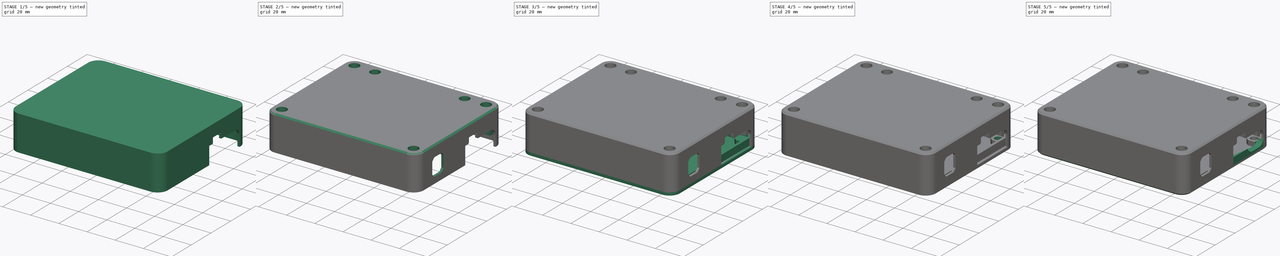
[diagram: build sequence overview — one tinted view per stage of 5, left to right]
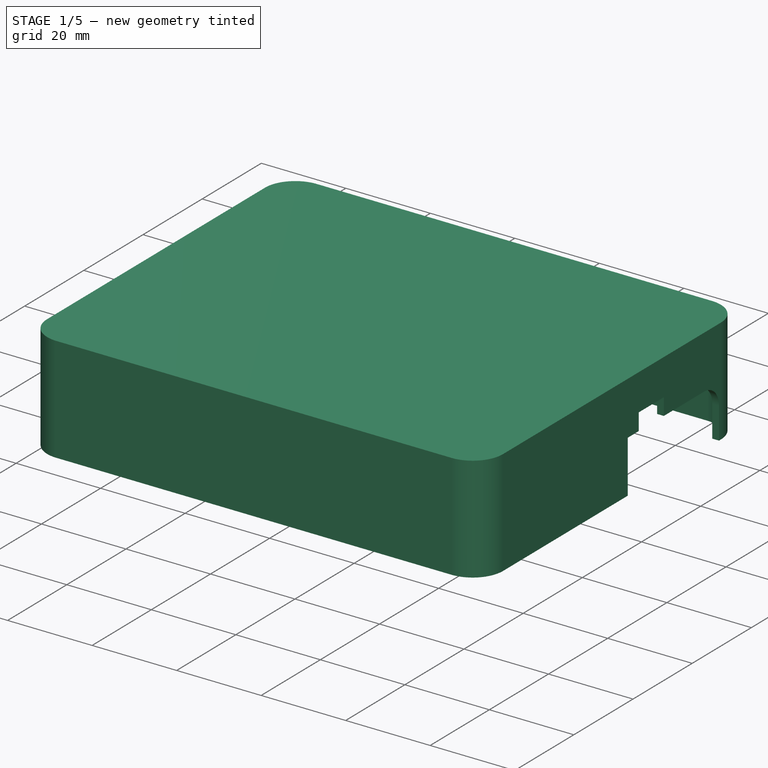
[diagram: stage 1 of 5 — iso view after this stage's code; geometry added in this stage tinted green]
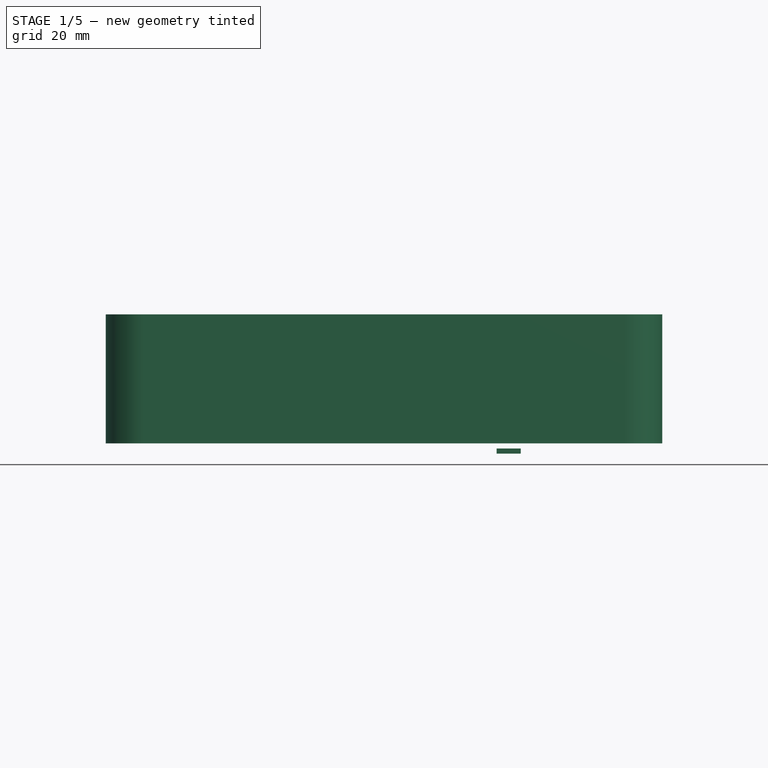
[diagram: stage 1 of 5 — front view after this stage's code; geometry added in this stage tinted green]
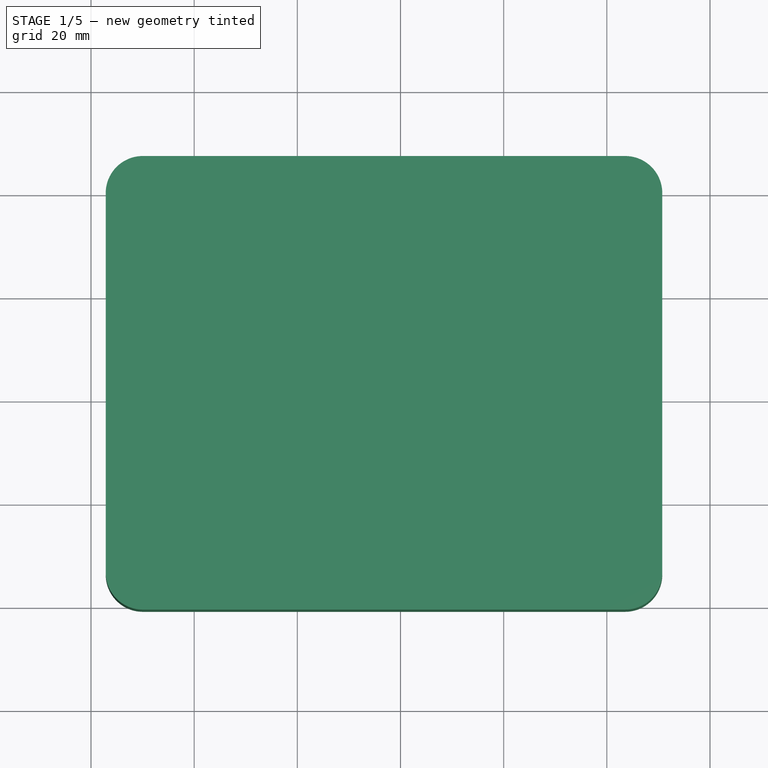
[diagram: stage 1 of 5 — top view after this stage's code; geometry added in this stage tinted green]
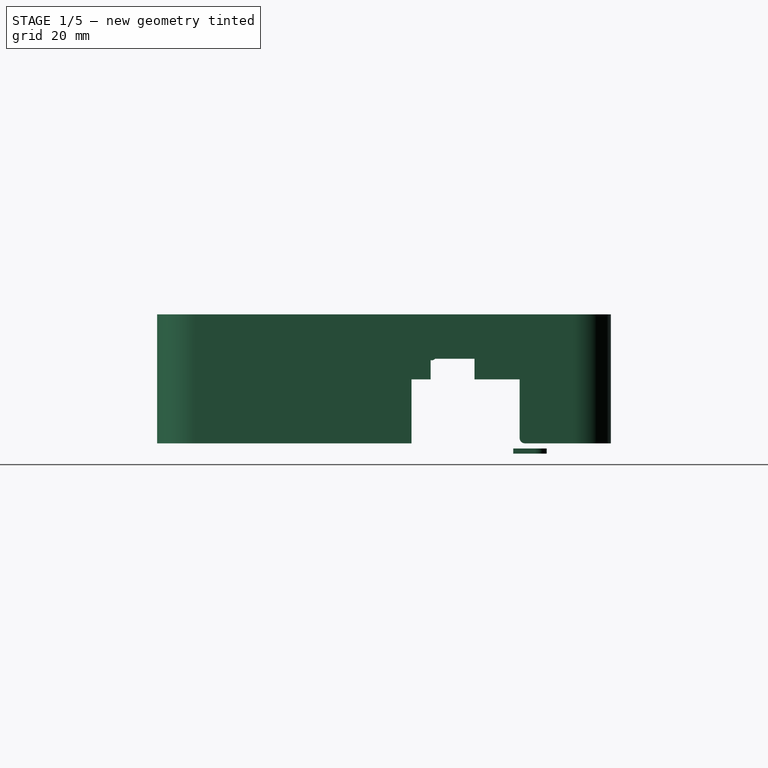
[diagram: stage 1 of 5 — right view after this stage's code; geometry added in this stage tinted green]
FCSTD DOCUMENT  (FreeCAD 1.1R20260325 (Git shallow))
Label: lumenlab-enclosure
License: All rights reserved
objects: Part::Feature×242, App::Link×40, App::Point×35, App::Part×29, Sketcher::SketchObject×27, PartDesign::Pocket×14, PartDesign::Pad×12, PartDesign::Fillet×8, PartDesign::Chamfer×7, PartDesign::Body×6, PartDesign::SubShapeBinder×5, PartDesign::Mirrored×4, PartDesign::Plane×2, PartDesign::PolarPattern×2, PartDesign::Line×1, PartDesign::CoordinateSystem×1, Part::Part2DObjectPython×1, Part::Mirroring×1, Part::Extrusion×1, PartDesign::LinearPattern×1
note: 451 computed .brp shape members not serialized (recipe doc carries the construction recipe); baked Part::Feature solids carry a one-line shape summary decoded from their .brp

FEATURE [PartDesign::SubShapeBinder] Binder001
  BindCopyOnChange = 0
  BindMode = 0
  ClaimChildren = false
  Context = -> Body001 [Binder001.]
  Fuse = false
  MakeFace = true
  OffsetFill = false
  OffsetIntersection = false
  OffsetJoinType = 0
  OffsetOpenResult = false
  PartialLoad = false
  Refine = true
  Relative = true
  Support = -> [Board_aaa008]
  _Version = 2
FEATURE [Sketcher::SketchObject] Sketch010
  ArcFitTolerance = 1e-06
  AttachmentOffset = pos=(0,0,3.75) rot=(0,0,1;0rad)
  AttachmentSupport = -> [Binder001]
  ExternalGeometry = -> [Binder001]
  ExternalTypes = [0]
  FullyConstrained = true
  MakeInternals = false
  MapMode = 5
  Placement = pos=(0,0,-5.3502) rot=(1,0,0;3.14159rad)
  _ExternalGeoVersion = 0
  sketch-geometry (19):
    g0: LineSegment StartX=-57.1492 StartY=33.5464 StartZ=0 EndX=-57.1492 EndY=-39.9996 EndZ=0
    g1: LineSegment StartX=-49.9492 StartY=-47.1996 StartZ=0 EndX=43.5508 EndY=-47.1996 EndZ=0
    g2: LineSegment StartX=50.7508 StartY=-39.9996 StartZ=0 EndX=50.7508 EndY=33.5464 EndZ=0
    g3: LineSegment StartX=43.5508 StartY=40.7464 StartZ=0 EndX=-49.9492 EndY=40.7464 EndZ=0
    g4: ArcOfCircle CenterX=-49.9492 CenterY=33.5464 CenterZ=0 NormalX=0 NormalY=0 NormalZ=1 AngleXU=0 Radius=7.19996 StartAngle=1.5708 EndAngle=3.14159
    g5: ArcOfCircle CenterX=-49.9492 CenterY=-39.9996 CenterZ=0 NormalX=0 NormalY=0 NormalZ=1 AngleXU=0 Radius=7.19996 StartAngle=3.14159 EndAngle=4.71239
    g6: ArcOfCircle CenterX=43.5508 CenterY=-39.9996 CenterZ=0 NormalX=0 NormalY=0 NormalZ=1 AngleXU=0 Radius=7.19996 StartAngle=4.71239 EndAngle=6.28319
    g7: ArcOfCircle CenterX=43.5508 CenterY=33.5464 CenterZ=0 NormalX=0 NormalY=0 NormalZ=1 AngleXU=0 Radius=7.19996 StartAngle=0 EndAngle=1.5708
    g8: GeomPoint [constr] X=-57.1492 Y=40.7464 Z=0
    g9: GeomPoint [constr] X=50.7508 Y=-47.1996 Z=0
    g10: LineSegment StartX=-49.9492 StartY=-45.5996 StartZ=0 EndX=43.5508 EndY=-45.5996 EndZ=0
    g11: LineSegment StartX=49.1508 StartY=-39.9996 StartZ=0 EndX=49.1508 EndY=33.5464 EndZ=0
    g12: LineSegment StartX=43.5508 StartY=39.1464 StartZ=0 EndX=-49.9492 EndY=39.1464 EndZ=0
    g13: LineSegment StartX=-55.5492 StartY=33.5464 StartZ=0 EndX=-55.5492 EndY=-39.9996 EndZ=0
    g14: ArcOfCircle CenterX=-49.9492 CenterY=-39.9996 CenterZ=0 NormalX=0 NormalY=0 NormalZ=1 AngleXU=0 Radius=5.59996 StartAngle=3.14159 EndAngle=4.71239
    g15: ArcOfCircle CenterX=43.5508 CenterY=-39.9996 CenterZ=0 NormalX=0 NormalY=0 NormalZ=1 AngleXU=0 Radius=5.59996 StartAngle=4.71239 EndAngle=6.28319
    g16: ArcOfCircle CenterX=43.5508 CenterY=33.5464 CenterZ=0 NormalX=0 NormalY=0 NormalZ=1 AngleXU=0 Radius=5.59996 StartAngle=4e-16 EndAngle=1.5708
    g17: ArcOfCircle CenterX=-49.9492 CenterY=33.5464 CenterZ=0 NormalX=0 NormalY=0 NormalZ=1 AngleXU=0 Radius=5.59996 StartAngle=1.5708 EndAngle=3.14159
    g18: GeomPoint [constr] X=-55.5492 Y=-45.5996 Z=0
  constraints (43):
    c: Tangent(g0,g4) = -1.5708
    c: Tangent(g0,g5) = -1.5708
    c: Tangent(g1,g5) = -1.5708
    c: Tangent(g1,g6) = -1.5708
    c: Tangent(g2,g6) = -1.5708
    c: Tangent(g2,g7) = -1.5708
    c: Tangent(g3,g7) = -1.5708
    c: Tangent(g3,g4) = -1.5708
    c: Vertical(g0)
    c: Vertical(g2)
    c: Horizontal(g1)
    c: Horizontal(g3)
    c: Equal(g4,g5)
    c: Equal(g5,g6)
    c: Equal(g6,g7)
    c: PointOnObject(g8,g0)
    c: PointOnObject(g8,g3)
    c: PointOnObject(g9,g1)
    c: PointOnObject(g9,g2)
    c: Distance(g0,g-3) = 4
    c: Coincident(g-10,g4)
    c: Distance(g2,g-7) = 4
    c: Distance(g1,g-4) = 4
    c: Tangent(g10,g14) = -1.5708
    c: Tangent(g10,g15) = -1.5708
    c: Tangent(g11,g15) = -1.5708
    c: Tangent(g11,g16) = -1.5708
    c: Tangent(g12,g16) = -1.5708
    c: Tangent(g12,g17) = -1.5708
    c: Tangent(g13,g17) = -1.5708
    c: Tangent(g13,g14) = -1.5708
    c: Horizontal(g10)
    c: Horizontal(g12)
    c: Vertical(g11)
    c: Vertical(g13)
    c: Equal(g14,g15)
    c: Equal(g15,g16)
    c: Equal(g16,g17)
    c: PointOnObject(g18,g10)
    c: PointOnObject(g18,g13)
    c: Distance(g0,g13) = 1.6
    c: Coincident(g14,g5)
    c: Coincident(g16,g7)
FEATURE [PartDesign::Pad] Pad003
  Direction = (0,0,-1)
  Length = 23
  Length2 = 10
  Profile = -> Sketch010
  ReferenceAxis = -> Sketch010 [N_Axis]
  Refine = true
  Reversed = true
  SideType = 0
  Suppressed = false
  Type = 0
  Type2 = 0
FEATURE [Sketcher::SketchObject] Sketch011
  ArcFitTolerance = 1e-06
  AttachmentSupport = -> [Pad003]
  ExternalGeometry = -> [Pad003]
  ExternalTypes = [0]
  FullyConstrained = true
  MakeInternals = false
  MapMode = 5
  Placement = pos=(0,0,17.6498) rot=(0,0,1;0rad)
  _ExternalGeoVersion = 0
  sketch-geometry (10):
    g0: LineSegment StartX=-57.1492 StartY=39.9996 StartZ=0 EndX=-57.1492 EndY=-33.5464 EndZ=0
    g1: LineSegment StartX=-49.9492 StartY=-40.7464 StartZ=0 EndX=43.5508 EndY=-40.7464 EndZ=0
    g2: LineSegment StartX=50.7508 StartY=-33.5464 StartZ=0 EndX=50.7508 EndY=39.9996 EndZ=0
    g3: LineSegment StartX=43.5508 StartY=47.1996 StartZ=0 EndX=-49.9492 EndY=47.1996 EndZ=0
    g4: ArcOfCircle CenterX=-49.9492 CenterY=39.9996 CenterZ=0 NormalX=0 NormalY=0 NormalZ=1 AngleXU=0 Radius=7.19996 StartAngle=1.5708 EndAngle=3.14159
    g5: ArcOfCircle CenterX=-49.9492 CenterY=-33.5464 CenterZ=0 NormalX=0 NormalY=0 NormalZ=1 AngleXU=0 Radius=7.19996 StartAngle=3.14159 EndAngle=4.71239
    g6: ArcOfCircle CenterX=43.5508 CenterY=-33.5464 CenterZ=0 NormalX=0 NormalY=0 NormalZ=1 AngleXU=0 Radius=7.19996 StartAngle=4.71239 EndAngle=6.28319
    g7: ArcOfCircle CenterX=43.5508 CenterY=39.9996 CenterZ=0 NormalX=0 NormalY=0 NormalZ=1 AngleXU=0 Radius=7.19996 StartAngle=0 EndAngle=1.5708
    g8: GeomPoint [constr] X=-57.1492 Y=47.1996 Z=0
    g9: GeomPoint [constr] X=50.7508 Y=-40.7464 Z=0
  constraints (20):
    c: Tangent(g0,g4) = -1.5708
    c: Tangent(g0,g5) = -1.5708
    c: Tangent(g1,g5) = -1.5708
    c: Tangent(g1,g6) = -1.5708
    c: Tangent(g2,g6) = -1.5708
    c: Tangent(g2,g7) = -1.5708
    c: Tangent(g3,g7) = -1.5708
    c: Tangent(g3,g4) = -1.5708
    c: Vertical(g2)
    c: Horizontal(g1)
    c: Equal(g4,g5)
    c: Equal(g5,g6)
    c: PointOnObject(g8,g0)
    c: PointOnObject(g8,g3)
    c: PointOnObject(g9,g1)
    c: PointOnObject(g9,g2)
    c: Coincident(g-5,g0)
    c: Coincident(g3,g-4)
    c: Coincident(g3,g-6)
    c: Coincident(g1,g-9)
FEATURE [PartDesign::Pad] Pad004
  BaseFeature = -> Pad003
  Direction = (0,0,1)
  Length = 2
  Length2 = 10
  Profile = -> Sketch011
  ReferenceAxis = -> Sketch011 [N_Axis]
  Refine = true
  SideType = 0
  Suppressed = false
  Type = 0
  Type2 = 0
FEATURE [Sketcher::SketchObject] Sketch012
  ArcFitTolerance = 1e-06
  AttachmentSupport = -> [Pad003]
  ExternalGeometry = -> [Binder001,Pad003]
  ExternalTypes = [0]
  FullyConstrained = true
  MakeInternals = false
  MapMode = 5
  Placement = pos=(-57.1492,0,0) rot=(0.57735,-0.57735,-0.57735;2.0944rad)
  _ExternalGeoVersion = 0
  sketch-geometry (10):
    g0: LineSegment StartX=-29.5259 StartY=10.75 StartZ=0 EndX=-29.5259 EndY=-5.3502 EndZ=0
    g1: LineSegment StartX=-5.52586 StartY=-5.3502 StartZ=0 EndX=-5.52586 EndY=10.75 EndZ=0
    g2: LineSegment StartX=-5.52586 StartY=10.75 StartZ=0 EndX=-13.2759 EndY=10.75 EndZ=0
    g3: LineSegment StartX=-29.5259 StartY=-5.3502 StartZ=0 EndX=-5.52586 EndY=-5.3502 EndZ=0
    g4: LineSegment StartX=-21.7759 StartY=10.75 StartZ=0 EndX=-21.7759 EndY=14.75 EndZ=0
    g5: LineSegment StartX=-21.7759 StartY=14.75 StartZ=0 EndX=-13.2759 EndY=14.75 EndZ=0
    g6: LineSegment StartX=-13.2759 StartY=14.75 StartZ=0 EndX=-13.2759 EndY=10.75 EndZ=0
    g7: LineSegment [constr] StartX=-21.7759 StartY=14.75 StartZ=0 EndX=-29.5259 EndY=10.75 EndZ=0
    g8: LineSegment [constr] StartX=-13.2759 StartY=14.75 StartZ=0 EndX=-5.52586 EndY=10.75 EndZ=0
    g9: LineSegment StartX=-21.7759 StartY=10.75 StartZ=0 EndX=-29.5259 EndY=10.75 EndZ=0
  constraints (29):
    c: Coincident(g1,g2)
    c: Coincident(g9,g0)
    c: Vertical(g0)
    c: Vertical(g1)
    c: Horizontal(g2)
    c: Distance(g-4,g1) = 0.15
    c: Distance(g-5,g2) = 2.25
    c: PointOnObject(g0,g-6)
    c: PointOnObject(g1,g-6)
    c: Coincident(g3,g0)
    c: Coincident(g3,g1)
    c: Distance(g-3,g0) = 0.15
    c: PointOnObject(g4,g9)
    c: Coincident(g4,g5)
    c: Horizontal(g5)
    c: Coincident(g5,g6)
    c: DistanceX(g5,g5) = 8.5
    c: Equal(g4,g6)
    c: Distance(g2,g5) = 4
    c: Vertical(g4)
    c: Coincident(g7,g4)
    c: Coincident(g7,g0)
    c: Coincident(g8,g5)
    c: Coincident(g8,g1)
    c: Equal(g7,g8)
    c: Coincident(g2,g6)
    c: PointOnObject(g9,g4)
    c: Horizontal(g9)
    c: Vertical(g6)
FEATURE [PartDesign::Pocket] Pocket007
  BaseFeature = -> Pad004
  Direction = (1,0,0)
  Length = 5
  Length2 = 5
  Profile = -> Sketch012
  ReferenceAxis = -> Sketch012 [N_Axis]
  Refine = true
  SideType = 0
  Suppressed = false
  Type = 2
  Type2 = 0
FEATURE [PartDesign::Fillet] Fillet
  Base = -> Pocket007 [Edge44,Edge46,Edge49,Edge51,Edge53,Edge54]
  BaseFeature = -> Pocket007
  Radius = 0.75
  Refine = true
  SupportTransform = false
  Suppressed = false
  UseAllEdges = false
FEATURE [PartDesign::Fillet] Fillet001
  Base = -> Fillet [Edge33,Edge20]
  BaseFeature = -> Fillet
  Radius = 1
  Refine = true
  SupportTransform = false
  Suppressed = false
  UseAllEdges = false
FEATURE [Sketcher::SketchObject] Sketch013
  ArcFitTolerance = 1e-06
  AttachmentSupport = -> [Fillet001]
  ExternalGeometry = -> [Binder001,Fillet001]
  ExternalTypes = [0]
  FullyConstrained = true
  MakeInternals = false
  MapMode = 5
  Placement = pos=(50.7508,0,3.061e-13) rot=(0.57735,0.57735,0.57735;2.0944rad)
  _ExternalGeoVersion = 0
  sketch-geometry (12):
    g0: LineSegment StartX=8.54847 StartY=7.05 StartZ=0 EndX=8.54847 EndY=-5.3502 EndZ=0
    g1: LineSegment StartX=24.4785 StartY=7.05 StartZ=0 EndX=20.7635 EndY=7.05 EndZ=0
    g2: LineSegment StartX=24.4785 StartY=7.05 StartZ=0 EndX=34.3709 EndY=7.05 EndZ=0
    g3: ArcOfCircle CenterX=34.3709 CenterY=2.01 CenterZ=0 NormalX=0 NormalY=0 NormalZ=1 AngleXU=0 Radius=5.04 StartAngle=0 EndAngle=1.5708
    g4: LineSegment StartX=39.4109 StartY=2.01 StartZ=0 EndX=39.4109 EndY=-5.3502 EndZ=0
    g5: LineSegment StartX=39.4109 StartY=-5.3502 StartZ=0 EndX=8.54847 EndY=-5.3502 EndZ=0
    g6: LineSegment StartX=12.2635 StartY=7.05 StartZ=0 EndX=12.2635 EndY=11.05 EndZ=0
    g7: LineSegment StartX=12.2635 StartY=11.05 StartZ=0 EndX=20.7635 EndY=11.05 EndZ=0
    g8: LineSegment StartX=20.7635 StartY=11.05 StartZ=0 EndX=20.7635 EndY=7.05 EndZ=0
    g9: LineSegment [constr] StartX=12.2635 StartY=11.05 StartZ=0 EndX=8.54847 EndY=7.05 EndZ=0
    g10: LineSegment [constr] StartX=24.4785 StartY=7.05 StartZ=0 EndX=20.7635 EndY=11.05 EndZ=0
    g11: LineSegment StartX=12.2635 StartY=7.05 StartZ=0 EndX=8.54847 EndY=7.05 EndZ=0
  constraints (34):
    c: Coincident(g11,g0)
    c: Vertical(g0)
    c: Horizontal(g1)
    c: Distance(g-5,g1) = 0.25
    c: Horizontal(g2)
    c: Tangent(g2,g3) = 1.5708
    c: Coincident(g3,g4)
    c: Vertical(g4)
    c: Coincident(g4,g5)
    c: Horizontal(g-11,g3)
    c: Coincident(g3,g-11)
    c: PointOnObject(g0,g-13)
    c: Horizontal(g5)
    c: PointOnObject(g6,g11)
    c: Coincident(g7,g6)
    c: Horizontal(g7)
    c: Coincident(g8,g7)
    c: Distance(g7,g1) = 4
    c: Coincident(g9,g6)
    c: Coincident(g9,g0)
    c: Coincident(g10,g7)
    c: Equal(g9,g10)
    c: Equal(g6,g8)
    c: Vertical(g6)
    c: DistanceX(g7,g7) = 8.5
    c: Coincident(g1,g8)
    c: PointOnObject(g11,g6)
    c: Vertical(g8)
    c: Horizontal(g11)
    c: Distance(g-5,g0) = 0.15
    c: Coincident(g1,g2)
    c: Vertical(g1,g-3)
    c: Coincident(g10,g1)
    c: Coincident(g5,g0)
FEATURE [PartDesign::Pocket] Pocket008
  BaseFeature = -> Fillet001
  Direction = (-1,-1e-16,-5.9e-15)
  Length = 5
  Length2 = 5
  Profile = -> Sketch013
  ReferenceAxis = -> Sketch013 [N_Axis]
  Refine = true
  SideType = 0
  Suppressed = false
  Type = 2
  Type2 = 0
FEATURE [Sketcher::SketchObject] Sketch021
  ArcFitTolerance = 1e-06
  AttachmentOffset = pos=(0,0,-6.35) rot=(0,0,1;0rad)
  AttachmentSupport = -> [XY_Plane062]
  ExternalTypes = [0]
  FullyConstrained = false
  MakeInternals = false
  MapMode = 5
  Placement = pos=(0,0,-6.35) rot=(0,0,1;0rad)
  _ExternalGeoVersion = 0
  sketch-geometry (10):
    g0: LineSegment StartX=16.4753 StartY=20.5288 StartZ=0 EndX=25.4753 EndY=20.5288 EndZ=0
    g1: LineSegment StartX=28.4753 StartY=23.5288 StartZ=0 EndX=28.4753 EndY=32.5288 EndZ=0
    g2: LineSegment StartX=25.4753 StartY=35.5288 StartZ=0 EndX=16.4753 EndY=35.5288 EndZ=0
    g3: LineSegment StartX=13.4753 StartY=32.5288 StartZ=0 EndX=13.4753 EndY=23.5288 EndZ=0
    g4: ArcOfCircle CenterX=16.4753 CenterY=23.5288 CenterZ=0 NormalX=0 NormalY=0 NormalZ=1 AngleXU=0 Radius=3 StartAngle=3.14159 EndAngle=4.71239
    g5: ArcOfCircle CenterX=25.4753 CenterY=23.5288 CenterZ=0 NormalX=0 NormalY=0 NormalZ=1 AngleXU=0 Radius=3 StartAngle=4.71239 EndAngle=6.28319
    g6: ArcOfCircle CenterX=25.4753 CenterY=32.5288 CenterZ=0 NormalX=0 NormalY=0 NormalZ=1 AngleXU=0 Radius=3 StartAngle=0 EndAngle=1.5708
    g7: ArcOfCircle CenterX=16.4753 CenterY=32.5288 CenterZ=0 NormalX=0 NormalY=0 NormalZ=1 AngleXU=0 Radius=3 StartAngle=1.5708 EndAngle=3.14159
    g8: GeomPoint [constr] X=13.4753 Y=20.5288 Z=0
    g9: GeomPoint [constr] X=28.4753 Y=35.5288 Z=0
  constraints (22):
    c: Tangent(g0,g4) = -1.5708
    c: Tangent(g0,g5) = -1.5708
    c: Tangent(g1,g5) = -1.5708
    c: Tangent(g1,g6) = -1.5708
    c: Tangent(g2,g6) = -1.5708
    c: Tangent(g2,g7) = -1.5708
    c: Tangent(g3,g7) = -1.5708
    c: Tangent(g3,g4) = -1.5708
    c: Horizontal(g0)
    c: Horizontal(g2)
    c: Vertical(g1)
    c: Vertical(g3)
    c: Equal(g4,g5)
    c: Equal(g5,g6)
    c: Equal(g6,g7)
    c: PointOnObject(g8,g0)
    c: PointOnObject(g8,g3)
    c: PointOnObject(g9,g1)
    c: PointOnObject(g9,g2)
    c: Distance(g1,g3) = 15
    c: Distance(g0,g2) = 15
    c: Radius(g5) = 3
FEATURE [PartDesign::Pad] Pad008
  Direction = (0,0,1)
  Length = 1
  Length2 = 10
  Profile = -> Sketch021
  ReferenceAxis = -> Sketch021 [N_Axis]
  Refine = true
  Reversed = true
  SideType = 0
  Suppressed = false
  Type = 0
  Type2 = 0
FEATURE [PartDesign::Body] Body002  label="logo-outline"
  AllowCompound = false
  Group = -> [Sketch021,Pad008]
  Origin = -> Origin062
  Tip = -> Pad008
FEATURE [PartDesign::SubShapeBinder] Binder002
  BindCopyOnChange = 0
  BindMode = 0
  ClaimChildren = false
  Context = -> Body003 [Binder002.]
  Fuse = false
  MakeFace = true
  OffsetFill = false
  OffsetIntersection = false
  OffsetJoinType = 0
  OffsetOpenResult = false
  PartialLoad = false
  Refine = true
  Relative = true
  Support = -> [Body002,Sketch022]
  _Version = 2
FEATURE [Sketcher::SketchObject] Sketch022
  ArcFitTolerance = 1e-06
  ExternalTypes = [0]
  FullyConstrained = false
  MakeInternals = false
  Placement = pos=(0,0,-6.35) rot=(0,0,1;0rad)
  _ExternalGeoVersion = 0
  sketch-geometry (18):
    g0: BSplineCurve PolesCount=2 KnotsCount=2 Degree=1 IsPeriodic=0
    g1: BSplineCurve PolesCount=4 KnotsCount=2 Degree=3 IsPeriodic=0
    g2: BSplineCurve PolesCount=4 KnotsCount=2 Degree=3 IsPeriodic=0
    g3: BSplineCurve PolesCount=4 KnotsCount=2 Degree=3 IsPeriodic=0
    g4: BSplineCurve PolesCount=4 KnotsCount=2 Degree=3 IsPeriodic=0
    g5: BSplineCurve PolesCount=4 KnotsCount=2 Degree=3 IsPeriodic=0
    g6: BSplineCurve PolesCount=4 KnotsCount=2 Degree=3 IsPeriodic=0
    g7: BSplineCurve PolesCount=2 KnotsCount=2 Degree=1 IsPeriodic=0
    g8: BSplineCurve PolesCount=2 KnotsCount=2 Degree=1 IsPeriodic=0
    g9: BSplineCurve PolesCount=2 KnotsCount=2 Degree=1 IsPeriodic=0
    g10: BSplineCurve PolesCount=4 KnotsCount=2 Degree=3 IsPeriodic=0
    g11: BSplineCurve PolesCount=4 KnotsCount=2 Degree=3 IsPeriodic=0
    g12: BSplineCurve PolesCount=4 KnotsCount=2 Degree=3 IsPeriodic=0
    g13: BSplineCurve PolesCount=4 KnotsCount=2 Degree=3 IsPeriodic=0
    g14: BSplineCurve PolesCount=2 KnotsCount=2 Degree=1 IsPeriodic=0
    g15: BSplineCurve PolesCount=4 KnotsCount=2 Degree=3 IsPeriodic=0
    g16: BSplineCurve PolesCount=2 KnotsCount=2 Degree=1 IsPeriodic=0
    g17: BSplineCurve PolesCount=2 KnotsCount=2 Degree=1 IsPeriodic=0
  constraints (18):
    c: Coincident(g0,g1)
    c: Coincident(g1,g2)
    c: Coincident(g2,g3)
    c: Coincident(g3,g4)
    c: Coincident(g4,g5)
    c: Coincident(g5,g6)
    c: Coincident(g6,g7)
    c: Coincident(g7,g8)
    c: Coincident(g8,g9)
    c: Coincident(g9,g10)
    c: Coincident(g10,g11)
    c: Coincident(g11,g12)
    c: Coincident(g12,g13)
    c: Coincident(g13,g14)
    c: Coincident(g14,g15)
    c: Coincident(g15,g16)
    c: Coincident(g16,g17)
    c: Coincident(g17,g0)
FEATURE [PartDesign::Pad] Pad009
  Direction = (0,0,1)
  Length = 1
  Length2 = 10
  Placement = pos=(0,0,-6.35) rot=(0,0,1;0rad)
  Profile = -> Sketch022
  ReferenceAxis = -> Sketch022 [N_Axis]
  Refine = true
  Reversed = true
  SideType = 0
  Suppressed = false
  Type = 0
  Type2 = 0
FEATURE [PartDesign::Body] Body003  label="logo-controller"
  AllowCompound = false
  Group = -> [Binder002,Sketch022,Pad009]
  Origin = -> Origin063
  Tip = -> Pad009
FEATURE [PartDesign::SubShapeBinder] Binder003
  BindCopyOnChange = 0
  BindMode = 0
  ClaimChildren = false
  Context = -> Body004 [Binder003.]
  Fuse = false
  MakeFace = true
  OffsetFill = false
  OffsetIntersection = false
  OffsetJoinType = 0
  OffsetOpenResult = false
  PartialLoad = false
  Refine = true
  Relative = true
  Support = -> [Body003,Body002]
  _Version = 2
FEATURE [Sketcher::SketchObject] Sketch023
  ArcFitTolerance = 1e-06
  AttachmentSupport = -> [Binder003]
  ExternalGeometry = -> [Binder003]
  ExternalTypes = [0]
  FullyConstrained = false
  MakeInternals = false
  MapMode = 5
  Placement = pos=(0,0,-7.35) rot=(1,0,0;3.14159rad)
  _ExternalGeoVersion = 0
  sketch-geometry (6):
    g0: LineSegment StartX=19.1434 StartY=-28.7844 StartZ=0 EndX=22.8073 EndY=-28.7844 EndZ=0
    g1: LineSegment StartX=22.8073 StartY=-28.7844 StartZ=0 EndX=22.8073 EndY=-32.4468 EndZ=0
    g2: ArcOfCircle CenterX=20.9753 CenterY=-32.4468 CenterZ=0 NormalX=0 NormalY=0 NormalZ=1 AngleXU=0 Radius=1.83197 StartAngle=3.14159 EndAngle=6.28319
    g3: LineSegment StartX=19.1434 StartY=-32.4468 StartZ=0 EndX=19.1434 EndY=-28.7844 EndZ=0
    g4: LineSegment [constr] StartX=19.1434 StartY=-28.7844 StartZ=0 EndX=13.4753 EndY=-28.7844 EndZ=0
    g5: LineSegment [constr] StartX=22.8073 StartY=-28.7844 StartZ=0 EndX=28.4753 EndY=-28.7844 EndZ=0
  constraints (14):
    c: Horizontal(g0)
    c: Coincident(g0,g1)
    c: Vertical(g1)
    c: Tangent(g1,g2) = 1.5708
    c: Tangent(g2,g3) = 1.5708
    c: Coincident(g3,g0)
    c: Horizontal(g2,g1)
    c: Coincident(g4,g0)
    c: PointOnObject(g4,g-3)
    c: Horizontal(g4)
    c: Coincident(g5,g0)
    c: PointOnObject(g5,g-4)
    c: Horizontal(g5)
    c: Equal(g4,g5)
FEATURE [PartDesign::Pad] Pad010
  Direction = (0,0,-1)
  Length = 1
  Length2 = 10
  Profile = -> Sketch023
  ReferenceAxis = -> Sketch023 [N_Axis]
  Refine = true
  Reversed = true
  SideType = 0
  Suppressed = false
  Type = 0
  Type2 = 0
FEATURE [PartDesign::Body] Body001  label="Body"
  AllowCompound = false
  Group = -> [Binder001,Sketch010,Pad003,Sketch011,Pad004,Sketch012,Pocket007,Fillet,Fillet001,Sketch013,Pocket008,Sketch014,Pocket009,Chamfer004,Sketch015,Pad005,Sketch016,Pocket010,Fillet004,Fillet005,Chamfer005,Fillet008,Sketch020,Pocket012,Fillet010,Sketch025,Pocket013,LinearPattern]
  Origin = -> Origin
  Tip = -> LinearPattern
FEATURE [PartDesign::SubShapeBinder] Binder004
  BindCopyOnChange = 0
  BindMode = 0
  ClaimChildren = false
  Context = -> Body005 [Binder004.]
  Fuse = false
  MakeFace = true
  OffsetFill = false
  OffsetIntersection = false
  OffsetJoinType = 0
  OffsetOpenResult = false
  PartialLoad = false
  Refine = true
  Relative = true
  Support = -> [Body004]
  _Version = 2
FEATURE [Sketcher::SketchObject] Sketch026
  ArcFitTolerance = 1e-06
  AttachmentSupport = -> [Binder004]
  ExternalGeometry = -> [Binder004]
  ExternalTypes = [0]
  FullyConstrained = true
  MakeInternals = false
  MapMode = 5
  Placement = pos=(0,0,-6.35) rot=(0,0,1;0rad)
  _ExternalGeoVersion = 0
  sketch-geometry (4):
    g0: LineSegment StartX=18.6434 StartY=32.4468 StartZ=0 EndX=18.6434 EndY=28.2844 EndZ=0
    g1: LineSegment StartX=18.6434 StartY=28.2844 StartZ=0 EndX=23.3073 EndY=28.2844 EndZ=0
    g2: LineSegment StartX=23.3073 StartY=28.2844 StartZ=0 EndX=23.3073 EndY=32.4468 EndZ=0
    g3: ArcOfCircle CenterX=20.9753 CenterY=32.4468 CenterZ=0 NormalX=0 NormalY=0 NormalZ=1 AngleXU=0 Radius=2.33197 StartAngle=0 EndAngle=3.14159
  constraints (11):
    c: Vertical(g0)
    c: Coincident(g0,g1)
    c: Horizontal(g1)
    c: Coincident(g1,g2)
    c: Vertical(g2)
    c: Tangent(g2,g3) = -1.5708
    c: Coincident(g3,g0)
    c: Coincident(g3,g-5)
    c: Distance(g-4,g1) = 0.5
    c: Distance(g-4,g0) = 0.5
    c: Horizontal(g0,g-5)
FEATURE [PartDesign::Pad] Pad011
  Direction = (0,0,1)
  Length = 1
  Length2 = 10
  Profile = -> Sketch026
  ReferenceAxis = -> Sketch026 [N_Axis]
  Refine = true
  Reversed = true
  SideType = 0
  Suppressed = false
  Type = 0
  Type2 = 0
FEATURE [PartDesign::Body] Body005  label="logo-led-outline"
  AllowCompound = false
  Group = -> [Binder004,Sketch026,Pad011]
  Origin = -> Origin065
  Tip = -> Pad011
FEATURE [App::Point] Origin066  label="Origin"
  Role = Origin
FEATURE [App::Point] Origin067  label="Origin"
  Role = Origin
FEATURE [App::Point] Origin068  label="Origin"
  Role = Origin
FEATURE [App::Point] Origin069  label="Origin"
  Role = Origin
FEATURE [App::Point] Origin070  label="Origin"
  Role = Origin
FEATURE [App::Point] Origin071  label="Origin"
  Role = Origin
FEATURE [App::Point] Origin072  label="Origin"
  Role = Origin
FEATURE [App::Point] Origin073  label="Origin"
  Role = Origin
FEATURE [App::Point] Origin074  label="Origin"
  Role = Origin
FEATURE [App::Point] Origin075  label="Origin"
  Role = Origin
FEATURE [App::Point] Origin076  label="Origin"
  Role = Origin
FEATURE [App::Point] Origin077  label="Origin"
  Role = Origin
FEATURE [App::Point] Origin078  label="Origin"
  Role = Origin
FEATURE [App::Point] Origin079  label="Origin"
  Role = Origin
FEATURE [App::Point] Origin080  label="Origin"
  Role = Origin
FEATURE [App::Point] Origin081  label="Origin"
  Role = Origin
FEATURE [App::Point] Origin082  label="Origin"
  Role = Origin
FEATURE [App::Point] Origin083  label="Origin"
  Role = Origin
FEATURE [App::Point] Origin084  label="Origin"
  Role = Origin
FEATURE [App::Point] Origin085  label="Origin"
  Role = Origin
FEATURE [App::Point] Origin086  label="Origin"
  Role = Origin
FEATURE [App::Point] Origin087  label="Origin"
  Role = Origin
FEATURE [App::Point] Origin088  label="Origin"
  Role = Origin
FEATURE [App::Point] Origin089  label="Origin"
  Role = Origin
FEATURE [App::Point] Origin090  label="Origin"
  Role = Origin
FEATURE [App::Point] Origin091  label="Origin"
  Role = Origin
FEATURE [App::Point] Origin092  label="Origin"
  Role = Origin
FEATURE [App::Point] Origin093  label="Origin"
  Role = Origin
FEATURE [App::Point] Origin094  label="Origin"
  Role = Origin
FEATURE [App::Point] Origin095  label="Origin"
  Role = Origin
FEATURE [App::Point] Origin096  label="Origin"
  Role = Origin
FEATURE [App::Point] Origin097  label="Origin"
  Role = Origin
FEATURE [App::Point] Origin098  label="Origin"
  Role = Origin
FEATURE [App::Point] Origin099  label="Origin"
  Role = Origin
FEATURE [App::Point] Origin100  label="Origin"
  Role = Origin
note: 1 file-system path scrubbed to <path> (originals preserved in the JSON sidecar)
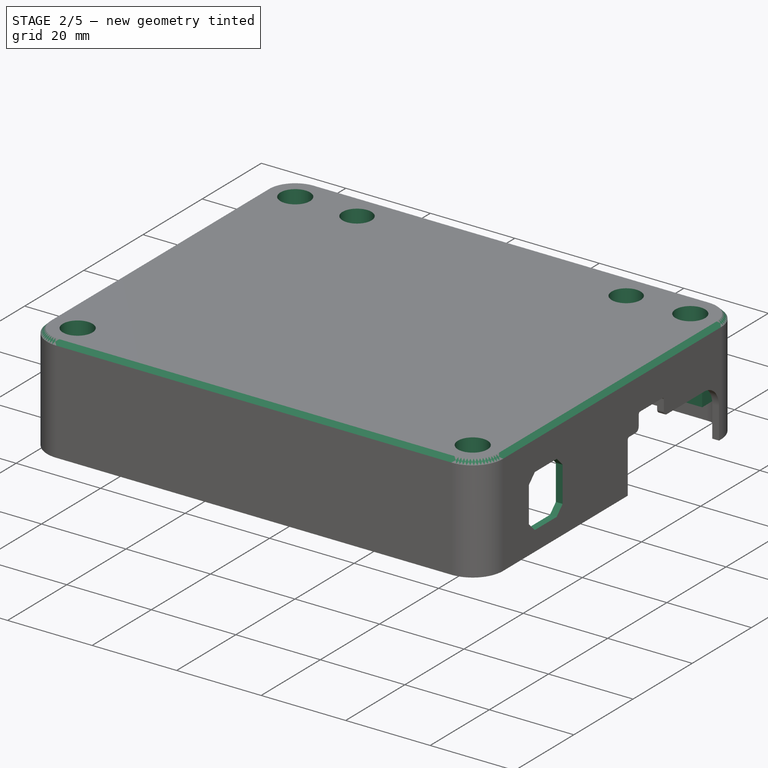
[diagram: stage 2 of 5 — iso view after this stage's code; geometry added in this stage tinted green]
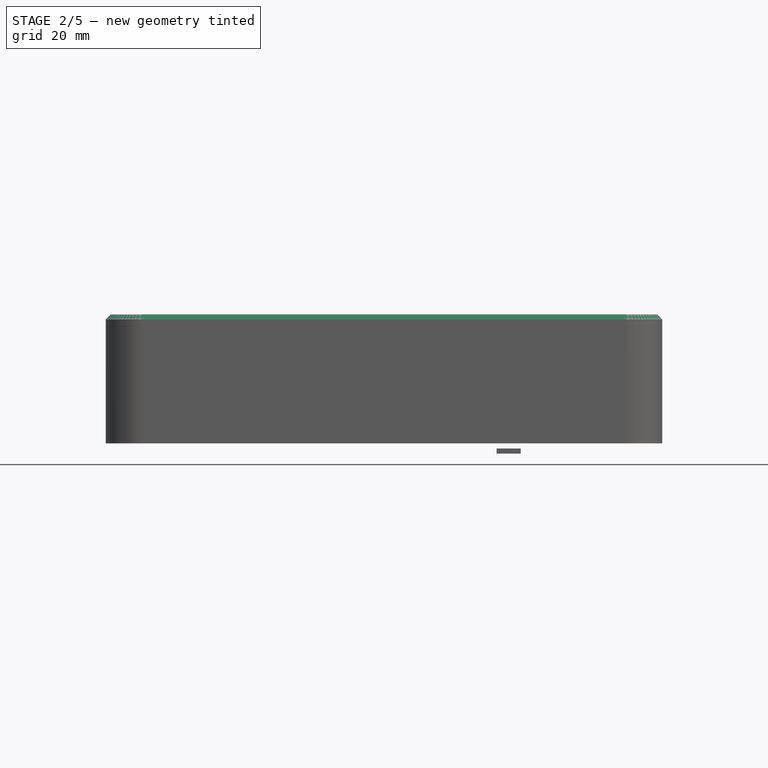
[diagram: stage 2 of 5 — front view after this stage's code; geometry added in this stage tinted green]
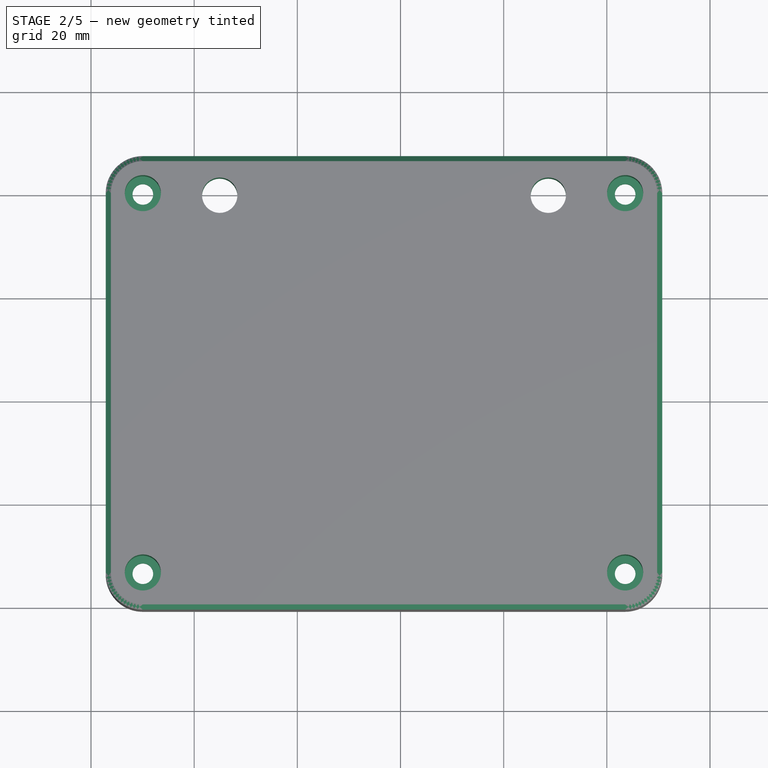
[diagram: stage 2 of 5 — top view after this stage's code; geometry added in this stage tinted green]
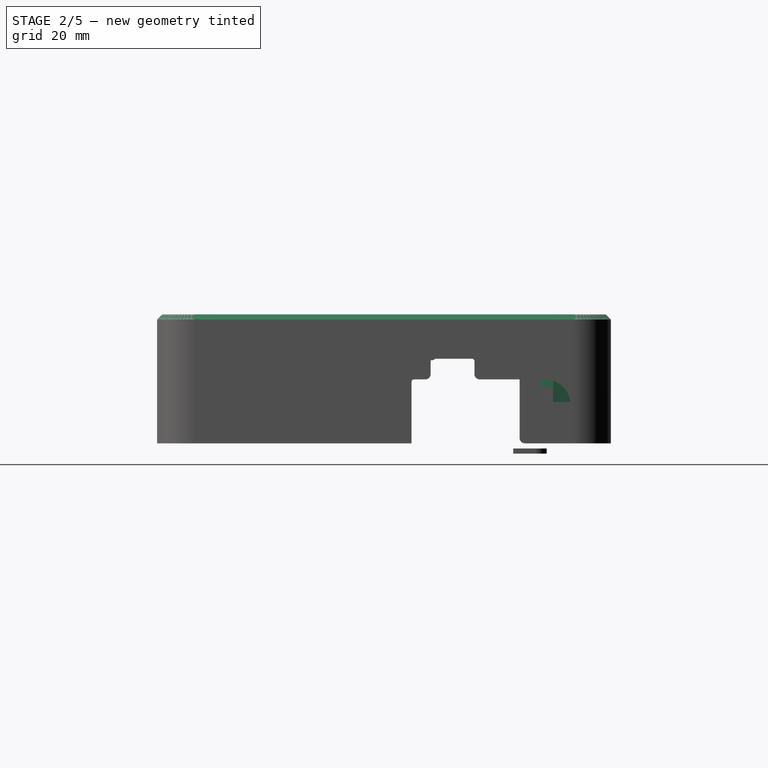
[diagram: stage 2 of 5 — right view after this stage's code; geometry added in this stage tinted green]
FEATURE [Sketcher::SketchObject] Sketch014
  ArcFitTolerance = 1e-06
  ExternalGeometry = -> [Binder001]
  ExternalTypes = [0]
  FullyConstrained = true
  MakeInternals = false
  MapMode = 5
  Placement = pos=(50.7508,0,2.944e-13) rot=(0.57735,0.57735,0.57735;2.0944rad)
  _ExternalGeoVersion = 0
  sketch-geometry (4):
    g0: LineSegment StartX=-24.8504 StartY=11.7 StartZ=0 EndX=-24.8504 EndY=-0.7 EndZ=0
    g1: LineSegment StartX=-24.8504 StartY=-0.7 StartZ=0 EndX=-13.4504 EndY=-0.7 EndZ=0
    g2: LineSegment StartX=-13.4504 StartY=-0.7 StartZ=0 EndX=-13.4504 EndY=11.7 EndZ=0
    g3: LineSegment StartX=-13.4504 StartY=11.7 StartZ=0 EndX=-24.8504 EndY=11.7 EndZ=0
  constraints (12):
    c: Coincident(g0,g1)
    c: Coincident(g1,g2)
    c: Coincident(g2,g3)
    c: Coincident(g3,g0)
    c: Vertical(g0)
    c: Vertical(g2)
    c: Horizontal(g1)
    c: Horizontal(g3)
    c: Distance(g-5,g0) = 1
    c: Distance(g-6,g2) = 2
    c: Distance(g3,g-5) = 1
    c: Distance(g-4,g1) = 1
FEATURE [PartDesign::Pocket] Pocket009
  BaseFeature = -> Pocket008
  Direction = (-1,0,-5.8e-15)
  Length = 5
  Length2 = 5
  Profile = -> Sketch014
  ReferenceAxis = -> Sketch014 [N_Axis]
  Refine = true
  SideType = 0
  Suppressed = false
  Type = 2
  Type2 = 0
FEATURE [PartDesign::Chamfer] Chamfer004
  Angle = 45
  Base = -> Pocket009 [Edge135,Edge134,Edge133,Edge132]
  BaseFeature = -> Pocket009
  ChamferType = 0
  FlipDirection = false
  Refine = true
  Size = 2
  Size2 = 1
  SupportTransform = false
  Suppressed = false
  UseAllEdges = false
FEATURE [Sketcher::SketchObject] Sketch015
  ArcFitTolerance = 1e-06
  AttachmentSupport = -> [Chamfer004]
  ExternalGeometry = -> [Binder001,Chamfer004]
  ExternalTypes = [0]
  FullyConstrained = true
  MakeInternals = false
  MapMode = 5
  Placement = pos=(0,0,17.6498) rot=(1,0,0;3.14159rad)
  _ExternalGeoVersion = 0
  sketch-geometry (32):
    g0: LineSegment StartX=-55.5492 StartY=29.5464 StartZ=0 EndX=-49.9492 EndY=29.5464 EndZ=0
    g1: ArcOfCircle CenterX=-49.9492 CenterY=33.5464 CenterZ=0 NormalX=0 NormalY=0 NormalZ=1 AngleXU=0 Radius=4 StartAngle=4.71239 EndAngle=6.28319
    g2: LineSegment StartX=-45.9492 StartY=33.5464 StartZ=0 EndX=-45.9492 EndY=39.1464 EndZ=0
    g3: LineSegment StartX=-45.9492 StartY=39.1464 StartZ=0 EndX=-49.9492 EndY=39.1464 EndZ=0
    g4: ArcOfCircle CenterX=-49.9492 CenterY=33.5464 CenterZ=0 NormalX=0 NormalY=0 NormalZ=1 AngleXU=0 Radius=5.59996 StartAngle=1.5708 EndAngle=3.14159
    g5: LineSegment StartX=-55.5492 StartY=33.5464 StartZ=0 EndX=-55.5492 EndY=29.5464 EndZ=0
    g6: Circle CenterX=-49.9492 CenterY=33.5464 CenterZ=0 NormalX=0 NormalY=0 NormalZ=1 AngleXU=0 Radius=2
    g7: Circle CenterX=-49.9492 CenterY=-39.9996 CenterZ=0 NormalX=0 NormalY=0 NormalZ=1 AngleXU=0 Radius=2
    g8: LineSegment StartX=-27.9492 StartY=-45.5996 StartZ=0 EndX=-27.9492 EndY=-33.5996 EndZ=0
    g9: LineSegment StartX=-44.5492 StartY=-35.9996 StartZ=0 EndX=-55.5492 EndY=-35.9996 EndZ=0
    g10: LineSegment [constr] StartX=-55.5492 StartY=-39.9996 StartZ=0 EndX=-55.5492 EndY=-4.52586 EndZ=0
    g11: LineSegment StartX=-55.5492 StartY=-35.9996 StartZ=0 EndX=-55.5492 EndY=-39.9996 EndZ=0
    g12: ArcOfCircle CenterX=-49.9492 CenterY=-39.9996 CenterZ=0 NormalX=0 NormalY=0 NormalZ=1 AngleXU=0 Radius=5.59996 StartAngle=3.14159 EndAngle=4.71239
    g13: LineSegment StartX=-49.9492 StartY=-45.5996 StartZ=0 EndX=-27.9492 EndY=-45.5996 EndZ=0
    g14: LineSegment [constr] StartX=49.1508 StartY=-39.9996 StartZ=0 EndX=49.1508 EndY=-8.54847 EndZ=0
    g15: LineSegment StartX=43.5508 StartY=-45.5996 StartZ=0 EndX=21.551 EndY=-45.5996 EndZ=0
    g16: LineSegment StartX=21.551 StartY=-45.5996 StartZ=0 EndX=21.551 EndY=-33.5996 EndZ=0
    g17: LineSegment StartX=38.1508 StartY=-35.9996 StartZ=0 EndX=49.1508 EndY=-35.9996 EndZ=0
    g18: LineSegment StartX=49.1508 StartY=-35.9996 StartZ=0 EndX=49.1508 EndY=-39.9996 EndZ=0
    g19: ArcOfCircle CenterX=43.5508 CenterY=-39.9996 CenterZ=0 NormalX=0 NormalY=0 NormalZ=1 AngleXU=0 Radius=5.59996 StartAngle=4.71239 EndAngle=6.28319
    g20: Circle CenterX=43.551 CenterY=-39.9996 CenterZ=0 NormalX=0 NormalY=0 NormalZ=1 AngleXU=0 Radius=2
    g21: Circle CenterX=43.5508 CenterY=33.5498 CenterZ=0 NormalX=0 NormalY=0 NormalZ=1 AngleXU=0 Radius=2
    g22: LineSegment StartX=39.5508 StartY=39.1464 StartZ=0 EndX=39.5508 EndY=33.5498 EndZ=0
    g23: ArcOfCircle CenterX=43.5508 CenterY=33.5498 CenterZ=0 NormalX=0 NormalY=0 NormalZ=1 AngleXU=0 Radius=4 StartAngle=3.14158 EndAngle=4.7124
    g24: LineSegment StartX=43.5508 StartY=29.5498 StartZ=0 EndX=49.1508 EndY=29.5498 EndZ=0
    g25: LineSegment StartX=49.1508 StartY=29.5498 StartZ=0 EndX=49.1508 EndY=33.5464 EndZ=0
    g26: ArcOfCircle CenterX=43.5508 CenterY=33.5464 CenterZ=0 NormalX=0 NormalY=0 NormalZ=1 AngleXU=0 Radius=5.59996 StartAngle=0 EndAngle=1.5708
    g27: LineSegment StartX=39.5508 StartY=39.1464 StartZ=0 EndX=43.5508 EndY=39.1464 EndZ=0
    g28: LineSegment StartX=-27.9492 StartY=-33.5996 StartZ=0 EndX=-42.1491 EndY=-33.5996 EndZ=0
    g29: LineSegment StartX=-42.1491 StartY=-33.5996 StartZ=0 EndX=-44.5492 EndY=-35.9996 EndZ=0
    g30: LineSegment StartX=38.1508 StartY=-35.9996 StartZ=0 EndX=35.7508 EndY=-33.5996 EndZ=0
    g31: LineSegment StartX=35.7508 StartY=-33.5996 StartZ=0 EndX=21.551 EndY=-33.5996 EndZ=0
  constraints (80):
    c: PointOnObject(g0,g-7)
    c: Horizontal(g0)
    c: Tangent(g0,g1) = -1.5708
    c: Coincident(g1,g2)
    c: Vertical(g2)
    c: Coincident(g2,g3)
    c: Coincident(g3,g-9)
    c: Tangent(g3,g4) = -1.5708
    c: Coincident(g4,g-8)
    c: Tangent(g4,g5) = -1.5708
    c: Coincident(g6,g4)
    c: Coincident(g1,g4)
    c: DistanceY(g0,g1) = 4
    c: Coincident(g7,g-14)
    c: PointOnObject(g8,g-13)
    c: Vertical(g8)
    c: Horizontal(g9)
    c: Coincident(g10,g-14)
    c: Coincident(g10,g-7)
    c: Coincident(g9,g11)
    c: Coincident(g11,g10)
    c: Tangent(g11,g12) = -1.5708
    c: Coincident(g12,g-14)
    c: Tangent(g12,g13) = -1.5708
    c: DistanceY(g12,g9) = 4
    c: DistanceX(g12,g8) = 22
    c: Coincident(g13,g8)
    c: Coincident(g5,g0)
    c: Coincident(g14,g-11)
    c: Coincident(g14,g-12)
    c: Coincident(g-13,g15)
    c: PointOnObject(g15,g-13)
    c: Coincident(g15,g16)
    c: Vertical(g16)
    c: Horizontal(g17)
    c: Coincident(g17,g18)
    c: Tangent(g18,g19) = 1.5708
    c: Coincident(g19,g15)
    c: Coincident(g18,g14)
    c: PointOnObject(g17,g14)
    c: Coincident(g23,g24)
    c: DistanceY(g23,g21) = 4
    c: DistanceX(g22,g21) = 4
    c: Coincident(g26,g25)
    c: Coincident(g25,g-11)
    c: Coincident(g26,g-10)
    c: Coincident(g26,g27)
    c: Horizontal(g27)
    c: PointOnObject(g22,g-9)
    c: Coincident(g27,g22)
    c: Coincident(g23,g-4)
    c: Horizontal(g24)
    c: PointOnObject(g24,g-11)
    c: Coincident(g24,g25)
    c: Coincident(g22,g23)
    c: Vertical(g22)
    c: Coincident(g21,g23)
    c: Vertical(g23,g26)
    c: Coincident(g8,g28)
    c: Horizontal(g28)
    c: Coincident(g28,g29)
    c: Coincident(g29,g9)
    c: Angle(g9,g29,g9) = 0.785398
    c: DistanceY(g8,g8) = 12
    c: DistanceX(g9,g9) = 11
    c: DistanceY(g16,g16) = 12
    c: DistanceX(g17,g17) = 11
    c: Coincident(g30,g17)
    c: Coincident(g31,g30)
    c: Horizontal(g31)
    c: Angle(g17,g30,g17) = 2.35619
    c: Coincident(g31,g16)
    c: Coincident(g20,g-5)
    c: Distance(g20,g16) = 22
    c: Distance(g20,g17) = 4
    c: Diameter(g6) = 4
    c: Equal(g6,g7)
    c: Equal(g6,g21)
    c: Equal(g6,g20)
    c: Horizontal(g1,g1)
FEATURE [PartDesign::Pad] Pad005
  BaseFeature = -> Chamfer004
  Direction = (0,0,-1)
  Length = 15
  Length2 = 10
  Profile = -> Sketch015
  ReferenceAxis = -> Sketch015 [N_Axis]
  Refine = true
  SideType = 0
  Suppressed = false
  Type = 0
  Type2 = 0
FEATURE [Sketcher::SketchObject] Sketch016
  ArcFitTolerance = 1e-06
  AttachmentOffset = pos=(0,0,-2) rot=(0,0,1;0rad)
  AttachmentSupport = -> [Pad005]
  ExternalGeometry = -> [Pad005]
  ExternalTypes = [0]
  FullyConstrained = true
  MakeInternals = false
  MapMode = 5
  Placement = pos=(0,0,19.6498) rot=(1,0,0;3.14159rad)
  _ExternalGeoVersion = 0
  sketch-geometry (6):
    g0: Circle CenterX=-49.9492 CenterY=33.5464 CenterZ=0 NormalX=0 NormalY=0 NormalZ=1 AngleXU=0 Radius=3.5
    g1: Circle CenterX=43.5508 CenterY=33.5498 CenterZ=0 NormalX=0 NormalY=0 NormalZ=1 AngleXU=0 Radius=3.5
    g2: Circle CenterX=43.551 CenterY=-39.9996 CenterZ=0 NormalX=0 NormalY=0 NormalZ=1 AngleXU=0 Radius=3.5
    g3: Circle CenterX=-49.9492 CenterY=-39.9996 CenterZ=0 NormalX=0 NormalY=0 NormalZ=1 AngleXU=0 Radius=3.5
    g4: Circle CenterX=28.6509 CenterY=-39.5996 CenterZ=0 NormalX=0 NormalY=0 NormalZ=1 AngleXU=0 Radius=3.425
    g5: Circle CenterX=-35.0492 CenterY=-39.5996 CenterZ=0 NormalX=0 NormalY=0 NormalZ=1 AngleXU=0 Radius=3.425
  constraints (12):
    c: Coincident(g0,g-3)
    c: Coincident(g1,g-4)
    c: Coincident(g2,g-5)
    c: Coincident(g3,g-6)
    c: Radius(g0) = 3.5
    c: Equal(g0,g1)
    c: Equal(g0,g2)
    c: Equal(g0,g3)
    c: Diameter(g4) = 6.85
    c: Diameter(g5) = 6.85
    c: Symmetric(g-8,g-7,g5)
    c: Symmetric(g-9,g-10,g4)
FEATURE [PartDesign::Pocket] Pocket010
  BaseFeature = -> Pad005
  Direction = (0,0,1)
  Length = 14
  Length2 = 5
  Profile = -> Sketch016
  ReferenceAxis = -> Sketch016 [N_Axis]
  Refine = true
  Reversed = true
  SideType = 0
  Suppressed = false
  Type = 0
  Type2 = 0
FEATURE [PartDesign::Fillet] Fillet004
  Base = -> Pocket010 [Edge204,Edge105]
  BaseFeature = -> Pocket010
  Radius = 1
  Refine = true
  SupportTransform = false
  Suppressed = false
  UseAllEdges = false
FEATURE [PartDesign::Fillet] Fillet005
  Base = -> Fillet004 [Edge38,Edge67,Edge33]
  BaseFeature = -> Fillet004
  Radius = 0.5
  Refine = true
  SupportTransform = false
  Suppressed = false
  UseAllEdges = false
FEATURE [PartDesign::Chamfer] Chamfer005
  Angle = 45
  Base = -> Fillet005 [Edge15,Edge71,Edge70,Edge68,Edge66,Edge67,Edge69,Edge62]
  BaseFeature = -> Fillet005
  ChamferType = 0
  FlipDirection = false
  Refine = true
  Size = 1
  Size2 = 1
  SupportTransform = false
  Suppressed = false
  UseAllEdges = false
FEATURE [PartDesign::Fillet] Fillet008
  Base = -> Chamfer005 [Edge247,Edge246,Edge245,Edge251,Edge252,Edge253]
  BaseFeature = -> Chamfer005
  Radius = 0.5
  Refine = true
  SupportTransform = false
  Suppressed = false
  UseAllEdges = false
FEATURE [PartDesign::Body] Body  label="lid"
  AllowCompound = false
  Group = -> [Binder,Sketch,Pad,Sketch001,Pad001,Sketch002,Pad002,DatumPlane,Mirrored,DatumPlane001,Mirrored001,DatumLine,PolarPattern,Sketch003,Pocket,Mirrored002,Mirrored003,PolarPattern001,Sketch004,Pocket001,Sketch005,Pocket002,Sketch006,Pocket003,Sketch007,Pocket004,Chamfer,Chamfer001,Chamfer002,Chamfer003,Sketch008,Pocket005,Sketch009,Pocket006,Sketch017,Pad006,Fillet003,Sketch018,Pad007,Sketch019,+3 more]
  Origin = -> Origin032
  Tip = -> Fillet009
FEATURE [Sketcher::SketchObject] Sketch020
  ArcFitTolerance = 1e-06
  AttachmentSupport = -> [Fillet008]
  ExternalGeometry = -> [Fillet008]
  ExternalTypes = [0]
  FullyConstrained = true
  MakeInternals = false
  MapMode = 5
  Placement = pos=(0,0,2.6498) rot=(1,0,0;3.14159rad)
  _ExternalGeoVersion = 0
  sketch-geometry (10):
    g0: LineSegment StartX=21.551 StartY=-33.5996 StartZ=0 EndX=21.551 EndY=-45.5996 EndZ=0
    g1: LineSegment StartX=21.551 StartY=-45.5996 StartZ=0 EndX=38.1508 EndY=-45.5996 EndZ=0
    g2: LineSegment StartX=35.7508 StartY=-33.5996 StartZ=0 EndX=21.551 EndY=-33.5996 EndZ=0
    g3: LineSegment StartX=35.7508 StartY=-33.5996 StartZ=0 EndX=38.1508 EndY=-35.9996 EndZ=0
    g4: LineSegment StartX=38.1508 StartY=-35.9996 StartZ=0 EndX=38.1508 EndY=-45.5996 EndZ=0
    g5: LineSegment StartX=-44.5492 StartY=-35.9996 StartZ=0 EndX=-42.1491 EndY=-33.5996 EndZ=0
    g6: LineSegment StartX=-42.1491 StartY=-33.5996 StartZ=0 EndX=-27.9492 EndY=-33.5996 EndZ=0
    g7: LineSegment StartX=-27.9492 StartY=-33.5996 StartZ=0 EndX=-27.9492 EndY=-45.5996 EndZ=0
    g8: LineSegment StartX=-27.9492 StartY=-45.5996 StartZ=0 EndX=-44.5492 EndY=-45.5996 EndZ=0
    g9: LineSegment StartX=-44.5492 StartY=-45.5996 StartZ=0 EndX=-44.5492 EndY=-35.9996 EndZ=0
  constraints (23):
    c: Coincident(g0,g1)
    c: Coincident(g2,g0)
    c: Horizontal(g1)
    c: Coincident(g0,g-4)
    c: Coincident(g0,g-4)
    c: Coincident(g3,g2)
    c: Coincident(g3,g-5)
    c: Coincident(g4,g3)
    c: Vertical(g4)
    c: Coincident(g1,g4)
    c: Coincident(g2,g-5)
    c: Coincident(g-8,g5)
    c: PointOnObject(g5,g-8)
    c: Coincident(g5,g6)
    c: Coincident(g6,g-7)
    c: Horizontal(g6)
    c: Coincident(g6,g7)
    c: Coincident(g7,g-7)
    c: Coincident(g7,g8)
    c: Horizontal(g8)
    c: Coincident(g8,g9)
    c: Coincident(g9,g5)
    c: Vertical(g9)
FEATURE [PartDesign::Pocket] Pocket012
  BaseFeature = -> Fillet008
  Direction = (0,0,1)
  Length = 3
  Length2 = 5
  Profile = -> Sketch020
  ReferenceAxis = -> Sketch020 [N_Axis]
  Refine = true
  SideType = 0
  Suppressed = false
  Type = 0
  Type2 = 0
FEATURE [PartDesign::Fillet] Fillet010
  Base = -> Pocket012 [Edge225,Edge220,Edge57,Edge171]
  BaseFeature = -> Pocket012
  Radius = 0.7
  Refine = true
  SupportTransform = false
  Suppressed = false
  UseAllEdges = false
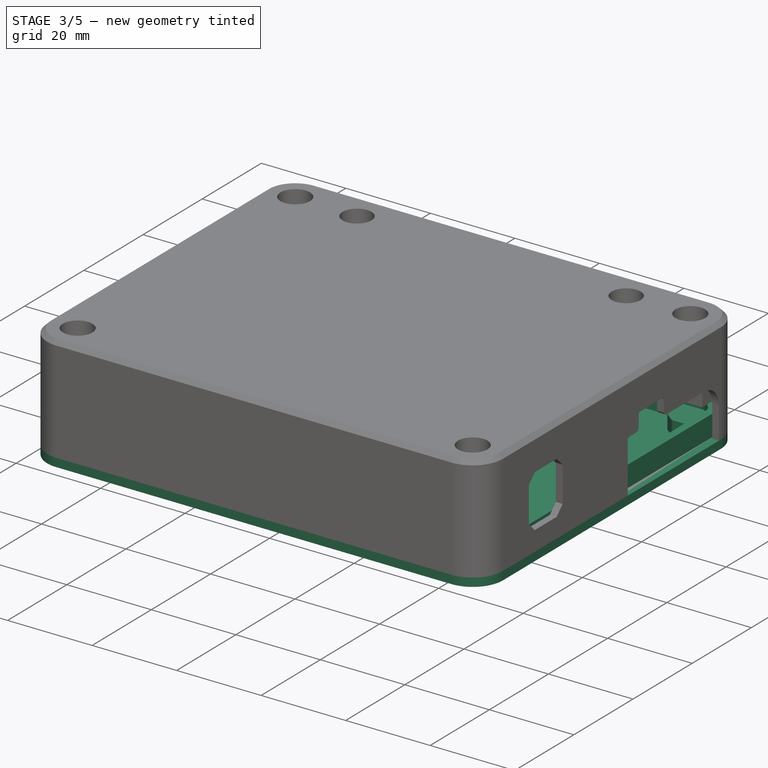
[diagram: stage 3 of 5 — iso view after this stage's code; geometry added in this stage tinted green]
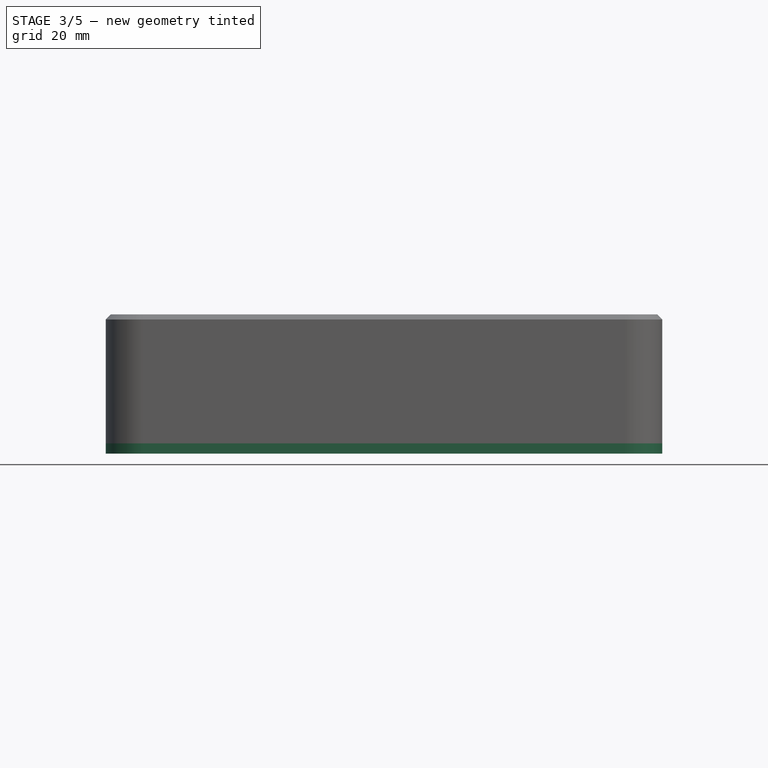
[diagram: stage 3 of 5 — front view after this stage's code; geometry added in this stage tinted green]
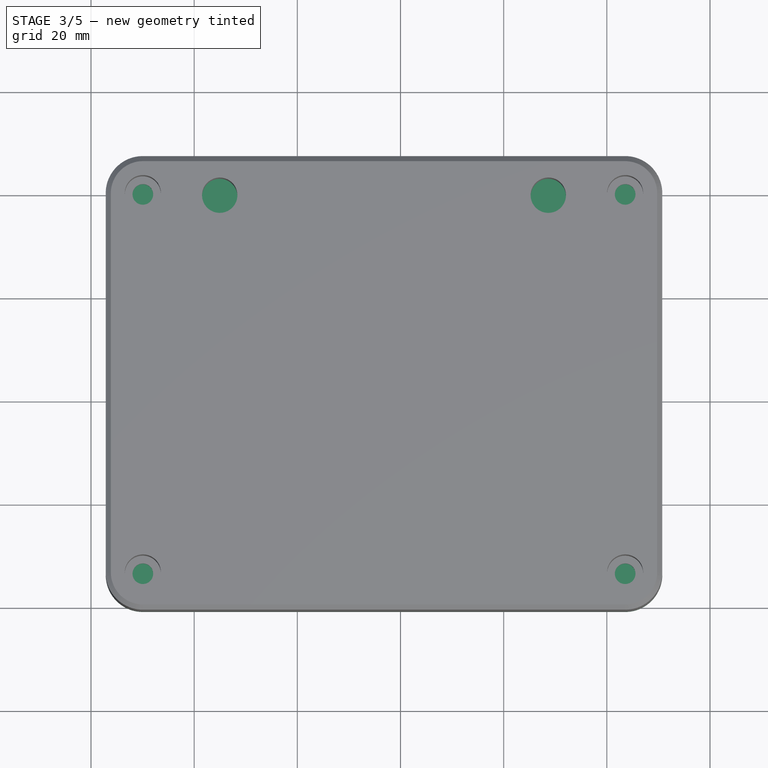
[diagram: stage 3 of 5 — top view after this stage's code; geometry added in this stage tinted green]
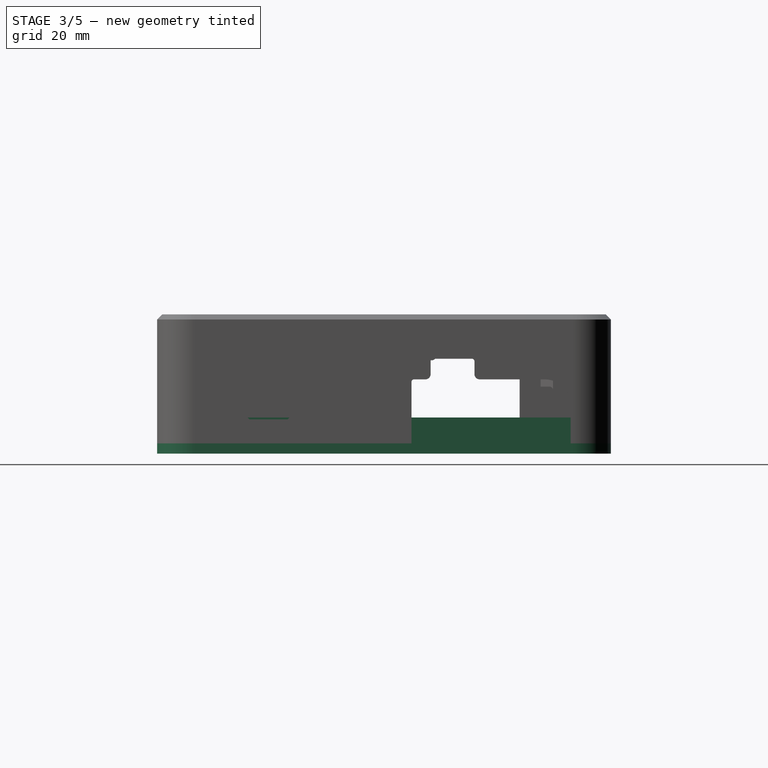
[diagram: stage 3 of 5 — right view after this stage's code; geometry added in this stage tinted green]
FEATURE [PartDesign::SubShapeBinder] Binder
  BindCopyOnChange = 0
  BindMode = 0
  ClaimChildren = false
  Context = -> Body [Binder.]
  Fuse = false
  MakeFace = true
  OffsetFill = false
  OffsetIntersection = false
  OffsetJoinType = 0
  OffsetOpenResult = false
  PartialLoad = false
  Refine = true
  Relative = true
  Support = -> [Board_aaa008]
  _Version = 2
FEATURE [Sketcher::SketchObject] Sketch
  ArcFitTolerance = 1e-06
  AttachmentOffset = pos=(0,0,3.75) rot=(0,0,1;0rad)
  AttachmentSupport = -> [Binder]
  ExternalGeometry = -> [Binder]
  ExternalTypes = [0]
  FullyConstrained = true
  MakeInternals = false
  MapMode = 5
  Placement = pos=(0,0,-5.3502) rot=(1,0,0;3.14159rad)
  _ExternalGeoVersion = 0
  sketch-geometry (10):
    g0: LineSegment StartX=-57.1492 StartY=33.5464 StartZ=0 EndX=-57.1492 EndY=-39.9989 EndZ=0
    g1: LineSegment StartX=-49.9485 StartY=-47.1996 StartZ=0 EndX=43.5501 EndY=-47.1996 EndZ=0
    g2: LineSegment StartX=50.7508 StartY=-39.9989 StartZ=0 EndX=50.7508 EndY=33.5464 EndZ=0
    g3: LineSegment StartX=43.5501 StartY=40.7472 StartZ=0 EndX=-49.9485 EndY=40.7472 EndZ=0
    g4: ArcOfCircle CenterX=-49.9485 CenterY=33.5464 CenterZ=0 NormalX=0 NormalY=0 NormalZ=1 AngleXU=0 Radius=7.20071 StartAngle=1.5708 EndAngle=3.14159
    g5: ArcOfCircle CenterX=-49.9485 CenterY=-39.9989 CenterZ=0 NormalX=0 NormalY=0 NormalZ=1 AngleXU=0 Radius=7.20071 StartAngle=3.14159 EndAngle=4.71239
    g6: ArcOfCircle CenterX=43.5501 CenterY=-39.9989 CenterZ=0 NormalX=0 NormalY=0 NormalZ=1 AngleXU=0 Radius=7.20071 StartAngle=4.71239 EndAngle=6.28319
    g7: ArcOfCircle CenterX=43.5501 CenterY=33.5464 CenterZ=0 NormalX=0 NormalY=0 NormalZ=1 AngleXU=0 Radius=7.20071 StartAngle=1e-16 EndAngle=1.5708
    g8: GeomPoint [constr] X=-57.1492 Y=40.7472 Z=0
    g9: GeomPoint [constr] X=50.7508 Y=-47.1996 Z=0
  constraints (23):
    c: Tangent(g0,g4) = -1.5708
    c: Tangent(g0,g5) = -1.5708
    c: Tangent(g1,g5) = -1.5708
    c: Tangent(g1,g6) = -1.5708
    c: Tangent(g2,g6) = -1.5708
    c: Tangent(g2,g7) = -1.5708
    c: Tangent(g3,g7) = -1.5708
    c: Tangent(g3,g4) = -1.5708
    c: Vertical(g0)
    c: Vertical(g2)
    c: Horizontal(g1)
    c: Horizontal(g3)
    c: Equal(g4,g5)
    c: Equal(g5,g6)
    c: Equal(g6,g7)
    c: PointOnObject(g8,g0)
    c: PointOnObject(g8,g3)
    c: PointOnObject(g9,g1)
    c: PointOnObject(g9,g2)
    c: DistanceX(g0,g-5) = 4  'enclosure-width'
    c: Coincident(g4,g-4)
    c: Distance(g-7,g2) = 4
    c: Distance(g-9,g1) = 4
FEATURE [PartDesign::Pad] Pad
  Direction = (0,0,-1)
  Length = 2
  Length2 = 10
  Profile = -> Sketch
  ReferenceAxis = -> Sketch [N_Axis]
  Refine = true
  SideType = 0
  Suppressed = false
  Type = 0
  Type2 = 0
FEATURE [Sketcher::SketchObject] Sketch001
  ArcFitTolerance = 1e-06
  AttachmentSupport = -> [Pad]
  ExternalGeometry = -> [Binder]
  ExternalTypes = [0]
  FullyConstrained = true
  MakeInternals = false
  MapMode = 5
  Placement = pos=(0,0,-5.3502) rot=(0,0,1;0rad)
  _ExternalGeoVersion = 0
  sketch-geometry (20):
    g0: LineSegment StartX=-55.15 StartY=39.9996 StartZ=0 EndX=-55.15 EndY=-33.5498 EndZ=0
    g1: LineSegment StartX=-49.95 StartY=-38.7498 StartZ=0 EndX=43.551 EndY=-38.7498 EndZ=0
    g2: LineSegment StartX=48.751 StartY=-33.5498 StartZ=0 EndX=48.751 EndY=39.9996 EndZ=0
    g3: LineSegment StartX=43.551 StartY=45.1996 StartZ=0 EndX=-49.95 EndY=45.1996 EndZ=0
    g4: ArcOfCircle CenterX=-49.95 CenterY=39.9996 CenterZ=0 NormalX=0 NormalY=0 NormalZ=1 AngleXU=0 Radius=5.19999 StartAngle=1.5708 EndAngle=3.14159
    g5: ArcOfCircle CenterX=-49.95 CenterY=-33.5498 CenterZ=0 NormalX=0 NormalY=0 NormalZ=1 AngleXU=0 Radius=5.19999 StartAngle=3.14159 EndAngle=4.71239
    g6: ArcOfCircle CenterX=43.551 CenterY=-33.5498 CenterZ=0 NormalX=0 NormalY=0 NormalZ=1 AngleXU=0 Radius=5.19999 StartAngle=4.71239 EndAngle=6.28319
    g7: ArcOfCircle CenterX=43.551 CenterY=39.9996 CenterZ=0 NormalX=0 NormalY=0 NormalZ=1 AngleXU=0 Radius=5.19999 StartAngle=5e-16 EndAngle=1.5708
    g8: GeomPoint [constr] X=-55.15 Y=45.1996 Z=0
    g9: GeomPoint [constr] X=48.751 Y=-38.7498 Z=0
    g10: LineSegment StartX=-53.35 StartY=39.9996 StartZ=0 EndX=-53.35 EndY=-33.5498 EndZ=0
    g11: LineSegment StartX=-49.95 StartY=-36.9498 StartZ=0 EndX=43.551 EndY=-36.9498 EndZ=0
    g12: LineSegment StartX=46.951 StartY=-33.5498 StartZ=0 EndX=46.951 EndY=39.9996 EndZ=0
    g13: LineSegment StartX=43.551 StartY=43.3996 StartZ=0 EndX=-49.95 EndY=43.3996 EndZ=0
    g14: ArcOfCircle CenterX=-49.95 CenterY=39.9996 CenterZ=0 NormalX=0 NormalY=0 NormalZ=1 AngleXU=0 Radius=3.39999 StartAngle=1.5708 EndAngle=3.14159
    g15: ArcOfCircle CenterX=-49.95 CenterY=-33.5498 CenterZ=0 NormalX=0 NormalY=0 NormalZ=1 AngleXU=0 Radius=3.39999 StartAngle=3.14159 EndAngle=4.71239
    g16: ArcOfCircle CenterX=43.551 CenterY=-33.5498 CenterZ=0 NormalX=0 NormalY=0 NormalZ=1 AngleXU=0 Radius=3.39999 StartAngle=4.71239 EndAngle=6.28319
    g17: ArcOfCircle CenterX=43.551 CenterY=39.9996 CenterZ=0 NormalX=0 NormalY=0 NormalZ=1 AngleXU=0 Radius=3.39999 StartAngle=0 EndAngle=1.5708
    g18: GeomPoint [constr] X=-53.35 Y=43.3996 Z=0
    g19: GeomPoint [constr] X=46.951 Y=-36.9498 Z=0
  constraints (46):
    c: Tangent(g0,g4) = -1.5708
    c: Tangent(g0,g5) = -1.5708
    c: Tangent(g1,g5) = -1.5708
    c: Tangent(g1,g6) = -1.5708
    c: Tangent(g2,g6) = -1.5708
    c: Tangent(g2,g7) = -1.5708
    c: Tangent(g3,g7) = -1.5708
    c: Tangent(g3,g4) = -1.5708
    c: Vertical(g0)
    c: Vertical(g2)
    c: Horizontal(g1)
    c: Horizontal(g3)
    c: Equal(g4,g5)
    c: Equal(g5,g6)
    c: Equal(g6,g7)
    c: PointOnObject(g8,g0)
    c: PointOnObject(g8,g3)
    c: PointOnObject(g9,g1)
    c: PointOnObject(g9,g2)
    c: DistanceX(g0,g-5) = 2
    c: Coincident(g4,g-4)
    c: DistanceX(g-7,g2) = 2
    c: DistanceY(g1,g-9) = 2
    c: Tangent(g10,g14) = -1.5708
    c: Tangent(g10,g15) = -1.5708
    c: Tangent(g11,g15) = -1.5708
    c: Tangent(g11,g16) = -1.5708
    c: Tangent(g12,g16) = -1.5708
    c: Tangent(g12,g17) = -1.5708
    c: Tangent(g13,g17) = -1.5708
    c: Tangent(g13,g14) = -1.5708
    c: Vertical(g10)
    c: Vertical(g12)
    c: Horizontal(g11)
    c: Horizontal(g13)
    c: Equal(g14,g15)
    c: Equal(g15,g16)
    c: Equal(g16,g17)
    c: PointOnObject(g18,g10)
    c: PointOnObject(g18,g13)
    c: PointOnObject(g19,g11)
    c: PointOnObject(g19,g12)
    c: DistanceX(g10,g-5) = 0.2
    c: DistanceX(g-7,g12) = 0.2
    c: DistanceY(g11,g-9) = 0.2
    c: Coincident(g14,g4)
FEATURE [PartDesign::Pad] Pad001
  BaseFeature = -> Pad
  Direction = (0,0,1)
  Length = 5
  Length2 = 10
  Profile = -> Sketch001
  ReferenceAxis = -> Sketch001 [N_Axis]
  Refine = true
  SideType = 0
  Suppressed = false
  Type = 0
  Type2 = 0
FEATURE [Sketcher::SketchObject] Sketch002
  ArcFitTolerance = 1e-06
  ExternalGeometry = -> [Binder,Pad001]
  ExternalTypes = [0]
  FullyConstrained = true
  MakeInternals = false
  MapMode = 5
  Placement = pos=(0,0,-2) rot=(1,0,0;3.14159rad)
  _ExternalGeoVersion = 0
  sketch-geometry (10):
    g0: LineSegment StartX=-53.1492 StartY=29.5498 StartZ=0 EndX=-53.35 EndY=29.5498 EndZ=0
    g1: LineSegment StartX=-45.95 StartY=36.7473 StartZ=0 EndX=-45.95 EndY=36.9498 EndZ=0
    g2: LineSegment StartX=-45.95 StartY=36.9498 StartZ=0 EndX=-49.95 EndY=36.9498 EndZ=0
    g3: LineSegment StartX=-53.35 StartY=29.5498 StartZ=0 EndX=-53.35 EndY=33.5498 EndZ=0
    g4: ArcOfCircle CenterX=-49.95 CenterY=33.5498 CenterZ=0 NormalX=0 NormalY=0 NormalZ=1 AngleXU=0 Radius=3.39999 StartAngle=1.5708 EndAngle=3.14159
    g5: LineSegment StartX=-53.1492 StartY=29.5498 StartZ=0 EndX=-48.6466 EndY=29.5498 EndZ=0
    g6: ArcOfCircle CenterX=-48.6466 CenterY=30.4451 CenterZ=0 NormalX=0 NormalY=0 NormalZ=1 AngleXU=0 Radius=0.895293 StartAngle=4.71239 EndAngle=5.38086
    g7: LineSegment StartX=-48.0918 StartY=29.7425 StartZ=0 EndX=-46.138 EndY=31.2855 EndZ=0
    g8: ArcOfCircle CenterX=-46.4444 CenterY=31.6735 CenterZ=0 NormalX=0 NormalY=0 NormalZ=1 AngleXU=0 Radius=0.494368 StartAngle=5.38086 EndAngle=6.28319
    g9: LineSegment StartX=-45.95 StartY=31.6735 StartZ=0 EndX=-45.95 EndY=36.7473 EndZ=0
  constraints (24):
    c: PointOnObject(g0,g-8)
    c: Horizontal(g0)
    c: PointOnObject(g1,g-7)
    c: Vertical(g1)
    c: Coincident(g2,g1)
    c: Coincident(g2,g-9)
    c: Coincident(g3,g0)
    c: Coincident(g3,g-9)
    c: Coincident(g4,g2)
    c: Coincident(g4,g3)
    c: PointOnObject(g0,g-10)
    c: PointOnObject(g1,g-11)
    c: DistanceY(g3,g3) = 4
    c: DistanceX(g2,g2) = 4
    c: Equal(g4,g-9)
    c: Coincident(g0,g5)
    c: Tangent(g5,g6) = -1.5708
    c: Tangent(g6,g7) = -1.5708
    c: Tangent(g7,g8) = -1.5708
    c: Tangent(g8,g9) = -1.5708
    c: Vertical(g9)
    c: Coincident(g9,g1)
    c: Horizontal(g5)
    c: Block(g7)
FEATURE [PartDesign::Pad] Pad002
  BaseFeature = -> Pad001
  Direction = (0,-1e-16,-1)
  Length = 10
  Length2 = 10
  Profile = -> Sketch002
  ReferenceAxis = -> Sketch002 [N_Axis]
  Refine = true
  SideType = 0
  Suppressed = false
  Type = 2
  Type2 = 0
FEATURE [PartDesign::Plane] DatumPlane
  AttachmentOffset = pos=(0,0,0) rot=(1,0,0;1.5708rad)
  AttachmentSupport = -> [Pad002]
  Length = 122.591
  MapMode = 45
  Placement = pos=(-3.1995,3.22491,-2.8502) rot=(1,0,0;1.5708rad)
  ResizeMode = 0
  Width = 64.6902
  expr: .AttachmentOffset.Rotation.Pitch = 0
FEATURE [PartDesign::Plane] DatumPlane001
  AttachmentOffset = pos=(0,0,0) rot=(1,0,0;1.5708rad)
  AttachmentSupport = -> [Pad002]
  Length = 101.209
  MapMode = 45
  Placement = pos=(-3.1995,3.22491,-2.8502) rot=(0.57735,0.57735,0.57735;2.0944rad)
  ResizeMode = 0
  Width = 63.2625
FEATURE [PartDesign::Line] DatumLine
  AttacherType = Attacher::AttachEngineLine
  AttachmentSupport = -> [DatumPlane001,DatumPlane]
  Length = 20
  MapMode = 30
  Placement = pos=(-3.1995,3.22491,-2.8502) rot=(0,1,0;3.14159rad)
  ResizeMode = 0
FEATURE [PartDesign::Mirrored] Mirrored
  BaseFeature = -> Pad002
  MirrorPlane = -> DatumPlane
  Originals = -> [Pad002]
  Refine = true
  Suppressed = false
  TransformMode = 0
FEATURE [PartDesign::Mirrored] Mirrored001
  BaseFeature = -> Mirrored
  MirrorPlane = -> DatumPlane001
  Originals = -> [Pad002]
  Refine = true
  Suppressed = false
  TransformMode = 0
FEATURE [PartDesign::PolarPattern] PolarPattern
  Angle = 360
  Axis = -> DatumLine
  BaseFeature = -> Mirrored001
  Mode = 0
  Occurrences = 2
  Offset = 120
  Originals = -> [Pad002]
  Refine = true
  Reversed = true
  SpacingPattern = [0]
  Spacings = [-1]
  Suppressed = false
  TransformMode = 0
FEATURE [PartDesign::Body] Body004  label="logo-led"
  AllowCompound = false
  Group = -> [Binder003,Sketch023,Pad010]
  Origin = -> Origin064
  Tip = -> Pad010
FEATURE [Part::Part2DObjectPython] ShapeString  # Draft 2D object (typed FeaturePython)
  FontFile = <path>
  Fuse = false
  Justification = 4
  JustificationReference = 0
  KeepLeftMargin = false
  MakeFace = true
  ObliqueAngle = 0
  Placement = pos=(-27,26.61,-6.35) rot=(0,0,-6;0rad)
  ScaleToSize = true
  Size = 7
  String = LumenLab
  Tracking = 0
FEATURE [Part::Mirroring] Mirror  label="ShapeString (mirrored)"
  Base = (0,0,0)
  Normal = (-1,0,0)
  Placement = pos=(-39.4752,1.74102,0) rot=(0,0,1;0rad)
  Source = -> ShapeString
FEATURE [Part::Extrusion] Extrude
  Base = -> Mirror
  Dir = (0,0,-1)
  DirMode = 2
  FaceMakerClass = Part::FaceMakerBullseye
  FaceMakerMode = 3
  InnerWireTaper = 1
  LengthFwd = 1
  LengthRev = 0
  Solid = true
  Symmetric = false
FEATURE [Sketcher::SketchObject] Sketch025
  ArcFitTolerance = 1e-06
  AttachmentSupport = -> [Fillet010]
  ExternalGeometry = -> [Fillet010]
  ExternalTypes = [0]
  FullyConstrained = false
  MakeInternals = false
  MapMode = 5
  Placement = pos=(0,47.1996,0) rot=(0,0.707107,0.707107;3.14159rad)
  _ExternalGeoVersion = 0
  sketch-geometry (6):
    g0: ArcOfCircle CenterX=-29.3095 CenterY=15.6498 CenterZ=0 NormalX=0 NormalY=0 NormalZ=1 AngleXU=0 Radius=1 StartAngle=5.81954 EndAngle=8.96113
    g1: ArcOfCircle CenterX=-38.3095 CenterY=-2.3502 CenterZ=0 NormalX=0 NormalY=0 NormalZ=1 AngleXU=0 Radius=1 StartAngle=2.67795 EndAngle=5.81954
    g2: LineSegment StartX=-28.4151 StartY=15.2026 StartZ=0 EndX=-37.4151 EndY=-2.79741 EndZ=0
    g3: LineSegment StartX=-30.2039 StartY=16.097 StartZ=0 EndX=-39.2039 EndY=-1.90298 EndZ=0
    g4: LineSegment [constr] StartX=-29.3095 StartY=15.6498 StartZ=0 EndX=-29.3095 EndY=18.6498 EndZ=0
    g5: LineSegment [constr] StartX=-38.3095 StartY=-2.3502 StartZ=0 EndX=-38.3095 EndY=-5.3502 EndZ=0
  constraints (15):
    c: Tangent(g0,g2) = 1.5708
    c: Tangent(g0,g3) = -1.5708
    c: Tangent(g1,g2) = 1.5708
    c: Tangent(g1,g3) = -1.5708
    c: Equal(g0,g1)
    c: Radius(g0) = 1
    c: Coincident(g4,g0)
    c: PointOnObject(g4,g-3)
    c: Coincident(g5,g1)
    c: PointOnObject(g5,g-4)
    c: Equal(g4,g5)
    c: Vertical(g5)
    c: Vertical(g4)
    c: DistanceX(g1,g0) = 9
    c: DistanceY(g5,g5) = 3
FEATURE [PartDesign::Pocket] Pocket013
  BaseFeature = -> Fillet010
  Direction = (0,-1,2e-16)
  Length = 1.6
  Length2 = 5
  Profile = -> Sketch025
  ReferenceAxis = -> Sketch025 [N_Axis]
  Refine = true
  SideType = 0
  Suppressed = false
  Type = 0
  Type2 = 0
FEATURE [PartDesign::LinearPattern] LinearPattern
  BaseFeature = -> Pocket013
  Direction = -> Sketch025 [H_Axis]
  Length = 75
  Length2 = 100
  Mode = 0
  Mode2 = 0
  Occurrences = 12
  Occurrences2 = 1
  Offset = 6.81818
  Offset2 = 10
  Originals = -> [Pocket013]
  Refine = true
  Reversed2 = false
  SpacingPattern = [0]
  SpacingPattern2 = [0]
  Spacings = [-1,-1,-1,-1,-1,-1,-1,-1,-1,-1,-1]
  Suppressed = false
  TransformMode = 0
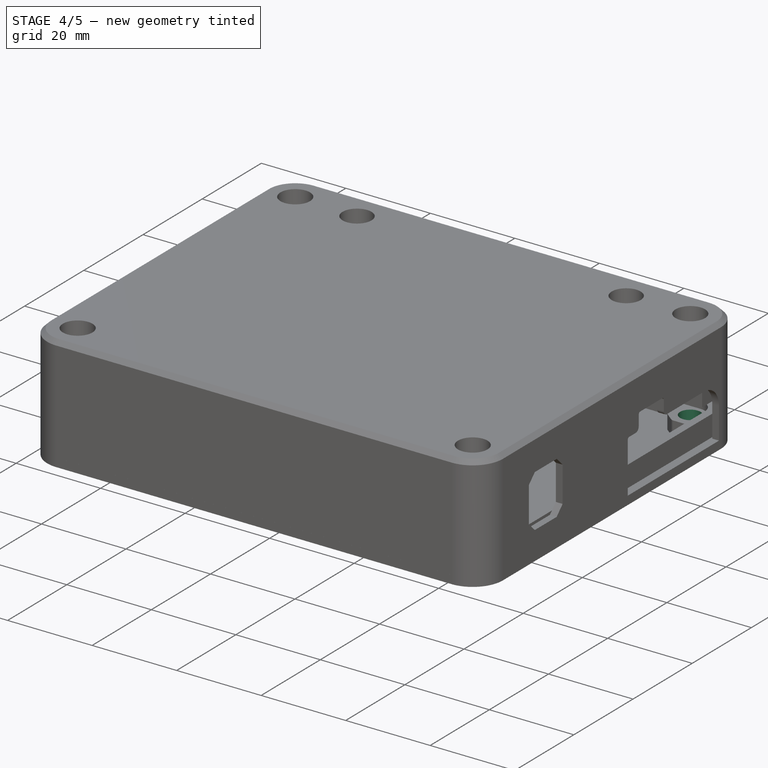
[diagram: stage 4 of 5 — iso view after this stage's code; geometry added in this stage tinted green]
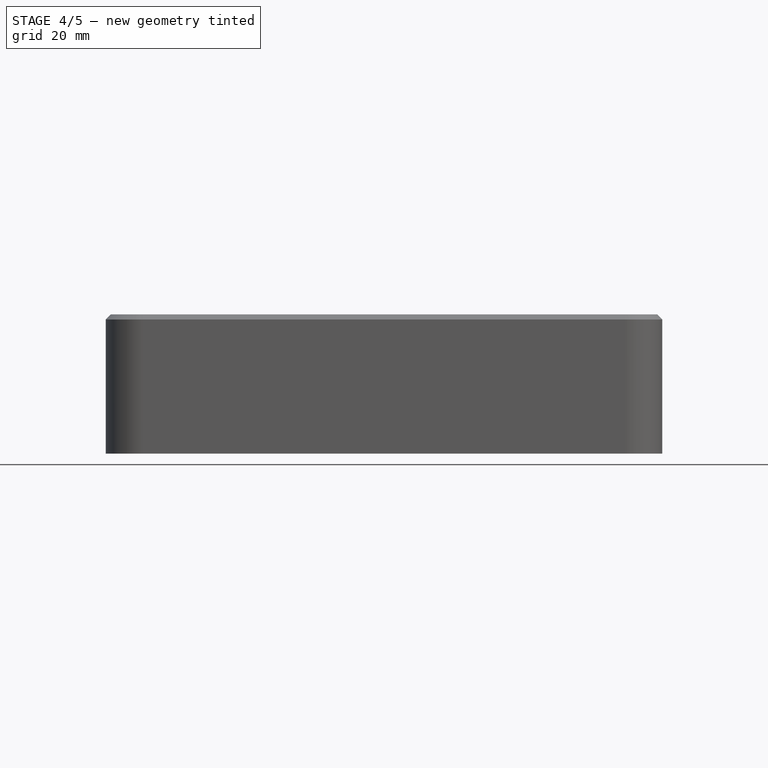
[diagram: stage 4 of 5 — front view after this stage's code; geometry added in this stage tinted green]
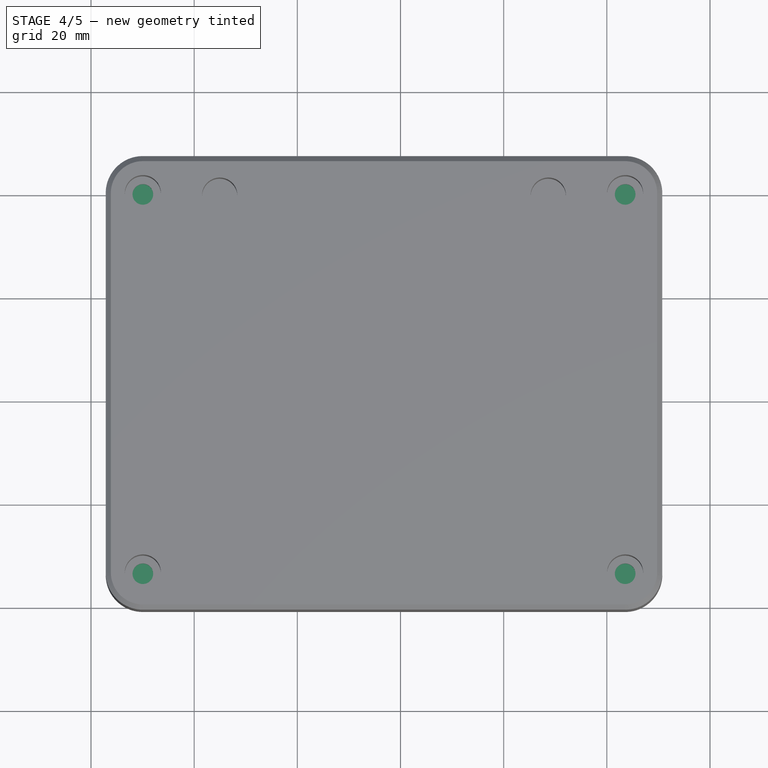
[diagram: stage 4 of 5 — top view after this stage's code; geometry added in this stage tinted green]
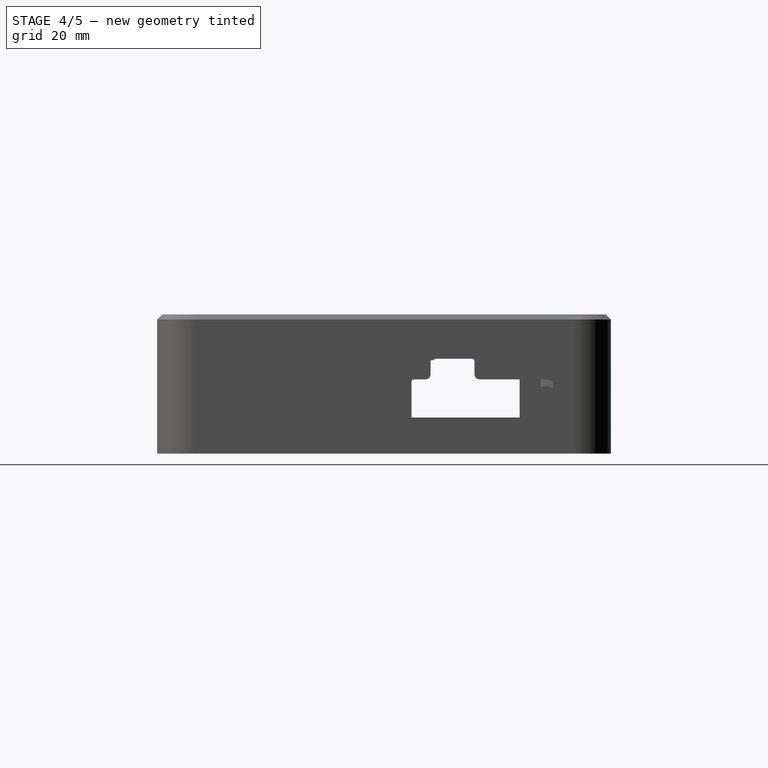
[diagram: stage 4 of 5 — right view after this stage's code; geometry added in this stage tinted green]
FEATURE [Sketcher::SketchObject] Sketch003
  ArcFitTolerance = 1e-06
  AttachmentSupport = -> [PolarPattern]
  ExternalTypes = [0]
  FullyConstrained = true
  MakeInternals = false
  MapMode = 5
  Placement = pos=(0,0,-2) rot=(0,0,1;0rad)
  _ExternalGeoVersion = 0
  sketch-geometry (1):
    g0: Circle CenterX=-49.95 CenterY=-33.5498 CenterZ=0 NormalX=0 NormalY=0 NormalZ=1 AngleXU=0 Radius=2.425
  constraints (2):
    c: Coincident(g0,g-3)
    c: Diameter(g0) = 4.85
FEATURE [PartDesign::Pocket] Pocket
  BaseFeature = -> PolarPattern
  Direction = (0,0,-1)
  Length = 4.35
  Length2 = 5
  Profile = -> Sketch003
  ReferenceAxis = -> Sketch003 [N_Axis]
  Refine = true
  SideType = 0
  Suppressed = false
  Type = 0
  Type2 = 0
FEATURE [PartDesign::Mirrored] Mirrored002
  BaseFeature = -> Pocket
  MirrorPlane = -> DatumPlane
  Originals = -> [Pocket]
  Refine = true
  Suppressed = false
  TransformMode = 0
FEATURE [PartDesign::Mirrored] Mirrored003
  BaseFeature = -> Mirrored002
  MirrorPlane = -> DatumPlane001
  Originals = -> [Pocket]
  Refine = true
  Suppressed = false
  TransformMode = 0
FEATURE [PartDesign::PolarPattern] PolarPattern001
  Angle = 360
  Axis = -> DatumLine
  BaseFeature = -> Mirrored003
  Mode = 0
  Occurrences = 2
  Offset = 120
  Originals = -> [Pocket]
  Refine = true
  SpacingPattern = [0]
  Spacings = [-1]
  Suppressed = false
  TransformMode = 0
FEATURE [Sketcher::SketchObject] Sketch004
  ArcFitTolerance = 1e-06
  AttachmentSupport = -> [Pad]
  ExternalTypes = [0]
  FullyConstrained = true
  MakeInternals = false
  MapMode = 5
  Placement = pos=(0,0,-5.3502) rot=(0,0,1;0rad)
  _ExternalGeoVersion = 0
  sketch-geometry (16):
    g0: LineSegment StartX=17.1876 StartY=-6.3741 StartZ=0 EndX=17.1876 EndY=-32.4599 EndZ=0
    g1: LineSegment StartX=17.8947 StartY=-33.167 StartZ=0 EndX=30.3239 EndY=-33.167 EndZ=0
    g2: LineSegment StartX=31.031 StartY=-32.4599 StartZ=0 EndX=31.031 EndY=-6.3741 EndZ=0
    g3: LineSegment StartX=30.3239 StartY=-5.66699 StartZ=0 EndX=17.8947 EndY=-5.66699 EndZ=0
    g4: ArcOfCircle [constr] CenterX=17.8947 CenterY=-6.3741 CenterZ=0 NormalX=0 NormalY=0 NormalZ=1 AngleXU=0 Radius=0.707107 StartAngle=1.5708 EndAngle=3.14159
    g5: GeomPoint [constr] X=17.1876 Y=-5.66699 Z=0
    g6: LineSegment StartX=17.8947 StartY=-5.66699 StartZ=0 EndX=17.1876 EndY=-6.3741 EndZ=0
    g7: ArcOfCircle [constr] CenterX=30.3239 CenterY=-6.3741 CenterZ=0 NormalX=0 NormalY=0 NormalZ=1 AngleXU=0 Radius=0.707107 StartAngle=-1.8e-15 EndAngle=1.5708
    g8: GeomPoint [constr] X=31.031 Y=-5.66699 Z=0
    g9: LineSegment StartX=31.031 StartY=-6.3741 StartZ=0 EndX=30.3239 EndY=-5.66699 EndZ=0
    g10: ArcOfCircle [constr] CenterX=30.3239 CenterY=-32.4599 CenterZ=0 NormalX=0 NormalY=0 NormalZ=1 AngleXU=0 Radius=0.707107 StartAngle=4.71239 EndAngle=6.28319
    g11: GeomPoint [constr] X=31.031 Y=-33.167 Z=0
    g12: LineSegment StartX=30.3239 StartY=-33.167 StartZ=0 EndX=31.031 EndY=-32.4599 EndZ=0
    g13: ArcOfCircle [constr] CenterX=17.8947 CenterY=-32.4599 CenterZ=0 NormalX=0 NormalY=0 NormalZ=1 AngleXU=0 Radius=0.707107 StartAngle=3.14159 EndAngle=4.71239
    g14: GeomPoint [constr] X=17.1876 Y=-33.167 Z=0
    g15: LineSegment StartX=17.1876 StartY=-32.4599 StartZ=0 EndX=17.8947 EndY=-33.167 EndZ=0
  constraints (36):
    c: Vertical(g0)
    c: Vertical(g2)
    c: Horizontal(g1)
    c: Distance(g14,g5) = 27.5
    c: Tangent(g0,g4) = -1.5708
    c: Tangent(g3,g4) = -1.5708
    c: Coincident(g6,g0)
    c: Coincident(g6,g3)
    c: Tangent(g2,g7) = -1.5708
    c: Tangent(g3,g7) = -1.5708
    c: Coincident(g9,g2)
    c: Coincident(g9,g3)
    c: PointOnObject(g11,g1)
    c: PointOnObject(g11,g2)
    c: Tangent(g1,g10) = -1.5708
    c: Tangent(g2,g10) = -1.5708
    c: Coincident(g12,g1)
    c: Coincident(g12,g2)
    c: PointOnObject(g14,g0)
    c: PointOnObject(g14,g1)
    c: Tangent(g0,g13) = -1.5708
    c: Tangent(g1,g13) = -1.5708
    c: Coincident(g15,g0)
    c: Coincident(g15,g1)
    c: DistanceX(g5,g-6) = 0.25
    c: Vertical(g5,g0)
    c: Horizontal(g3,g5)
    c: Horizontal(g-3,g3)
    c: Horizontal(g3)
    c: DistanceX(g8,g-6) = -0.25
    c: Vertical(g8,g2)
    c: Horizontal(g8,g3)
    c: Equal(g15,g12)
    c: Distance(g15,g15) = 1
    c: Equal(g15,g6)
    c: Equal(g15,g9)
FEATURE [PartDesign::Pocket] Pocket001
  BaseFeature = -> PolarPattern001
  Direction = (0,0,-1)
  Length = 5
  Length2 = 5
  Profile = -> Sketch004
  ReferenceAxis = -> Sketch004 [N_Axis]
  Refine = true
  SideType = 0
  Suppressed = false
  Type = 1
  Type2 = 0
FEATURE [Sketcher::SketchObject] Sketch005
  ArcFitTolerance = 1e-06
  AttachmentSupport = -> [Pocket001]
  ExternalGeometry = -> [Binder]
  ExternalTypes = [0]
  FullyConstrained = true
  MakeInternals = false
  MapMode = 5
  Placement = pos=(0,0,-5.3502) rot=(0,0,1;0rad)
  _ExternalGeoVersion = 0
  sketch-geometry (2):
    g0: Circle CenterX=-11.0304 CenterY=-26.366 CenterZ=0 NormalX=0 NormalY=0 NormalZ=1 AngleXU=0 Radius=4
    g1: Circle CenterX=6.40289 CenterY=-26.366 CenterZ=0 NormalX=0 NormalY=0 NormalZ=1 AngleXU=0 Radius=4
  constraints (4):
    c: Diameter(g1) = 8
    c: Diameter(g0) = 8
    c: Coincident(g0,g-3)
    c: Coincident(g1,g-4)
FEATURE [PartDesign::Pocket] Pocket002
  BaseFeature = -> Pocket001
  Direction = (0,0,-1)
  Length = 5
  Length2 = 5
  Profile = -> Sketch005
  ReferenceAxis = -> Sketch005 [N_Axis]
  Refine = true
  SideType = 0
  Suppressed = false
  Type = 1
  Type2 = 0
FEATURE [Sketcher::SketchObject] Sketch006
  ArcFitTolerance = 1e-06
  AttachmentSupport = -> [Pocket002]
  ExternalGeometry = -> [Binder]
  ExternalTypes = [0]
  FullyConstrained = true
  MakeInternals = false
  MapMode = 5
  Placement = pos=(0,0,-7.3502) rot=(1,0,0;3.14159rad)
  _ExternalGeoVersion = 0
  sketch-geometry (7):
    g0: GeomPoint [constr] X=-14.1384 Y=2.33766 Z=0
    g1: LineSegment StartX=-16.2684 StartY=8.33766 StartZ=0 EndX=-16.2684 EndY=-12.1623 EndZ=0
    g2: LineSegment StartX=-16.2684 StartY=-12.1623 StartZ=0 EndX=11.7316 EndY=-12.1623 EndZ=0
    g3: LineSegment StartX=11.7316 StartY=-12.1623 StartZ=0 EndX=11.7316 EndY=8.33766 EndZ=0
    g4: LineSegment StartX=11.7316 StartY=8.33766 StartZ=0 EndX=-16.2684 EndY=8.33766 EndZ=0
    g5: LineSegment [constr] StartX=-14.1384 StartY=2.33766 StartZ=0 EndX=-16.2684 EndY=8.33766 EndZ=0
    g6: LineSegment [constr] StartX=9.60158 StartY=2.33766 StartZ=0 EndX=11.7316 EndY=8.33766 EndZ=0
  constraints (17):
    c: Coincident(g0,g-4)
    c: Coincident(g1,g2)
    c: Coincident(g2,g3)
    c: Coincident(g3,g4)
    c: Coincident(g4,g1)
    c: Vertical(g1)
    c: Vertical(g3)
    c: Horizontal(g2)
    c: Horizontal(g4)
    c: Distance(g1,g3) = 28
    c: Distance(g2,g4) = 20.5
    c: Coincident(g5,g0)
    c: Coincident(g5,g1)
    c: Coincident(g6,g3)
    c: Coincident(g-3,g6)
    c: Equal(g5,g6)
    c: Distance(g2,g-5) = 1
FEATURE [PartDesign::Pocket] Pocket003
  BaseFeature = -> Pocket002
  Direction = (0,0,1)
  Length = 5
  Length2 = 5
  Profile = -> Sketch006
  ReferenceAxis = -> Sketch006 [N_Axis]
  Refine = true
  SideType = 0
  Suppressed = false
  Type = 1
  Type2 = 0
FEATURE [PartDesign::CoordinateSystem] Local_CS_aaa008
  AttacherType = Attacher::AttachEngine3D
  MapMode = 2
FEATURE [Part::Feature] Pcb_aaa008
  Placement = pos=(-150.8,104.4,0) rot=(0,0,1;0rad)
  shape: bbox 99.9 x 79.95 x 1.6 mm, 128 faces (baked)
FEATURE [Sketcher::SketchObject] PCB_Sketch_aaa008
  ArcFitTolerance = 1e-06
  ExternalTypes = [0]
  FullyConstrained = false
  MakeInternals = false
  _ExternalGeoVersion = 0
  sketch-geometry (8):
    g0: LineSegment StartX=46.751 StartY=39.9996 StartZ=0 EndX=46.7508 EndY=-33.5498 EndZ=0
    g1: LineSegment StartX=-49.95 StartY=43.2 StartZ=0 EndX=43.551 EndY=43.1996 EndZ=0
    g2: LineSegment StartX=-53.149 StartY=-33.5504 StartZ=0 EndX=-53.149 EndY=39.9996 EndZ=0
    g3: LineSegment StartX=43.5508 StartY=-36.7498 StartZ=0 EndX=-49.9492 EndY=-36.7472 EndZ=0
    g4: ArcOfCircle CenterX=-49.9483 CenterY=-33.5464 CenterZ=0 NormalX=0 NormalY=0 NormalZ=-1 AngleXU=-1.57081 Radius=3.20072 StartAngle=0.0002912 EndAngle=1.56957
    g5: ArcOfCircle CenterX=-49.95 CenterY=40.001 CenterZ=0 NormalX=0 NormalY=0 NormalZ=-1 AngleXU=-2.45418e-06 Radius=3.199 StartAngle=6.28275 EndAngle=7.85399
    g6: ArcOfCircle CenterX=43.551 CenterY=39.9996 CenterZ=0 NormalX=0 NormalY=0 NormalZ=-1 AngleXU=1.5708 Radius=3.2 StartAngle=0 EndAngle=1.5708
    g7: ArcOfCircle CenterX=43.5508 CenterY=-33.5498 CenterZ=0 NormalX=0 NormalY=0 NormalZ=-1 AngleXU=3.14159 Radius=3.19998 StartAngle=0 EndAngle=1.57081
  constraints (8):
    c: Coincident(g2,g4)
    c: Coincident(g2,g5)
    c: Coincident(g3,g4)
    c: Coincident(g1,g5)
    c: Coincident(g3,g7)
    c: Coincident(g1,g6)
    c: Coincident(g0,g7)
    c: Coincident(g0,g6)
FEATURE [App::Part] Board_Geoms_aaa008  label="Board_Geoms_aaa010"
  Group = -> [Pcb_aaa008,PCB_Sketch_aaa008]
  Origin = -> Origin034
FEATURE [Part::Feature] Shape007  label="R13_R_0603_1608Metric_19acb2b4304f001"
  Placement = pos=(10.851,31.7246,0) rot=(0,0,1;3.14159rad)
  shape: bbox 1.6 x 0.8 x 0.45 mm, 26 faces (baked)
FEATURE [Part::Feature] Part__Feature234  label="1264EY-220M=P008"
  shape: bbox 6 x 0.5 x 6 mm, 10 faces (baked)
FEATURE [Part::Feature] Part__Feature235  label="1264EY-220M=P009"
  shape: bbox 11.79 x 12.96 x 11.79 mm, 6 faces (baked)
FEATURE [Part::Feature] Part__Feature236  label="1264EY-220M=P010"
  shape: bbox 5.7 x 0.6 x 2.4 mm, 22 faces (baked)
FEATURE [Part::Feature] Part__Feature237  label="1264EY-220M=P011"
  shape: bbox 5.7 x 0.6 x 2.4 mm, 22 faces (baked)
FEATURE [Part::Feature] Part__Feature238  label="1264EY-220M=P012"
  shape: bbox 6 x 0.5 x 6 mm, 14 faces (baked)
FEATURE [App::Part] _264EY_220M_P004  label="L1_1264EY-220M=P008_986898e9630f001"
  Group = -> [Part__Feature234,Part__Feature235,Part__Feature236,Part__Feature237,Part__Feature238]
  Origin = -> Origin037
  Placement = pos=(29.451,10.7121,0) rot=(0.57735,-0.57735,-0.57735;2.0944rad)
FEATURE [App::Link] R13_R_0603_1608Metric_19acb2b4304f_ln_020  label="R18_R_0603_1608Metric_ef369e15c04e001"
  LinkPlacement = pos=(32.7437,32.4559,0) rot=(0,0,1;3.14159rad)
  LinkedObject = -> Shape007
  Placement = pos=(32.7437,32.4559,0) rot=(0,0,1;3.14159rad)
FEATURE [Part::Feature] Shape008  label="C8_C_1206_3216Metric_f8337c817a6e001"
  Placement = pos=(30.251,26.1996,0) rot=(0,0,1;0rad)
  shape: bbox 3.2 x 1.6 x 1.6 mm, 28 faces (baked)
FEATURE [Part::Feature] Part__Feature239  label="54-00172"
  shape: bbox 9 x 11 x 12 mm, 57 faces (baked)
FEATURE [Part::Feature] Part__Feature240  label="54-00173"
  shape: bbox 8 x 10.4 x 6.6 mm, 23 faces (baked)
FEATURE [Part::Feature] Part__Feature241  label="54-00174"
  shape: bbox 5.513 x 6.46 x 15.07 mm, 20 faces (baked)
FEATURE [Part::Feature] Part__Feature242  label="54-00175"
  shape: bbox 4.3 x 12.25 x 0.6 mm, 19 faces (baked)
FEATURE [Part::Feature] Part__Feature243  label="54-00176"
  shape: bbox 6.9 x 8.313 x 10.79 mm, 70 faces (baked)
FEATURE [Part::Feature] Part__Feature244  label="54-00177"
  shape: bbox 8.45 x 8 x 3.5 mm, 21 faces (baked)
FEATURE [App::Part] _4_00167  label="J1_54-00172_f7e9e6000f6d001"
  Group = -> [Part__Feature239,Part__Feature240,Part__Feature241,Part__Feature242,Part__Feature243,Part__Feature244]
  Origin = -> Origin038
  Placement = pos=(41.1885,-19.6504,0) rot=(0.57735,0.57735,0.57735;2.0944rad)
FEATURE [Part::Feature] Part__Feature245  label="part008"
  shape: bbox 6.462 x 6.462 x 7.201 mm, 3 faces (baked)
FEATURE [Part::Feature] Part__Feature246  label="part009"
  shape: bbox 6.809 x 6.809 x 1.601 mm, 28 faces (baked)
FEATURE [Part::Feature] Part__Feature247  label="part010"
  shape: bbox 2.692 x 0.812 x 0.254 mm, 8 faces (baked)
FEATURE [Part::Feature] Part__Feature248  label="part011"
  shape: bbox 2.692 x 0.812 x 0.254 mm, 8 faces (baked)
FEATURE [App::Part] part002  label="C20_part004_13835fb28be002"
  Group = -> [Part__Feature245,Part__Feature246,Part__Feature247,Part__Feature248]
  Origin = -> Origin039
  Placement = pos=(-35.195,6.52123,0) rot=(0,0,-1;1.5708rad)
FEATURE [App::Link] R13_R_0603_1608Metric_19acb2b4304f_ln_021  label="R12_R_0603_1608Metric_4be9a0d604a004"
  LinkPlacement = pos=(23.251,39.4996,0) rot=(0,0,1;1.5708rad)
  LinkedObject = -> Shape007
  Placement = pos=(23.251,39.4996,0) rot=(0,0,1;1.5708rad)
FEATURE [Part::Feature] Shape009  label="C17_C_0603_1608Metric_06e07fe29f003"
  Placement = pos=(26.1135,40.8996,0) rot=(0,0,1;0rad)
  shape: bbox 1.6 x 0.8 x 0.8 mm, 28 faces (baked)
FEATURE [App::Link] R13_R_0603_1608Metric_19acb2b4304f_ln_022  label="R19_R_0603_1608Metric_27ce1d205ffd001"
  LinkPlacement = pos=(32.7437,30.9513,0) rot=(0,0,1;3.14159rad)
  LinkedObject = -> Shape007
  Placement = pos=(32.7437,30.9513,0) rot=(0,0,1;3.14159rad)
FEATURE [App::Link] C17_C_0603_1608Metric_06e07fe29f02_ln_013  label="C23_C_0603_1608Metric_355b54fa14d004"
  LinkPlacement = pos=(10.8735,27.1496,0) rot=(0,0,1;3.14159rad)
  LinkedObject = -> Shape009
  Placement = pos=(10.8735,27.1496,0) rot=(0,0,1;3.14159rad)
FEATURE [Part::Feature] Shape010  label="U6_ESP32-WROOM-32E_d7e9cdaa0fa002"
  Placement = pos=(-2.074,30.1946,0) rot=(0,0,1;0rad)
  shape: bbox 18 x 25.5 x 3.1 mm, 459 faces (baked)
FEATURE [Part::Feature] Part__Feature249  label="EMZR500ARA331MJA0G005"
  shape: bbox 10.3 x 2.2 x 10.3 mm, 42 faces (baked)
FEATURE [Part::Feature] Part__Feature250  label="EMZR500ARA331MJA0G006"
  shape: bbox 3.25 x 0.85 x 0.9 mm, 17 faces (baked)
FEATURE [Part::Feature] Part__Feature251  label="EMZR500ARA331MJA0G007"
  shape: bbox 3.25 x 0.85 x 0.9 mm, 17 faces (baked)
FEATURE [Part::Feature] Part__Feature252  label="EMZR500ARA331MJA0G008"
  shape: bbox 10.88 x 9.65 x 10.88 mm, 17 faces (baked)
FEATURE [Part::Feature] Part__Feature253  label="EMZR500ARA331MJA0G009"
  shape: bbox 2.25 x 0.1 x 7.5 mm, 4 faces (baked)
FEATURE [App::Part] EMZR500ARA331MJA0G001  label="C16_EMZR500ARA331MJA0G005_243da14fba013"
  Group = -> [Part__Feature249,Part__Feature250,Part__Feature251,Part__Feature252,Part__Feature253]
  Origin = -> Origin040
  Placement = pos=(39.9672,-0.351369,0) rot=(1,0,0;1.5708rad)
FEATURE [App::Link] R13_R_0603_1608Metric_19acb2b4304f_ln_023  label="R1_R_0603_1608Metric_4f77093db5f009"
  LinkPlacement = pos=(17.4444,14.4056,0) rot=(0,0,1;1.5708rad)
  LinkedObject = -> Shape007
  Placement = pos=(17.4444,14.4056,0) rot=(0,0,1;1.5708rad)
FEATURE [Part::Feature] Part__Feature254  label="3220-xx-0100-00 body_011"
  shape: bbox 12.65 x 5.4 x 5.1 mm, 83 faces (baked)
FEATURE [Part::Feature] Part__Feature255  label="Pin^3220-xx-0100-010"
  shape: bbox 0.4 x 7.1 x 0.4 mm, 14 faces (baked)
FEATURE [Part::Feature] Part__Feature256  label="Pin^3220-xx-0100-011"
  Placement = pos=(0,0,-1.27) rot=(0,0,1;0rad)
  shape: bbox 0.4 x 7.1 x 0.4 mm, 14 faces (baked)
FEATURE [Part::Feature] Part__Feature257  label="Pin^3220-xx-0100-012"
  Placement = pos=(1.27,0,-1e-16) rot=(0,0,1;0rad)
  shape: bbox 0.4 x 7.1 x 0.4 mm, 14 faces (baked)
FEATURE [Part::Feature] Part__Feature258  label="Pin^3220-xx-0100-013"
  Placement = pos=(2.54,0,-3e-16) rot=(0,0,1;0rad)
  shape: bbox 0.4 x 7.1 x 0.4 mm, 14 faces (baked)
FEATURE [Part::Feature] Part__Feature259  label="Pin^3220-xx-0100-014"
  Placement = pos=(3.81,0,-4e-16) rot=(0,0,1;0rad)
  shape: bbox 0.4 x 7.1 x 0.4 mm, 14 faces (baked)
FEATURE [Part::Feature] Part__Feature260  label="Pin^3220-xx-0100-015"
  Placement = pos=(5.08,0,-6e-16) rot=(0,0,1;0rad)
  shape: bbox 0.4 x 7.1 x 0.4 mm, 14 faces (baked)
FEATURE [Part::Feature] Part__Feature261  label="Pin^3220-xx-0100-016"
  Placement = pos=(1.27,0,-1.27) rot=(0,0,1;0rad)
  shape: bbox 0.4 x 7.1 x 0.4 mm, 14 faces (baked)
FEATURE [Part::Feature] Part__Feature262  label="Pin^3220-xx-0100-017"
  Placement = pos=(2.54,0,-1.27) rot=(0,0,1;0rad)
  shape: bbox 0.4 x 7.1 x 0.4 mm, 14 faces (baked)
FEATURE [Part::Feature] Part__Feature263  label="Pin^3220-xx-0100-018"
  Placement = pos=(3.81,0,-1.27) rot=(0,0,1;0rad)
  shape: bbox 0.4 x 7.1 x 0.4 mm, 14 faces (baked)
FEATURE [Part::Feature] Part__Feature264  label="Pin^3220-xx-0100-019"
  Placement = pos=(5.08,0,-1.27) rot=(0,0,1;0rad)
  shape: bbox 0.4 x 7.1 x 0.4 mm, 14 faces (baked)
FEATURE [App::Part] _220_10_0100_001  label="J4_3220-10-0100-00_5e534c0603e010"
  Group = -> [Part__Feature254,Part__Feature255,Part__Feature256,Part__Feature257,Part__Feature258,Part__Feature259,Part__Feature260,Part__Feature261,Part__Feature262,Part__Feature263,Part__Feature264]
  Origin = -> Origin041
  Placement = pos=(-18.699,9.05961,0) rot=(0.57735,-0.57735,-0.57735;2.0944rad)
FEATURE [App::Link] R13_R_0603_1608Metric_19acb2b4304f_ln_024  label="R21_R_0603_1608Metric_c83e3b8e55fb001"
  LinkPlacement = pos=(10.851,33.2496,0) rot=(0,0,1;0rad)
  LinkedObject = -> Shape007
  Placement = pos=(10.851,33.2496,0) rot=(0,0,1;0rad)
FEATURE [Part::Feature] Shape011  label="U2_SOT-223_3d38d73804bf001"
  Placement = pos=(21.851,24.4996,0) rot=(0,0,1;3.14159rad)
  shape: bbox 7 x 6.5 x 1.7 mm, 75 faces (baked)
FEATURE [App::Link] R13_R_0603_1608Metric_19acb2b4304f_ln_025  label="R8_R_0603_1608Metric_786027520a7c001"
  LinkPlacement = pos=(17.4739,8.02271,0) rot=(0,0,1;3.14159rad)
  LinkedObject = -> Shape007
  Placement = pos=(17.4739,8.02271,0) rot=(0,0,1;3.14159rad)
FEATURE [Part::Feature] Part__Feature265  label="BxPS-VH_007"
  Placement = pos=(-5.94,4.8,4) rot=(1,0,0;1.5708rad)
  shape: bbox 15.78 x 8.5 x 9.4 mm, 33 faces (baked)
FEATURE [Part::Feature] Part__Feature266  label="pin^BxPS-VH ass010"
  shape: bbox 1.14 x 8.97 x 15.47 mm, 18 faces (baked)
FEATURE [Part::Feature] Part__Feature267  label="pin^BxPS-VH ass011"
  Placement = pos=(3.96,0,0) rot=(0,0,1;0rad)
  shape: bbox 1.14 x 8.97 x 15.47 mm, 18 faces (baked)
FEATURE [Part::Feature] Part__Feature268  label="pin^BxPS-VH ass012"
  Placement = pos=(7.92,0,0) rot=(0,0,1;0rad)
  shape: bbox 1.14 x 8.97 x 15.47 mm, 18 faces (baked)
FEATURE [Part::Feature] Part__Feature269  label="pin^BxPS-VH ass013"
  Placement = pos=(11.88,0,0) rot=(0,0,1;0rad)
  shape: bbox 1.14 x 8.97 x 15.47 mm, 18 faces (baked)
FEATURE [App::Part] B4PS_VH001  label="J3_B4PS-VH_7bbce7ea9952"
  Group = -> [Part__Feature265,Part__Feature266,Part__Feature267,Part__Feature268,Part__Feature269]
  Origin = -> Origin042
  Placement = pos=(35.6705,16.5885,0) rot=(0.57735,0.57735,0.57735;2.0944rad)
FEATURE [App::Link] C17_C_0603_1608Metric_06e07fe29f02_ln_014  label="C22_C_0603_1608Metric_0cd8cb6ca12e001"
  LinkPlacement = pos=(-16.149,32.5996,0) rot=(0,0,-1;1.5708rad)
  LinkedObject = -> Shape009
  Placement = pos=(-16.149,32.5996,0) rot=(0,0,-1;1.5708rad)
FEATURE [App::Link] R13_R_0603_1608Metric_19acb2b4304f_ln_026  label="R16_R_0603_1608Metric_86358e6f1d031"
  LinkPlacement = pos=(32.7457,29.4505,0) rot=(0,0,1;3.14159rad)
  LinkedObject = -> Shape007
  Placement = pos=(32.7457,29.4505,0) rot=(0,0,1;3.14159rad)
FEATURE [App::Link] C17_C_0603_1608Metric_06e07fe29f02_ln_015  label="C24_C_0603_1608Metric_4deb08c0edd003"
  LinkPlacement = pos=(10.856,17.3296,0) rot=(0,0,1;0rad)
  LinkedObject = -> Shape009
  Placement = pos=(10.856,17.3296,0) rot=(0,0,1;0rad)
FEATURE [App::Link] C8_C_1206_3216Metric_f8337c817a6e_ln_002  label="C21_C_1206_3216Metric_830589cb415c001"
  LinkPlacement = pos=(-33.549,14.9996,0) rot=(0,0,1;1.5708rad)
  LinkedObject = -> Shape008
  Placement = pos=(-33.549,14.9996,0) rot=(0,0,1;1.5708rad)
FEATURE [Part::Feature] Shape012  label="C10_C_1210_3225Metric_d7c8b813a4ab001"
  Placement = pos=(27.651,16.5996,0) rot=(0,0,1;1.5708rad)
  shape: bbox 2.5 x 3.2 x 2.5 mm, 28 faces (baked)
FEATURE [Part::Feature] Part__Feature270  label="CP2102N-A02-GQFN24R026"
  shape: bbox 4 x 0.75 x 4 mm, 107 faces (baked)
FEATURE [Part::Feature] Part__Feature271  label="CP2102N-A02-GQFN24R027"
  shape: bbox 0.24 x 0.2 x 0.4 mm, 6 faces (baked)
FEATURE [Part::Feature] Part__Feature272  label="CP2102N-A02-GQFN24R028"
  shape: bbox 0.24 x 0.2 x 0.4 mm, 6 faces (baked)
FEATURE [Part::Feature] Part__Feature273  label="CP2102N-A02-GQFN24R029"
  shape: bbox 0.4 x 0.2 x 0.24 mm, 6 faces (baked)
FEATURE [Part::Feature] Part__Feature274  label="CP2102N-A02-GQFN24R030"
  shape: bbox 0.4 x 0.2 x 0.24 mm, 6 faces (baked)
FEATURE [Part::Feature] Part__Feature275  label="CP2102N-A02-GQFN24R031"
  shape: bbox 0.24 x 0.2 x 0.4 mm, 6 faces (baked)
FEATURE [Part::Feature] Part__Feature276  label="CP2102N-A02-GQFN24R032"
  shape: bbox 0.24 x 0.2 x 0.4 mm, 6 faces (baked)
FEATURE [Part::Feature] Part__Feature277  label="CP2102N-A02-GQFN24R033"
  shape: bbox 0.24 x 0.2 x 0.4 mm, 6 faces (baked)
FEATURE [Part::Feature] Part__Feature278  label="CP2102N-A02-GQFN24R034"
  shape: bbox 0.24 x 0.2 x 0.4 mm, 6 faces (baked)
FEATURE [Part::Feature] Part__Feature279  label="CP2102N-A02-GQFN24R035"
  shape: bbox 0.24 x 0.2 x 0.4 mm, 6 faces (baked)
FEATURE [Part::Feature] Part__Feature280  label="CP2102N-A02-GQFN24R036"
  shape: bbox 0.24 x 0.2 x 0.4 mm, 6 faces (baked)
FEATURE [Part::Feature] Part__Feature281  label="CP2102N-A02-GQFN24R037"
  shape: bbox 0.24 x 0.2 x 0.4 mm, 6 faces (baked)
FEATURE [Part::Feature] Part__Feature282  label="CP2102N-A02-GQFN24R038"
  shape: bbox 0.24 x 0.2 x 0.4 mm, 6 faces (baked)
FEATURE [Part::Feature] Part__Feature283  label="CP2102N-A02-GQFN24R039"
  shape: bbox 0.24 x 0.2 x 0.4 mm, 6 faces (baked)
FEATURE [Part::Feature] Part__Feature284  label="CP2102N-A02-GQFN24R040"
  shape: bbox 0.24 x 0.2 x 0.4 mm, 6 faces (baked)
FEATURE [Part::Feature] Part__Feature285  label="CP2102N-A02-GQFN24R041"
  shape: bbox 0.4 x 0.2 x 0.24 mm, 6 faces (baked)
FEATURE [Part::Feature] Part__Feature286  label="CP2102N-A02-GQFN24R042"
  shape: bbox 0.4 x 0.2 x 0.24 mm, 6 faces (baked)
FEATURE [Part::Feature] Part__Feature287  label="CP2102N-A02-GQFN24R043"
  shape: bbox 0.4 x 0.2 x 0.24 mm, 6 faces (baked)
FEATURE [Part::Feature] Part__Feature288  label="CP2102N-A02-GQFN24R044"
  shape: bbox 0.4 x 0.2 x 0.24 mm, 6 faces (baked)
FEATURE [Part::Feature] Part__Feature289  label="CP2102N-A02-GQFN24R045"
  shape: bbox 0.4 x 0.2 x 0.24 mm, 6 faces (baked)
FEATURE [Part::Feature] Part__Feature290  label="CP2102N-A02-GQFN24R046"
  shape: bbox 0.4 x 0.2 x 0.24 mm, 6 faces (baked)
FEATURE [Part::Feature] Part__Feature291  label="CP2102N-A02-GQFN24R047"
  shape: bbox 2.45 x 0.2 x 2.45 mm, 6 faces (baked)
FEATURE [Part::Feature] Part__Feature292  label="CP2102N-A02-GQFN24R048"
  shape: bbox 0.4 x 0.2 x 0.24 mm, 6 faces (baked)
FEATURE [Part::Feature] Part__Feature293  label="CP2102N-A02-GQFN24R049"
  shape: bbox 0.4 x 0.2 x 0.24 mm, 6 faces (baked)
FEATURE [Part::Feature] Part__Feature294  label="CP2102N-A02-GQFN24R050"
  shape: bbox 0.4 x 0.2 x 0.24 mm, 6 faces (baked)
FEATURE [Part::Feature] Part__Feature295  label="CP2102N-A02-GQFN24R051"
  shape: bbox 0.4 x 0.2 x 0.24 mm, 6 faces (baked)
FEATURE [App::Part] CP2102N_A02_GQFN24R001  label="U7_CP2102N-A02-GQFN24R026_a358d1763d070"
  Group = -> [Part__Feature270,Part__Feature271,Part__Feature272,Part__Feature273,Part__Feature274,Part__Feature275,Part__Feature276,Part__Feature277,Part__Feature278,Part__Feature279,Part__Feature280,Part__Feature281,Part__Feature282,Part__Feature283,Part__Feature284,Part__Feature285,Part__Feature286,Part__Feature287,Part__Feature288,Part__Feature289,Part__Feature290,Part__Feature291,Part__Feature292,+3 more]
  Origin = -> Origin043
  Placement = pos=(23.1623,33.0246,0) rot=(0.281085,0.678598,0.678598;2.59356rad)
FEATURE [App::Link] R13_R_0603_1608Metric_19acb2b4304f_ln_027  label="R14_R_0603_1608Metric_04fde821c988"
  LinkPlacement = pos=(-36.6656,14.7166,0) rot=(0,0,1;1.5708rad)
  LinkedObject = -> Shape007
  Placement = pos=(-36.6656,14.7166,0) rot=(0,0,1;1.5708rad)
FEATURE [Part::Feature] Part__Feature296  label="PTN16_1 BUSHING001"
  shape: bbox 8.708 x 11.12 x 17.87 mm, 202 faces (baked)
FEATURE [Part::Feature] Part__Feature297  label="PTN16-A_1 HOUSING011"
  Placement = pos=(9.56063,3.58431,-16.3) rot=(0,0,1;0rad)
  shape: bbox 0.4 x 8.5 x 3 mm, 14 faces (baked)
FEATURE [Part::Feature] Part__Feature298  label="PTN16-A_1 HOUSING012"
  Placement = pos=(9.56063,3.58431,-16.3) rot=(0,0,1;0rad)
  shape: bbox 0.4 x 8.5 x 3 mm, 14 faces (baked)
FEATURE [Part::Feature] Part__Feature299  label="PTN16-A_1 HOUSING013"
  Placement = pos=(9.56063,3.58431,-16.3) rot=(0,0,1;0rad)
  shape: bbox 1.4 x 20 x 16.97 mm, 50 faces (baked)
FEATURE [Part::Feature] Part__Feature300  label="PTN16-A_1 HOUSING014"
  Placement = pos=(9.56063,3.58431,-16.3) rot=(0,0,1;0rad)
  shape: bbox 0.4 x 8.5 x 3 mm, 14 faces (baked)
FEATURE [Part::Feature] Part__Feature301  label="PTN16-A_1 HOUSING015"
  Placement = pos=(9.56063,3.58431,-16.3) rot=(0,0,1;0rad)
  shape: bbox 5.8 x 11 x 14.4 mm, 39 faces (baked)
FEATURE [Part::Feature] Part__Feature302  label="PTN16-A_1 HOUSING016"
  Placement = pos=(9.56063,3.58431,-16.3) rot=(0,0,1;0rad)
  shape: bbox 1.501 x 2.166 x 2.166 mm, 32 faces (baked)
FEATURE [Part::Feature] Part__Feature303  label="PTN16-A_1 HOUSING017"
  Placement = pos=(9.56063,3.58431,-16.3) rot=(0,0,1;0rad)
  shape: bbox 3.4 x 11.7 x 13.8 mm, 151 faces (baked)
FEATURE [Part::Feature] Part__Feature304  label="PTN16-A_1 HOUSING018"
  Placement = pos=(9.56063,3.58431,-16.3) rot=(0,0,1;0rad)
  shape: bbox 8.201 x 17.64 x 17.61 mm, 51 faces (baked)
FEATURE [Part::Feature] Part__Feature305  label="PTN16-A_1 HOUSING019"
  Placement = pos=(9.56063,3.58431,-16.3) rot=(0,0,1;0rad)
  shape: bbox 1.501 x 2.166 x 2.166 mm, 32 faces (baked)
FEATURE [Part::Feature] Part__Feature306  label="PTN16-A_1 HOUSING020"
  Placement = pos=(9.56063,3.58431,-16.3) rot=(0,0,1;0rad)
  shape: bbox 1.501 x 2.166 x 2.166 mm, 32 faces (baked)
FEATURE [App::Part] PTN16_A_1_HOUSING001  label="PTN16-A_1 HOUSING021"
  Group = -> [Part__Feature297,Part__Feature298,Part__Feature299,Part__Feature300,Part__Feature301,Part__Feature302,Part__Feature303,Part__Feature304,Part__Feature305,Part__Feature306]
  Origin = -> Origin045
FEATURE [Part::Feature] Part__Feature307  label="PTN16_20K1_SHAFT001"
  Placement = pos=(22.2,8e-16,1.5e-15) rot=(0,1,0;3.14159rad)
  shape: bbox 27.4 x 6 x 6 mm, 89 faces (baked)
FEATURE [App::Part] Same_Sky_PTN16_A10220K1B002  label="RV2_Same_Sky_PTN16-A10220K1B1_da7036bf543e001"
  Group = -> [Part__Feature296,PTN16_A_1_HOUSING001,Part__Feature307]
  Origin = -> Origin044
  Placement = pos=(6.40289,-26.366,3.5) rot=(0.707107,0,-0.707107;3.14159rad)
FEATURE [App::Link] C17_C_0603_1608Metric_06e07fe29f02_ln_016  label="C3_C_0603_1608Metric_064262dd3f065"
  LinkPlacement = pos=(24.7764,10.3227,0) rot=(0,0,-1;1.5708rad)
  LinkedObject = -> Shape009
  Placement = pos=(24.7764,10.3227,0) rot=(0,0,-1;1.5708rad)
FEATURE [App::Link] R13_R_0603_1608Metric_19acb2b4304f_ln_028  label="R2_R_0603_1608Metric_16e41120b099"
  LinkPlacement = pos=(17.451,11.1996,0) rot=(0,0,1;3.14159rad)
  LinkedObject = -> Shape007
  Placement = pos=(17.451,11.1996,0) rot=(0,0,1;3.14159rad)
FEATURE [App::Link] R13_R_0603_1608Metric_19acb2b4304f_ln_029  label="R9_R_0603_1608Metric_84903ddeb547"
  LinkPlacement = pos=(-14.349,32.5996,0) rot=(0,0,-1;1.5708rad)
  LinkedObject = -> Shape007
  Placement = pos=(-14.349,32.5996,0) rot=(0,0,-1;1.5708rad)
FEATURE [App::Link] C17_C_0603_1608Metric_06e07fe29f02_ln_017  label="C14_C_0603_1608Metric_3ef5edc3d725"
  LinkPlacement = pos=(-37.149,26.9996,0) rot=(0,0,1;1.5708rad)
  LinkedObject = -> Shape009
  Placement = pos=(-37.149,26.9996,0) rot=(0,0,1;1.5708rad)
FEATURE [Part::Feature] Part__Feature308  label="0ZRE0005FF1C_PART007"
  shape: bbox 7.351 x 8.247 x 2.609 mm, 236 faces (baked)
FEATURE [Part::Feature] Part__Feature309  label="0ZRE0005FF1C_PART008"
  shape: bbox 1.383 x 9.66 x 0.5115 mm, 5 faces (baked)
FEATURE [Part::Feature] Part__Feature310  label="0ZRE0005FF1C_PART009"
  shape: bbox 6.4 x 6.4 x 0.611 mm, 8 faces (baked)
FEATURE [App::Part] _ZRE0005FF1C_PART004  label="0ZRE0005FF1C_PART010"
  Group = -> [Part__Feature309,Part__Feature310]
  Origin = -> Origin047
FEATURE [Part::Feature] Part__Feature311  label="0ZRE0005FF1C_PART011"
  shape: bbox 1.383 x 9.66 x 0.5115 mm, 5 faces (baked)
FEATURE [Part::Feature] Part__Feature312  label="0ZRE0005FF1C_PART012"
  shape: bbox 6.4 x 6.4 x 0.611 mm, 8 faces (baked)
FEATURE [App::Part] _ZRE0005FF1C_PART005  label="0ZRE0005FF1C_PART013"
  Group = -> [Part__Feature311,Part__Feature312]
  Origin = -> Origin048
FEATURE [Part::Feature] Part__Feature313  label="0ZRE0005FF1C_PART014"
  shape: bbox 6.4 x 6.4 x 1.1 mm, 3 faces (baked)
FEATURE [App::Part] _ZRE0005FF1C001  label="F1_0ZRE0005FF1C_e30ea19d3b4d001"
  Group = -> [Part__Feature308,_ZRE0005FF1C_PART004,_ZRE0005FF1C_PART005,Part__Feature313]
  Origin = -> Origin046
  Placement = pos=(23.701,-1.00039,5.5) rot=(0,0.707107,0.707107;3.14159rad)
FEATURE [App::Link] C17_C_0603_1608Metric_06e07fe29f02_ln_018  label="C6_C_0603_1608Metric_0820aa08cd093"
  LinkPlacement = pos=(22.4745,7.50029,0) rot=(0,0,1;0rad)
  LinkedObject = -> Shape009
  Placement = pos=(22.4745,7.50029,0) rot=(0,0,1;0rad)
FEATURE [App::Link] C17_C_0603_1608Metric_06e07fe29f02_ln_019  label="C1_C_0603_1608Metric_37e6b1442e061"
  LinkPlacement = pos=(19.1461,14.4014,0) rot=(0,0,1;1.5708rad)
  LinkedObject = -> Shape009
  Placement = pos=(19.1461,14.4014,0) rot=(0,0,1;1.5708rad)
FEATURE [App::Link] R13_R_0603_1608Metric_19acb2b4304f_ln_030  label="R3_R_0603_1608Metric_bf75dbb4e9d008"
  LinkPlacement = pos=(20.8935,14.3871,0) rot=(0,0,1;1.5708rad)
  LinkedObject = -> Shape007
  Placement = pos=(20.8935,14.3871,0) rot=(0,0,1;1.5708rad)
FEATURE [Part::Feature] Part__Feature314  label="D018"
  shape: bbox 1.05 x 1.11 x 0.42 mm, 14 faces (baked)
FEATURE [Part::Feature] Part__Feature315  label="D019"
  shape: bbox 1.05 x 1.11 x 0.42 mm, 14 faces (baked)
FEATURE [Part::Feature] Part__Feature316  label="D020"
  shape: bbox 1.05 x 1.11 x 0.42 mm, 14 faces (baked)
FEATURE [Part::Feature] Part__Feature317  label="D021"
  shape: bbox 1.05 x 1.11 x 0.42 mm, 14 faces (baked)
FEATURE [Part::Feature] Part__Feature318  label="D022"
  shape: bbox 1.05 x 1.11 x 0.42 mm, 14 faces (baked)
FEATURE [Part::Feature] Part__Feature319  label="D023"
  shape: bbox 1.05 x 1.11 x 0.42 mm, 14 faces (baked)
FEATURE [Part::Feature] Part__Feature320  label="D024"
  shape: bbox 3.9 x 1.5 x 4.9 mm, 18 faces (baked)
FEATURE [Part::Feature] Part__Feature321  label="D025"
  shape: bbox 0.39 x 0.1 x 0.39 mm, 4 faces (baked)
FEATURE [Part::Feature] Part__Feature322  label="D026"
  shape: bbox 1.05 x 1.11 x 0.42 mm, 14 faces (baked)
FEATURE [Part::Feature] Part__Feature323  label="D027"
  shape: bbox 1.05 x 1.11 x 0.42 mm, 14 faces (baked)
FEATURE [App::Part] D009  label="U5_D018_8f8dcd4c344d001"
  Group = -> [Part__Feature314,Part__Feature315,Part__Feature316,Part__Feature317,Part__Feature318,Part__Feature319,Part__Feature320,Part__Feature321,Part__Feature322,Part__Feature323]
  Origin = -> Origin049
  Placement = pos=(-26.995,14.0247,0) rot=(0,0.707107,0.707107;3.14159rad)
FEATURE [App::Link] R13_R_0603_1608Metric_19acb2b4304f_ln_031  label="R15_R_0603_1608Metric_d7152edc88f003"
  LinkPlacement = pos=(-14.349,21.6121,0) rot=(0,0,1;1.5708rad)
  LinkedObject = -> Shape007
  Placement = pos=(-14.349,21.6121,0) rot=(0,0,1;1.5708rad)
FEATURE [Part::Feature] Part__Feature324  label="part012"
  shape: bbox 0.994 x 2.596 x 0.051 mm, 6 faces (baked)
FEATURE [Part::Feature] Part__Feature325  label="part013"
  shape: bbox 4.966 x 2.794 x 2.286 mm, 16 faces (baked)
FEATURE [Part::Feature] Part__Feature326  label="part014"
  shape: bbox 1.524 x 1.652 x 1.206 mm, 10 faces (baked)
FEATURE [Part::Feature] Part__Feature327  label="part015"
  shape: bbox 1.524 x 1.652 x 1.206 mm, 10 faces (baked)
FEATURE [App::Part] part003  label="D1_part008_e42cbd2da72c001"
  Group = -> [Part__Feature324,Part__Feature325,Part__Feature326,Part__Feature327]
  Origin = -> Origin050
  Placement = pos=(29.751,2.89961,0) rot=(0,0,1;3.14159rad)
FEATURE [App::Link] R13_R_0603_1608Metric_19acb2b4304f_ln_032  label="R20_R_0603_1608Metric_1938251cc736"
  LinkPlacement = pos=(10.8635,28.6746,0) rot=(0,0,1;0rad)
  LinkedObject = -> Shape007
  Placement = pos=(10.8635,28.6746,0) rot=(0,0,1;0rad)
FEATURE [App::Link] C17_C_0603_1608Metric_06e07fe29f02_ln_020  label="C4_C_0603_1608Metric_1cebb34dbe4d001"
  LinkPlacement = pos=(10.861,18.9196,0) rot=(0,0,1;3.14159rad)
  LinkedObject = -> Shape009
  Placement = pos=(10.861,18.9196,0) rot=(0,0,1;3.14159rad)
FEATURE [App::Link] C8_C_1206_3216Metric_f8337c817a6e_ln_003  label="C7_C_1206_3216Metric_36cf35e6c32d001"
  LinkPlacement = pos=(30.151,22.1996,0) rot=(0,0,1;0rad)
  LinkedObject = -> Shape008
  Placement = pos=(30.151,22.1996,0) rot=(0,0,1;0rad)
FEATURE [App::Link] R13_R_0603_1608Metric_19acb2b4304f_ln_033  label="R5_R_0603_1608Metric_12d8e33a8d5c001"
  LinkPlacement = pos=(-28.8573,18.884,0) rot=(0,0,1;3.14159rad)
  LinkedObject = -> Shape007
  Placement = pos=(-28.8573,18.884,0) rot=(0,0,1;3.14159rad)
FEATURE [App::Link] RV2_Same_Sky_PTN16_A10220K1B1_da7036bf543e_ln_001  label="RV1_Same_Sky_PTN16-A10220K1B1_e0b2a939cd1b001"
  LinkPlacement = pos=(-11.0304,-26.366,3.5) rot=(0.707107,0,-0.707107;3.14159rad)
  LinkedObject = -> Same_Sky_PTN16_A10220K1B002
  Placement = pos=(-11.0304,-26.366,3.5) rot=(0.707107,0,-0.707107;3.14159rad)
FEATURE [App::Link] R13_R_0603_1608Metric_19acb2b4304f_ln_034  label="R17_R_0603_1608Metric_429d6c5a36a004"
  LinkPlacement = pos=(32.7437,33.9559,0) rot=(0,0,1;3.14159rad)
  LinkedObject = -> Shape007
  Placement = pos=(32.7437,33.9559,0) rot=(0,0,1;3.14159rad)
FEATURE [Part::Feature] Part__Feature328  label="MP2338GTL-Z010"
  shape: bbox 0.3 x 0.125 x 0.22 mm, 6 faces (baked)
FEATURE [Part::Feature] Part__Feature329  label="MP2338GTL-Z011"
  shape: bbox 0.3 x 0.125 x 0.22 mm, 6 faces (baked)
FEATURE [Part::Feature] Part__Feature330  label="MP2338GTL-Z012"
  shape: bbox 0.3 x 0.125 x 0.22 mm, 6 faces (baked)
FEATURE [Part::Feature] Part__Feature331  label="MP2338GTL-Z013"
  shape: bbox 0.3 x 0.125 x 0.22 mm, 6 faces (baked)
FEATURE [Part::Feature] Part__Feature332  label="MP2338GTL-Z014"
  shape: bbox 0.3 x 0.125 x 0.22 mm, 6 faces (baked)
FEATURE [Part::Feature] Part__Feature333  label="MP2338GTL-Z015"
  shape: bbox 0.3 x 0.125 x 0.22 mm, 6 faces (baked)
FEATURE [Part::Feature] Part__Feature334  label="MP2338GTL-Z016"
  shape: bbox 0.3 x 0.125 x 0.22 mm, 6 faces (baked)
FEATURE [Part::Feature] Part__Feature335  label="MP2338GTL-Z017"
  shape: bbox 0.3 x 0.125 x 0.22 mm, 6 faces (baked)
FEATURE [Part::Feature] Part__Feature336  label="MP2338GTL-Z018"
  shape: bbox 1.2 x 0.55 x 2.1 mm, 53 faces (baked)
FEATURE [Part::Feature] Part__Feature337  label="MP2338GTL-Z019"
  shape: bbox 0.15 x 0.1 x 0.15 mm, 4 faces (baked)
FEATURE [App::Part] MP2338GTL_Z001  label="U1_MP2338GTL-Z010_666a63f8097d001"
  Group = -> [Part__Feature328,Part__Feature329,Part__Feature330,Part__Feature331,Part__Feature332,Part__Feature333,Part__Feature334,Part__Feature335,Part__Feature336,Part__Feature337]
  Origin = -> Origin051
  Placement = pos=(22.3764,10.4227,0) rot=(0.57735,0.57735,0.57735;2.0944rad)
FEATURE [App::Link] C10_C_1210_3225Metric_d7c8b813a4ab_ln_003  label="C5_C_1210_3225Metric_e8950310965f001"
  LinkPlacement = pos=(23.4773,4.60066,0) rot=(0,0,1;0rad)
  LinkedObject = -> Shape012
  Placement = pos=(23.4773,4.60066,0) rot=(0,0,1;0rad)
FEATURE [App::Link] R13_R_0603_1608Metric_19acb2b4304f_ln_035  label="R7_R_0603_1608Metric_3040029f4ecc001"
  LinkPlacement = pos=(10.876,24.0096,0) rot=(0,0,1;3.14159rad)
  LinkedObject = -> Shape007
  Placement = pos=(10.876,24.0096,0) rot=(0,0,1;3.14159rad)
FEATURE [App::Link] C17_C_0603_1608Metric_06e07fe29f02_ln_021  label="C15_C_0603_1608Metric_228acc79294f001"
  LinkPlacement = pos=(36.2396,6.60333,0) rot=(0,0,1;0rad)
  LinkedObject = -> Shape009
  Placement = pos=(36.2396,6.60333,0) rot=(0,0,1;0rad)
FEATURE [App::Link] C17_C_0603_1608Metric_06e07fe29f02_ln_022  label="C19_C_0603_1608Metric_4aa12b59942d001"
  LinkPlacement = pos=(26.121,37.7996,0) rot=(0,0,1;0rad)
  LinkedObject = -> Shape009
  Placement = pos=(26.121,37.7996,0) rot=(0,0,1;0rad)
FEATURE [App::Link] C17_C_0603_1608Metric_06e07fe29f02_ln_023  label="C18_C_0603_1608Metric_e9d217c74e088"
  LinkPlacement = pos=(26.1135,39.3496,0) rot=(0,0,1;0rad)
  LinkedObject = -> Shape009
  Placement = pos=(26.1135,39.3496,0) rot=(0,0,1;0rad)
FEATURE [App::Link] C17_C_0603_1608Metric_06e07fe29f02_ln_024  label="C12_C_0603_1608Metric_1f5abf6cd454"
  LinkPlacement = pos=(-15.249,34.9996,0) rot=(0,0,1;3.14159rad)
  LinkedObject = -> Shape009
  Placement = pos=(-15.249,34.9996,0) rot=(0,0,1;3.14159rad)
FEATURE [Part::Feature] Part__Feature338  label="DX07S016JA1R1544"
  shape: bbox 0.25 x 0.06 x 2.431 mm, 6 faces (baked)
FEATURE [Part::Feature] Part__Feature339  label="DX07S016JA1R1545"
  shape: bbox 0.25 x 0.06 x 2.431 mm, 6 faces (baked)
FEATURE [Part::Feature] Part__Feature340  label="DX07S016JA1R1546"
  shape: bbox 0.25 x 0.06 x 1.831 mm, 10 faces (baked)
FEATURE [Part::Feature] Part__Feature341  label="DX07S016JA1R1547"
  shape: bbox 0.25 x 0.06 x 1.831 mm, 10 faces (baked)
FEATURE [Part::Feature] Part__Feature342  label="DX07S016JA1R1548"
  shape: bbox 0.25 x 0.06 x 2.431 mm, 6 faces (baked)
FEATURE [Part::Feature] Part__Feature343  label="DX07S016JA1R1549"
  shape: bbox 0.25 x 0.06 x 1.831 mm, 6 faces (baked)
FEATURE [Part::Feature] Part__Feature344  label="DX07S016JA1R1550"
  shape: bbox 0.25 x 0.06 x 1.831 mm, 10 faces (baked)
FEATURE [Part::Feature] Part__Feature345  label="DX07S016JA1R1551"
  shape: bbox 0.25 x 0.06 x 1.831 mm, 10 faces (baked)
FEATURE [Part::Feature] Part__Feature346  label="DX07S016JA1R1552"
  shape: bbox 0.25 x 0.06 x 1.831 mm, 6 faces (baked)
FEATURE [Part::Feature] Part__Feature347  label="DX07S016JA1R1553"
  shape: bbox 0.25 x 0.06 x 2.431 mm, 6 faces (baked)
FEATURE [Part::Feature] Part__Feature348  label="DX07S016JA1R1554"
  shape: bbox 0.25 x 0.06 x 1.831 mm, 10 faces (baked)
FEATURE [Part::Feature] Part__Feature349  label="DX07S016JA1R1555"
  shape: bbox 0.25 x 0.06 x 1.831 mm, 10 faces (baked)
FEATURE [Part::Feature] Part__Feature350  label="DX07S016JA1R1556"
  shape: bbox 0.25 x 0.06 x 2.431 mm, 6 faces (baked)
FEATURE [Part::Feature] Part__Feature351  label="DX07S016JA1R1557"
  shape: bbox 0.25 x 0.06 x 1.831 mm, 10 faces (baked)
FEATURE [Part::Feature] Part__Feature352  label="DX07S016JA1R1558"
  shape: bbox 0.25 x 0.06 x 1.831 mm, 10 faces (baked)
FEATURE [Part::Feature] Part__Feature353  label="DX07S016JA1R1559"
  shape: bbox 0.25 x 0.06 x 2.431 mm, 6 faces (baked)
FEATURE [Part::Feature] Part__Feature354  label="DX07S016JA1R1560"
  shape: bbox 0.25 x 0.06 x 1.831 mm, 6 faces (baked)
FEATURE [Part::Feature] Part__Feature355  label="DX07S016JA1R1561"
  shape: bbox 0.25 x 0.06 x 1.831 mm, 10 faces (baked)
FEATURE [Part::Feature] Part__Feature356  label="DX07S016JA1R1562"
  shape: bbox 0.25 x 0.06 x 1.831 mm, 10 faces (baked)
FEATURE [Part::Feature] Part__Feature357  label="DX07S016JA1R1563"
  shape: bbox 0.25 x 0.06 x 1.831 mm, 6 faces (baked)
FEATURE [Part::Feature] Part__Feature358  label="DX07S016JA1R1564"
  shape: bbox 0.25 x 0.06 x 2.431 mm, 6 faces (baked)
FEATURE [Part::Feature] Part__Feature359  label="DX07S016JA1R1565"
  shape: bbox 0.25 x 0.06 x 1.831 mm, 10 faces (baked)
FEATURE [Part::Feature] Part__Feature360  label="DX07S016JA1R1566"
  shape: bbox 0.25 x 0.06 x 1.831 mm, 10 faces (baked)
FEATURE [Part::Feature] Part__Feature361  label="DX07S016JA1R1567"
  shape: bbox 0.25 x 0.06 x 2.431 mm, 6 faces (baked)
FEATURE [Part::Feature] Part__Feature362  label="DX07S016JA1R1568"
  shape: bbox 8.94 x 4.36 x 6.9 mm, 446 faces (baked)
FEATURE [Part::Feature] Part__Feature363  label="DX07S016JA1R1569"
  shape: bbox 0.725 x 0.15 x 2.175 mm, 16 faces (baked)
FEATURE [Part::Feature] Part__Feature364  label="DX07S016JA1R1570"
  shape: bbox 0.725 x 0.15 x 2.175 mm, 15 faces (baked)
FEATURE [Part::Feature] Part__Feature365  label="DX07S016JA1R1571"
  shape: bbox 8.341 x 3.501 x 6.351 mm, 415 faces (baked)
FEATURE [Part::Feature] Part__Feature366  label="DX07S016JA1R1572"
  shape: bbox 0.2 x 0.43 x 0.625 mm, 10 faces (baked)
FEATURE [Part::Feature] Part__Feature367  label="DX07S016JA1R1573"
  shape: bbox 0.2 x 0.43 x 0.625 mm, 10 faces (baked)
FEATURE [Part::Feature] Part__Feature368  label="DX07S016JA1R1574"
  shape: bbox 0.2 x 0.43 x 0.625 mm, 10 faces (baked)
FEATURE [Part::Feature] Part__Feature369  label="DX07S016JA1R1575"
  shape: bbox 0.2 x 0.43 x 0.625 mm, 10 faces (baked)
FEATURE [Part::Feature] Part__Feature370  label="DX07S016JA1R1576"
  shape: bbox 0.2 x 0.43 x 0.625 mm, 10 faces (baked)
FEATURE [Part::Feature] Part__Feature371  label="DX07S016JA1R1577"
  shape: bbox 0.2 x 0.43 x 0.625 mm, 10 faces (baked)
FEATURE [Part::Feature] Part__Feature372  label="DX07S016JA1R1578"
  shape: bbox 0.2 x 0.43 x 0.625 mm, 10 faces (baked)
FEATURE [Part::Feature] Part__Feature373  label="DX07S016JA1R1579"
  shape: bbox 0.2 x 0.43 x 0.625 mm, 10 faces (baked)
FEATURE [Part::Feature] Part__Feature374  label="DX07S016JA1R1580"
  shape: bbox 0.2 x 0.43 x 0.625 mm, 10 faces (baked)
FEATURE [Part::Feature] Part__Feature375  label="DX07S016JA1R1581"
  shape: bbox 0.2 x 0.43 x 0.625 mm, 10 faces (baked)
FEATURE [Part::Feature] Part__Feature376  label="DX07S016JA1R1582"
  shape: bbox 0.2 x 0.43 x 0.625 mm, 10 faces (baked)
FEATURE [Part::Feature] Part__Feature377  label="DX07S016JA1R1583"
  shape: bbox 0.2 x 0.43 x 0.625 mm, 10 faces (baked)
FEATURE [Part::Feature] Part__Feature378  label="DX07S016JA1R1584"
  shape: bbox 0.2 x 0.43 x 0.625 mm, 10 faces (baked)
FEATURE [Part::Feature] Part__Feature379  label="DX07S016JA1R1585"
  shape: bbox 0.2 x 0.43 x 0.625 mm, 10 faces (baked)
FEATURE [Part::Feature] Part__Feature380  label="DX07S016JA1R1586"
  shape: bbox 0.2 x 0.43 x 0.625 mm, 10 faces (baked)
FEATURE [Part::Feature] Part__Feature381  label="DX07S016JA1R1587"
  shape: bbox 0.2 x 0.43 x 0.625 mm, 10 faces (baked)
FEATURE [App::Part] DX07S016JA1R1501  label="J5_DX07S016JA1R1544_78fe95fa9ee007"
  Group = -> [Part__Feature338,Part__Feature339,Part__Feature340,Part__Feature341,Part__Feature342,Part__Feature343,Part__Feature344,Part__Feature345,Part__Feature346,Part__Feature347,Part__Feature348,Part__Feature349,Part__Feature350,Part__Feature351,Part__Feature352,Part__Feature353,Part__Feature354,Part__Feature355,Part__Feature356,Part__Feature357,Part__Feature358,Part__Feature359,Part__Feature360,+21 more]
  Origin = -> Origin052
  Placement = pos=(43.5482,31.2009,0) rot=(0.57735,0.57735,0.57735;2.0944rad)
FEATURE [App::Link] C10_C_1210_3225Metric_d7c8b813a4ab_ln_004  label="C11_C_1210_3225Metric_ac8cc67bdada001"
  LinkPlacement = pos=(-20.899,33.1496,0) rot=(0,0,1;0rad)
  LinkedObject = -> Shape012
  Placement = pos=(-20.899,33.1496,0) rot=(0,0,1;0rad)
FEATURE [App::Link] C17_C_0603_1608Metric_06e07fe29f02_ln_025  label="C2_C_0603_1608Metric_d084ee5a665d001"
  LinkPlacement = pos=(22.6396,14.4009,0) rot=(0,0,-1;1.5708rad)
  LinkedObject = -> Shape009
  Placement = pos=(22.6396,14.4009,0) rot=(0,0,-1;1.5708rad)
FEATURE [App::Link] R13_R_0603_1608Metric_19acb2b4304f_ln_036  label="R4_R_0603_1608Metric_09c9d6dc4b7b001"
  LinkPlacement = pos=(19.651,5.09961,0) rot=(0,0,1;1.5708rad)
  LinkedObject = -> Shape007
  Placement = pos=(19.651,5.09961,0) rot=(0,0,1;1.5708rad)
FEATURE [Part::Feature] Shape013  label="J6_DF1B-2P-2.5DSA_db93c4173c5c001"
  Placement = pos=(-25.24,-17.1253,9) rot=(0,0,1;1.5708rad)
  shape: bbox 5.7 x 7.5 x 13.1 mm, 105 faces (baked)
FEATURE [Part::Feature] Part__Feature382  label="BxPS-VH_008"
  Placement = pos=(-9.9,4.8,4) rot=(1,0,0;1.5708rad)
  shape: bbox 23.7 x 8.5 x 9.4 mm, 41 faces (baked)
FEATURE [Part::Feature] Part__Feature383  label="pin^BxPS-VH ass014"
  shape: bbox 1.14 x 8.97 x 15.47 mm, 18 faces (baked)
FEATURE [Part::Feature] Part__Feature384  label="pin^BxPS-VH ass015"
  Placement = pos=(3.96,0,0) rot=(0,0,1;0rad)
  shape: bbox 1.14 x 8.97 x 15.47 mm, 18 faces (baked)
FEATURE [Part::Feature] Part__Feature385  label="pin^BxPS-VH ass016"
  Placement = pos=(7.92,0,0) rot=(0,0,1;0rad)
  shape: bbox 1.14 x 8.97 x 15.47 mm, 18 faces (baked)
FEATURE [Part::Feature] Part__Feature386  label="pin^BxPS-VH ass017"
  Placement = pos=(11.88,0,0) rot=(0,0,1;0rad)
  shape: bbox 1.14 x 8.97 x 15.47 mm, 18 faces (baked)
FEATURE [Part::Feature] Part__Feature387  label="pin^BxPS-VH ass018"
  Placement = pos=(15.84,0,0) rot=(0,0,1;0rad)
  shape: bbox 1.14 x 8.97 x 15.47 mm, 18 faces (baked)
FEATURE [Part::Feature] Part__Feature388  label="pin^BxPS-VH ass019"
  Placement = pos=(19.8,0,0) rot=(0,0,1;0rad)
  shape: bbox 1.14 x 8.97 x 15.47 mm, 18 faces (baked)
FEATURE [App::Part] B6PS_VH001  label="J2_B6PS-VH_40f7cbd62818"
  Group = -> [Part__Feature382,Part__Feature383,Part__Feature384,Part__Feature385,Part__Feature386,Part__Feature387,Part__Feature388]
  Origin = -> Origin053
  Placement = pos=(-41.0011,17.5259,0) rot=(0.57735,-0.57735,-0.57735;2.0944rad)
FEATURE [App::Link] R13_R_0603_1608Metric_19acb2b4304f_ln_037  label="R6_R_0603_1608Metric_90d89ec81360"
  LinkPlacement = pos=(17.451,9.59961,0) rot=(0,0,1;3.14159rad)
  LinkedObject = -> Shape007
  Placement = pos=(17.451,9.59961,0) rot=(0,0,1;3.14159rad)
FEATURE [Part::Feature] Part__Feature389  label="DBV012"
  shape: bbox 1.601 x 1.3 x 2.901 mm, 45 faces (baked)
FEATURE [Part::Feature] Part__Feature390  label="DBV013"
  shape: bbox 0.6 x 1.025 x 0.4 mm, 12 faces (baked)
FEATURE [Part::Feature] Part__Feature391  label="DBV014"
  shape: bbox 0.3 x 0.1 x 0.3 mm, 4 faces (baked)
FEATURE [Part::Feature] Part__Feature392  label="DBV015"
  shape: bbox 0.6 x 1.025 x 0.4 mm, 12 faces (baked)
FEATURE [Part::Feature] Part__Feature393  label="DBV016"
  shape: bbox 0.6 x 1.025 x 0.4 mm, 12 faces (baked)
FEATURE [Part::Feature] Part__Feature394  label="DBV017"
  shape: bbox 0.6 x 1.025 x 0.4 mm, 12 faces (baked)
FEATURE [Part::Feature] Part__Feature395  label="DBV018"
  shape: bbox 0.6 x 1.025 x 0.4 mm, 12 faces (baked)
FEATURE [App::Part] DBV006  label="U3_DBV012_b80d0b2aab087"
  Group = -> [Part__Feature389,Part__Feature390,Part__Feature391,Part__Feature392,Part__Feature393,Part__Feature394,Part__Feature395]
  Origin = -> Origin054
  Placement = pos=(11.3235,21.4646,0) rot=(0,0.707107,0.707107;3.14159rad)
FEATURE [App::Link] C10_C_1210_3225Metric_d7c8b813a4ab_ln_005  label="C9_C_1210_3225Metric_eb84919ed9ba001"
  LinkPlacement = pos=(31.251,16.5996,0) rot=(0,0,1;1.5708rad)
  LinkedObject = -> Shape012
  Placement = pos=(31.251,16.5996,0) rot=(0,0,1;1.5708rad)
FEATURE [Part::Feature] Part__Feature396  label="ESD122DMYR007"
  shape: bbox 0.1 x 0.005 x 0.1 mm, 4 faces (baked)
FEATURE [Part::Feature] Part__Feature397  label="ESD122DMYR008"
  shape: bbox 0.2 x 0.046 x 0.2 mm, 6 faces (baked)
FEATURE [Part::Feature] Part__Feature398  label="ESD122DMYR009"
  shape: bbox 0.2 x 0.046 x 0.2 mm, 6 faces (baked)
FEATURE [Part::Feature] Part__Feature399  label="ESD122DMYR010"
  shape: bbox 0.2 x 0.046 x 0.2 mm, 6 faces (baked)
FEATURE [Part::Feature] Part__Feature400  label="ESD122DMYR011"
  shape: bbox 0.6 x 0.354 x 1.3 mm, 17 faces (baked)
FEATURE [Part::Feature] Part__Feature401  label="ESD122DMYR012"
  shape: bbox 0.6 x 0.045 x 0.045 mm, 6 faces (baked)
FEATURE [Part::Feature] Part__Feature402  label="ESD122DMYR013"
  shape: bbox 0.6 x 0.045 x 0.045 mm, 6 faces (baked)
FEATURE [App::Part] ESD122DMYR001  label="D2_ESD122DMYR007_839345e85cf005"
  Group = -> [Part__Feature396,Part__Feature397,Part__Feature398,Part__Feature399,Part__Feature400,Part__Feature401,Part__Feature402]
  Origin = -> Origin055
  Placement = pos=(36.7484,31.7045,0) rot=(0,0.707107,0.707107;3.14159rad)
FEATURE [App::Link] C16_EMZR500ARA331MJA0G005_243da14fba12_ln_001  label="C13_EMZR500ARA331MJA0G005_1697a9702656"
  LinkPlacement = pos=(-27.649,25.7996,0) rot=(1,0,0;1.5708rad)
  LinkedObject = -> EMZR500ARA331MJA0G001
  Placement = pos=(-27.649,25.7996,0) rot=(1,0,0;1.5708rad)
FEATURE [App::Link] R13_R_0603_1608Metric_19acb2b4304f_ln_038  label="R11_R_0603_1608Metric_9327e73dfc085"
  LinkPlacement = pos=(10.851,30.1996,0) rot=(0,0,1;3.14159rad)
  LinkedObject = -> Shape007
  Placement = pos=(10.851,30.1996,0) rot=(0,0,1;3.14159rad)
FEATURE [App::Link] R13_R_0603_1608Metric_19acb2b4304f_ln_039  label="R10_R_0603_1608Metric_c59c0a979f008"
  LinkPlacement = pos=(10.876,25.5746,0) rot=(0,0,1;3.14159rad)
  LinkedObject = -> Shape007
  Placement = pos=(10.876,25.5746,0) rot=(0,0,1;3.14159rad)
FEATURE [App::Part] Top_aaa008  label="Top_aaa010"
  Group = -> [Shape007,_264EY_220M_P004,R13_R_0603_1608Metric_19acb2b4304f_ln_020,Shape008,_4_00167,part002,R13_R_0603_1608Metric_19acb2b4304f_ln_021,Shape009,R13_R_0603_1608Metric_19acb2b4304f_ln_022,C17_C_0603_1608Metric_06e07fe29f02_ln_013,Shape010,EMZR500ARA331MJA0G001,R13_R_0603_1608Metric_19acb2b4304f_ln_023,_220_10_0100_001,R13_R_0603_1608Metric_19acb2b4304f_ln_024,Shape011,+47 more]
  Origin = -> Origin036
FEATURE [Part::Feature] Part__Feature403  label="DM-OLED096-636_Module019"
  shape: bbox 10.16 x 2.96 x 2.5 mm, 28 faces (baked)
FEATURE [Part::Feature] Part__Feature404  label="DM-OLED096-636_Module020"
  shape: bbox 0.64 x 5.64 x 0.64 mm, 10 faces (baked)
FEATURE [Part::Feature] Part__Feature405  label="DM-OLED096-636_Module021"
  shape: bbox 0.64 x 2.7 x 0.64 mm, 10 faces (baked)
FEATURE [Part::Feature] Part__Feature406  label="DM-OLED096-636_Module022"
  shape: bbox 0.64 x 2.7 x 0.64 mm, 10 faces (baked)
FEATURE [Part::Feature] Part__Feature407  label="DM-OLED096-636_Module023"
  shape: bbox 0.64 x 2.7 x 0.64 mm, 10 faces (baked)
FEATURE [Part::Feature] Part__Feature408  label="DM-OLED096-636_Module024"
  shape: bbox 0.64 x 2.7 x 0.64 mm, 10 faces (baked)
FEATURE [Part::Feature] Part__Feature409  label="DM-OLED096-636_Module025"
  shape: bbox 0.64 x 5.64 x 0.64 mm, 10 faces (baked)
FEATURE [Part::Feature] Part__Feature410  label="DM-OLED096-636_Module026"
  shape: bbox 0.64 x 5.64 x 0.64 mm, 10 faces (baked)
FEATURE [Part::Feature] Part__Feature411  label="DM-OLED096-636_Module027"
  shape: bbox 0.64 x 5.64 x 0.64 mm, 10 faces (baked)
FEATURE [Part::Feature] Part__Feature412  label="DM-OLED096-636_Module028"
  shape: bbox 1.3 x 1.2 x 1.3 mm, 6 faces (baked)
FEATURE [Part::Feature] Part__Feature413  label="DM-OLED096-636_Module029"
  shape: bbox 2.6 x 1.2 x 2.6 mm, 6 faces (baked)
FEATURE [Part::Feature] Part__Feature414  label="DM-OLED096-636_Module030"
  shape: bbox 1.3 x 1.2 x 1.3 mm, 6 faces (baked)
FEATURE [Part::Feature] Part__Feature415  label="DM-OLED096-636_Module031"
  shape: bbox 1.3 x 1.2 x 1.3 mm, 6 faces (baked)
FEATURE [Part::Feature] Part__Feature416  label="DM-OLED096-636_Module032"
  shape: bbox 2.6 x 1.2 x 2.6 mm, 6 faces (baked)
FEATURE [Part::Feature] Part__Feature417  label="DM-OLED096-636_Module033"
  shape: bbox 2.6 x 1.2 x 2.6 mm, 6 faces (baked)
FEATURE [Part::Feature] Part__Feature418  label="DM-OLED096-636_Module034"
  shape: bbox 2.6 x 1.2 x 2.6 mm, 6 faces (baked)
FEATURE [Part::Feature] Part__Feature419  label="DM-OLED096-636_Module035"
  shape: bbox 26 x 1.2 x 26 mm, 28 faces (baked)
FEATURE [Part::Feature] Part__Feature420  label="DM-OLED096-636_Module036"
  shape: bbox 1.3 x 1.2 x 1.3 mm, 8 faces (baked)
FEATURE [App::Part] DM_OLED096_636_Module001  label="DM-OLED096-636_Module037"
  Group = -> [Part__Feature403,Part__Feature404,Part__Feature405,Part__Feature406,Part__Feature407,Part__Feature408,Part__Feature409,Part__Feature410,Part__Feature411,Part__Feature412,Part__Feature413,Part__Feature414,Part__Feature415,Part__Feature416,Part__Feature417,Part__Feature418,Part__Feature419,Part__Feature420]
  Origin = -> Origin058
FEATURE [Part::Feature] Part__Feature421  label="DM-OLED096-636_Panel041"
  Placement = pos=(0,4.16,-9e-16) rot=(0,0,1;0rad)
  shape: bbox 24.74 x 0.7 x 13.85 mm, 6 faces (baked)
FEATURE [Part::Feature] Part__Feature422  label="DM-OLED096-636_Panel042"
  Placement = pos=(0,4.16,-9e-16) rot=(0,0,1;0rad)
  shape: bbox 23.74 x 0.2 x 13.5 mm, 11 faces (baked)
FEATURE [Part::Feature] Part__Feature423  label="DM-OLED096-636_Panel043"
  Placement = pos=(0,4.16,-9e-16) rot=(0,0,1;0rad)
  shape: bbox 22.74 x 0.1 x 11.86 mm, 10 faces (baked)
FEATURE [Part::Feature] Part__Feature424  label="DM-OLED096-636_Panel044"
  Placement = pos=(0,4.16,-9e-16) rot=(0,0,1;0rad)
  shape: bbox 21.74 x 0.1 x 10.86 mm, 10 faces (baked)
FEATURE [Part::Feature] Part__Feature425  label="DM-OLED096-636_Panel045"
  Placement = pos=(0,4.16,-9e-16) rot=(0,0,1;0rad)
  shape: bbox 20.74 x 0.1 x 9.86 mm, 6 faces (baked)
FEATURE [Part::Feature] Part__Feature426  label="DM-OLED096-636_Panel046"
  Placement = pos=(0,4.16,-9e-16) rot=(0,0,1;0rad)
  shape: bbox 22 x 2 x 8 mm, 144 faces (baked)
FEATURE [Part::Feature] Part__Feature427  label="DM-OLED096-636_Panel047"
  Placement = pos=(0,4.16,-9e-16) rot=(0,0,1;0rad)
  shape: bbox 0.4 x 0.1 x 2 mm, 6 faces (baked)
FEATURE [Part::Feature] Part__Feature428  label="DM-OLED096-636_Panel048"
  Placement = pos=(0,4.16,-9e-16) rot=(0,0,1;0rad)
  shape: bbox 0.4 x 0.1 x 2 mm, 6 faces (baked)
FEATURE [Part::Feature] Part__Feature429  label="DM-OLED096-636_Panel049"
  Placement = pos=(0,4.16,-9e-16) rot=(0,0,1;0rad)
  shape: bbox 0.4 x 0.1 x 2 mm, 6 faces (baked)
FEATURE [Part::Feature] Part__Feature430  label="DM-OLED096-636_Panel050"
  Placement = pos=(0,4.16,-9e-16) rot=(0,0,1;0rad)
  shape: bbox 0.4 x 0.1 x 2 mm, 6 faces (baked)
FEATURE [Part::Feature] Part__Feature431  label="DM-OLED096-636_Panel051"
  Placement = pos=(0,4.16,-9e-16) rot=(0,0,1;0rad)
  shape: bbox 0.4 x 0.1 x 2 mm, 6 faces (baked)
FEATURE [Part::Feature] Part__Feature432  label="DM-OLED096-636_Panel052"
  Placement = pos=(0,4.16,-9e-16) rot=(0,0,1;0rad)
  shape: bbox 0.4 x 0.1 x 2 mm, 6 faces (baked)
FEATURE [Part::Feature] Part__Feature433  label="DM-OLED096-636_Panel053"
  Placement = pos=(0,4.16,-9e-16) rot=(0,0,1;0rad)
  shape: bbox 0.4 x 0.1 x 2 mm, 6 faces (baked)
FEATURE [Part::Feature] Part__Feature434  label="DM-OLED096-636_Panel054"
  Placement = pos=(0,4.16,-9e-16) rot=(0,0,1;0rad)
  shape: bbox 0.4 x 0.1 x 2 mm, 6 faces (baked)
FEATURE [Part::Feature] Part__Feature435  label="DM-OLED096-636_Panel055"
  Placement = pos=(0,4.16,-9e-16) rot=(0,0,1;0rad)
  shape: bbox 0.4 x 0.1 x 2 mm, 6 faces (baked)
FEATURE [Part::Feature] Part__Feature436  label="DM-OLED096-636_Panel056"
  Placement = pos=(0,4.16,-9e-16) rot=(0,0,1;0rad)
  shape: bbox 0.4 x 0.1 x 2 mm, 6 faces (baked)
FEATURE [Part::Feature] Part__Feature437  label="DM-OLED096-636_Panel057"
  Placement = pos=(0,4.16,-9e-16) rot=(0,0,1;0rad)
  shape: bbox 0.4 x 0.1 x 2 mm, 6 faces (baked)
FEATURE [Part::Feature] Part__Feature438  label="DM-OLED096-636_Panel058"
  Placement = pos=(0,4.16,-9e-16) rot=(0,0,1;0rad)
  shape: bbox 0.4 x 0.1 x 2 mm, 6 faces (baked)
FEATURE [Part::Feature] Part__Feature439  label="DM-OLED096-636_Panel059"
  Placement = pos=(0,4.16,-9e-16) rot=(0,0,1;0rad)
  shape: bbox 0.4 x 0.1 x 2 mm, 6 faces (baked)
FEATURE [Part::Feature] Part__Feature440  label="DM-OLED096-636_Panel060"
  Placement = pos=(0,4.16,-9e-16) rot=(0,0,1;0rad)
  shape: bbox 0.4 x 0.1 x 2 mm, 6 faces (baked)
FEATURE [Part::Feature] Part__Feature441  label="DM-OLED096-636_Panel061"
  Placement = pos=(0,4.16,-9e-16) rot=(0,0,1;0rad)
  shape: bbox 0.4 x 0.1 x 2 mm, 6 faces (baked)
FEATURE [Part::Feature] Part__Feature442  label="DM-OLED096-636_Panel062"
  Placement = pos=(0,4.16,-9e-16) rot=(0,0,1;0rad)
  shape: bbox 0.4 x 0.1 x 2 mm, 6 faces (baked)
FEATURE [Part::Feature] Part__Feature443  label="DM-OLED096-636_Panel063"
  Placement = pos=(0,4.16,-9e-16) rot=(0,0,1;0rad)
  shape: bbox 0.4 x 0.1 x 2 mm, 6 faces (baked)
FEATURE [Part::Feature] Part__Feature444  label="DM-OLED096-636_Panel064"
  Placement = pos=(0,4.16,-9e-16) rot=(0,0,1;0rad)
  shape: bbox 0.4 x 0.1 x 2 mm, 6 faces (baked)
FEATURE [Part::Feature] Part__Feature445  label="DM-OLED096-636_Panel065"
  Placement = pos=(0,4.16,-9e-16) rot=(0,0,1;0rad)
  shape: bbox 0.4 x 0.1 x 2 mm, 6 faces (baked)
FEATURE [Part::Feature] Part__Feature446  label="DM-OLED096-636_Panel066"
  Placement = pos=(0,4.16,-9e-16) rot=(0,0,1;0rad)
  shape: bbox 0.4 x 0.1 x 2 mm, 6 faces (baked)
FEATURE [Part::Feature] Part__Feature447  label="DM-OLED096-636_Panel067"
  Placement = pos=(0,4.16,-9e-16) rot=(0,0,1;0rad)
  shape: bbox 0.4 x 0.1 x 2 mm, 6 faces (baked)
FEATURE [Part::Feature] Part__Feature448  label="DM-OLED096-636_Panel068"
  Placement = pos=(0,4.16,-9e-16) rot=(0,0,1;0rad)
  shape: bbox 0.4 x 0.1 x 2 mm, 6 faces (baked)
FEATURE [Part::Feature] Part__Feature449  label="DM-OLED096-636_Panel069"
  Placement = pos=(0,4.16,-9e-16) rot=(0,0,1;0rad)
  shape: bbox 0.4 x 0.1 x 2 mm, 6 faces (baked)
FEATURE [Part::Feature] Part__Feature450  label="DM-OLED096-636_Panel070"
  Placement = pos=(0,4.16,-9e-16) rot=(0,0,1;0rad)
  shape: bbox 0.4 x 0.1 x 2 mm, 6 faces (baked)
FEATURE [Part::Feature] Part__Feature451  label="DM-OLED096-636_Panel071"
  Placement = pos=(0,4.16,-9e-16) rot=(0,0,1;0rad)
  shape: bbox 0.4 x 0.1 x 2 mm, 6 faces (baked)
FEATURE [Part::Feature] Part__Feature452  label="DM-OLED096-636_Panel072"
  Placement = pos=(0,4.16,-9e-16) rot=(0,0,1;0rad)
  shape: bbox 0.4 x 0.1 x 2 mm, 6 faces (baked)
FEATURE [Part::Feature] Part__Feature453  label="DM-OLED096-636_Panel073"
  Placement = pos=(0,4.16,-9e-16) rot=(0,0,1;0rad)
  shape: bbox 0.4 x 0.1 x 2 mm, 6 faces (baked)
FEATURE [Part::Feature] Part__Feature454  label="DM-OLED096-636_Panel074"
  Placement = pos=(0,4.16,-9e-16) rot=(0,0,1;0rad)
  shape: bbox 0.4 x 0.1 x 2 mm, 6 faces (baked)
FEATURE [Part::Feature] Part__Feature455  label="DM-OLED096-636_Panel075"
  Placement = pos=(0,4.16,-9e-16) rot=(0,0,1;0rad)
  shape: bbox 0.4 x 0.1 x 2 mm, 6 faces (baked)
FEATURE [Part::Feature] Part__Feature456  label="DM-OLED096-636_Panel076"
  Placement = pos=(0,4.16,-9e-16) rot=(0,0,1;0rad)
  shape: bbox 0.4 x 0.1 x 2 mm, 6 faces (baked)
FEATURE [Part::Feature] Part__Feature457  label="DM-OLED096-636_Panel077"
  Placement = pos=(0,4.16,-9e-16) rot=(0,0,1;0rad)
  shape: bbox 24.74 x 0.6 x 16.9 mm, 6 faces (baked)
FEATURE [Part::Feature] Part__Feature458  label="DM-OLED096-636_Panel078"
  Placement = pos=(0,4.16,-9e-16) rot=(0,0,1;0rad)
  shape: bbox 10.62 x 0.5537 x 3.098 mm, 22 faces (baked)
FEATURE [Part::Feature] Part__Feature459  label="DM-OLED096-636_Panel079"
  Placement = pos=(0,4.16,-9e-16) rot=(0,0,1;0rad)
  shape: bbox 12 x 0.663 x 5 mm, 24 faces (baked)
FEATURE [Part::Feature] Part__Feature460  label="DM-OLED096-636_Panel080"
  Placement = pos=(0,4.16,-9e-16) rot=(0,0,1;0rad)
  shape: bbox 7 x 0.6 x 0.821 mm, 6 faces (baked)
FEATURE [App::Part] DM_OLED096_636_Panel001  label="DM-OLED096-636_Panel081"
  Group = -> [Part__Feature421,Part__Feature422,Part__Feature423,Part__Feature424,Part__Feature425,Part__Feature426,Part__Feature427,Part__Feature428,Part__Feature429,Part__Feature430,Part__Feature431,Part__Feature432,Part__Feature433,Part__Feature434,Part__Feature435,Part__Feature436,Part__Feature437,Part__Feature438,Part__Feature439,Part__Feature440,Part__Feature441,Part__Feature442,Part__Feature443,+17 more]
  Origin = -> Origin059
FEATURE [App::Part] DM_OLED096_637  label="U4_DM-OLED096-636_2cf6b3e10124"
  Group = -> [DM_OLED096_636_Module001,DM_OLED096_636_Panel001]
  Origin = -> Origin057
  Placement = pos=(-2.26842,3.21234,-1.6002) rot=(0,0.707107,-0.707107;3.14159rad)
FEATURE [Part::Feature] Part__Feature461  label="Frame001"
  shape: bbox 34.46 x 18.5 x 23.8 mm, 398 faces (baked)
FEATURE [Part::Feature] Part__Feature462  label="Actuator001"
  Placement = pos=(-2,3.5e-15,22.5) rot=(0,0,1;0rad)
  shape: bbox 20.65 x 11 x 15.25 mm, 27 faces (baked)
FEATURE [Part::Feature] Part__Feature463  label="Terminal002"
  Placement = pos=(-8.9,0,0.2) rot=(0,0,1;1.5708rad)
  shape: bbox 0.8 x 9.5 x 10.2 mm, 15 faces (baked)
FEATURE [Part::Feature] Part__Feature464  label="Terminal003"
  Placement = pos=(0.4,-1.3e-15,0.2) rot=(0,0,1;1.5708rad)
  shape: bbox 0.8 x 9.5 x 10.2 mm, 15 faces (baked)
FEATURE [App::Part] Assem002  label="SW1_Assem1_ebe41c803a031"
  Group = -> [Part__Feature461,Part__Feature462,Part__Feature463,Part__Feature464]
  Origin = -> Origin060
  Placement = pos=(24.1093,-19.5849,13.8998) rot=(0.707107,0.707107,0;3.14159rad)
FEATURE [Part::Feature] Part__Feature465  label="AS03208MS-3-R003"
  shape: bbox 14.26 x 14.26 x 9 mm, 8 faces (baked)
FEATURE [Part::Feature] Part__Feature466  label="AS03208MS-3-R004"
  shape: bbox 32.72 x 31.72 x 16.46 mm, 312 faces (baked)
FEATURE [Part::Feature] Part__Feature467  label="AS03208MS-3-R005"
  shape: bbox 20 x 20 x 2.632 mm, 3 faces (baked)
FEATURE [App::Part] AS03208MS_3_R001  label="LS1_AS03208MS-3-R003_0965296efe3e001"
  Group = -> [Part__Feature465,Part__Feature466,Part__Feature467]
  Origin = -> Origin061
  Placement = pos=(-35.849,-15.2004,5.8998) rot=(0,1,0;3.14159rad)
FEATURE [App::Part] Bot_aaa008  label="Bot_aaa010"
  Group = -> [DM_OLED096_637,Assem002,AS03208MS_3_R001]
  Origin = -> Origin056
FEATURE [App::Part] Step_Models_aaa008  label="Step_Models_aaa010"
  Group = -> [Top_aaa008,Bot_aaa008]
  Origin = -> Origin035
FEATURE [App::Part] Board_aaa008  label="lumenlab-pcb001"
  Group = -> [Local_CS_aaa008,Board_Geoms_aaa008,Step_Models_aaa008]
  Origin = -> Origin033
FEATURE [Sketcher::SketchObject] Sketch007
  ArcFitTolerance = 1e-06
  AttachmentSupport = -> [Pocket003]
  ExternalGeometry = -> [Binder]
  ExternalTypes = [0]
  FullyConstrained = true
  MakeInternals = false
  MapMode = 5
  Placement = pos=(0,0,-5.3502) rot=(0,0,1;0rad)
  _ExternalGeoVersion = 0
  sketch-geometry (1):
    g0: Circle CenterX=-35.849 CenterY=-15.2004 CenterZ=0 NormalX=0 NormalY=0 NormalZ=1 AngleXU=0 Radius=16
  constraints (2):
    c: Coincident(g0,g-3)
    c: Distance(g-3,g0) = 0.5
FEATURE [PartDesign::Pocket] Pocket004
  BaseFeature = -> Pocket003
  Direction = (0,0,-1)
  Length = 5
  Length2 = 5
  Profile = -> Sketch007
  ReferenceAxis = -> Sketch007 [N_Axis]
  Refine = true
  SideType = 0
  Suppressed = false
  Type = 1
  Type2 = 0
FEATURE [PartDesign::Chamfer] Chamfer
  Angle = 45
  Base = -> Pocket004 [Edge66]
  BaseFeature = -> Pocket004
  ChamferType = 0
  FlipDirection = false
  Refine = true
  Size = 1
  Size2 = 1
  SupportTransform = false
  Suppressed = false
  UseAllEdges = false
FEATURE [PartDesign::Chamfer] Chamfer001
  Angle = 45
  Base = -> Chamfer [Edge64]
  BaseFeature = -> Chamfer
  ChamferType = 0
  FlipDirection = false
  Refine = true
  Size = 1.5
  Size2 = 1
  SupportTransform = false
  Suppressed = false
  UseAllEdges = false
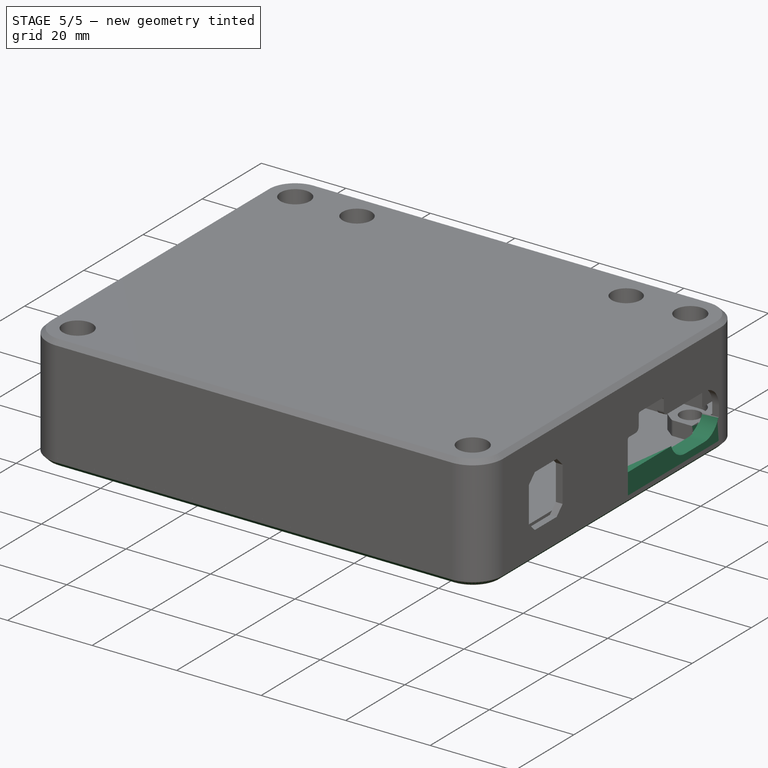
[diagram: stage 5 of 5 — iso view after this stage's code; geometry added in this stage tinted green]
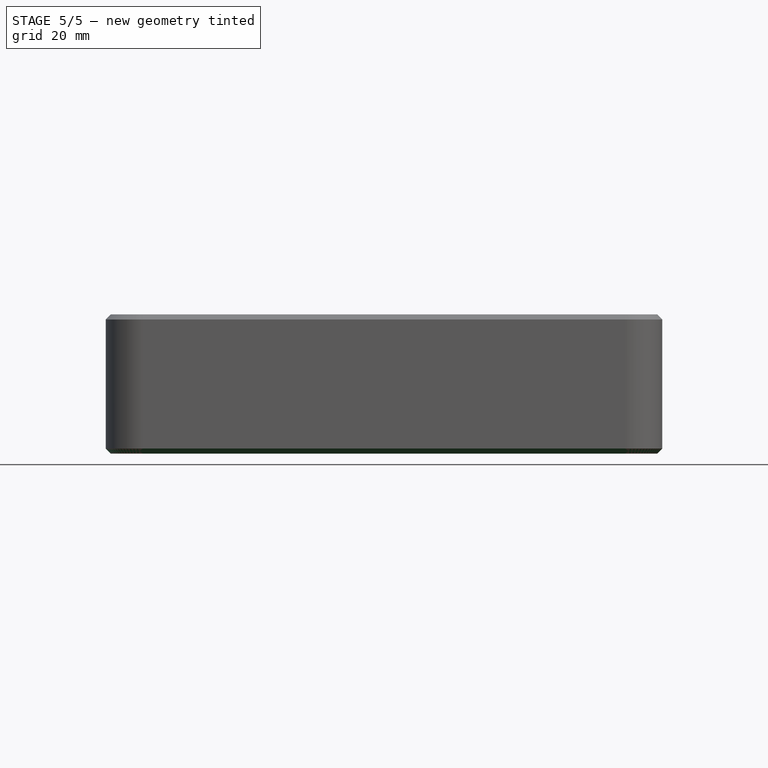
[diagram: stage 5 of 5 — front view after this stage's code; geometry added in this stage tinted green]
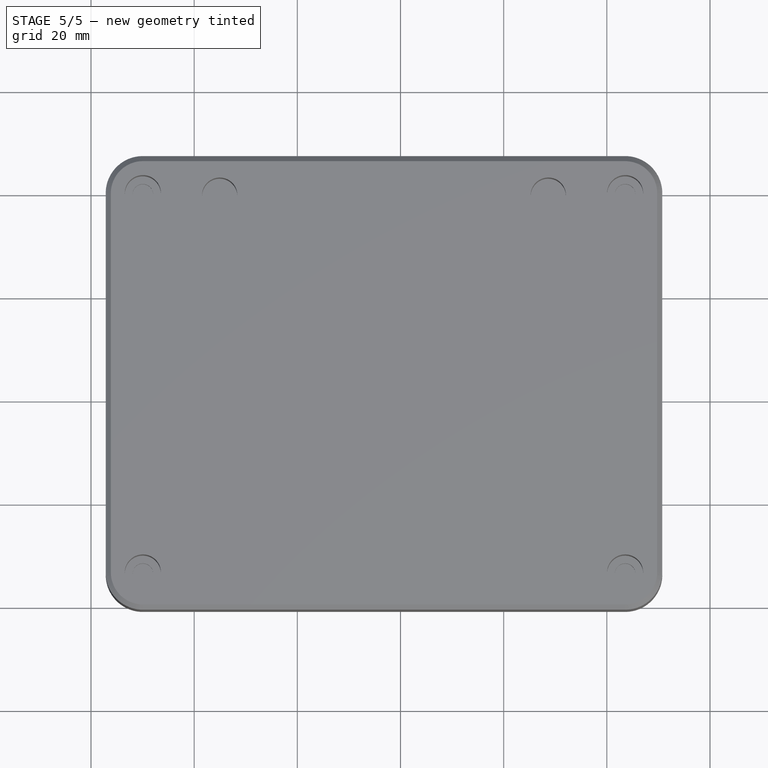
[diagram: stage 5 of 5 — top view after this stage's code; geometry added in this stage tinted green]
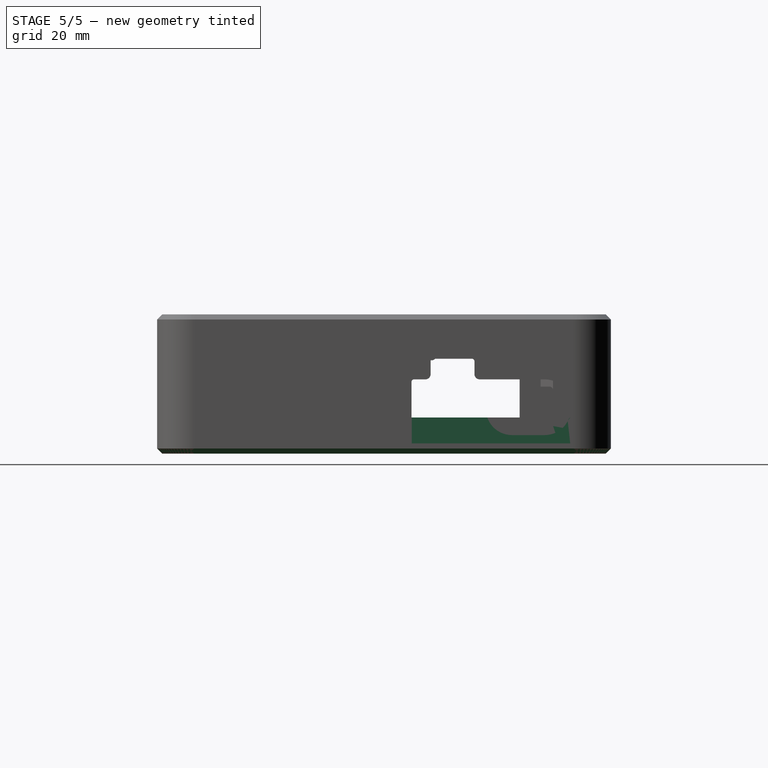
[diagram: stage 5 of 5 — right view after this stage's code; geometry added in this stage tinted green]
FEATURE [PartDesign::Chamfer] Chamfer002
  Angle = 45
  Base = -> Chamfer001 [Edge4]
  BaseFeature = -> Chamfer001
  ChamferType = 0
  FlipDirection = false
  Refine = true
  Size = 1.5
  Size2 = 1
  SupportTransform = false
  Suppressed = false
  UseAllEdges = false
FEATURE [PartDesign::Chamfer] Chamfer003
  Angle = 45
  Base = -> Chamfer002 [Edge7,Edge2]
  BaseFeature = -> Chamfer002
  ChamferType = 0
  FlipDirection = false
  Refine = true
  Size = 1.5
  Size2 = 1
  SupportTransform = false
  Suppressed = false
  UseAllEdges = false
FEATURE [Sketcher::SketchObject] Sketch008
  ArcFitTolerance = 1e-06
  AttachmentSupport = -> [Chamfer003]
  ExternalGeometry = -> [Chamfer003]
  ExternalTypes = [0]
  FullyConstrained = true
  MakeInternals = false
  MapMode = 5
  Placement = pos=(0,0,-5.3502) rot=(0,0,1;0rad)
  _ExternalGeoVersion = 0
  sketch-geometry (6):
    g0: LineSegment StartX=-15.2684 StartY=16.1623 StartZ=0 EndX=-16.2684 EndY=12.1623 EndZ=0
    g1: LineSegment StartX=-16.2684 StartY=12.1623 StartZ=0 EndX=11.7316 EndY=12.1623 EndZ=0
    g2: LineSegment StartX=11.7316 StartY=12.1623 StartZ=0 EndX=10.7316 EndY=16.1623 EndZ=0
    g3: LineSegment StartX=10.7316 StartY=16.1623 StartZ=0 EndX=-15.2684 EndY=16.1623 EndZ=0
    g4: LineSegment [constr] StartX=-15.2684 StartY=16.1623 StartZ=0 EndX=-17.7684 EndY=13.6623 EndZ=0
    g5: LineSegment [constr] StartX=13.2316 StartY=13.6623 StartZ=0 EndX=10.7316 EndY=16.1623 EndZ=0
  constraints (15):
    c: Coincident(g0,g1)
    c: Coincident(g1,g2)
    c: Coincident(g2,g3)
    c: Coincident(g3,g0)
    c: Horizontal(g3)
    c: Coincident(g5,g-3)
    c: Coincident(g4,g0)
    c: Coincident(g5,g2)
    c: Equal(g4,g5)
    c: Equal(g0,g2)
    c: Horizontal(g1)
    c: DistanceX(g0,g0) = 1
    c: Coincident(g0,g-5)
    c: Coincident(g-4,g4)
    c: DistanceY(g0,g0) = 4
FEATURE [PartDesign::Pocket] Pocket005
  BaseFeature = -> Chamfer003
  Direction = (0,0,-1)
  Length = 1
  Length2 = 5
  Profile = -> Sketch008
  ReferenceAxis = -> Sketch008 [N_Axis]
  Refine = true
  SideType = 0
  Suppressed = false
  Type = 0
  Type2 = 0
FEATURE [Sketcher::SketchObject] Sketch009
  ArcFitTolerance = 1e-06
  AttachmentSupport = -> [Pocket005]
  ExternalGeometry = -> [Pocket005]
  ExternalTypes = [0]
  FullyConstrained = true
  MakeInternals = false
  MapMode = 5
  Placement = pos=(0,0,-5.3502) rot=(0,0,1;0rad)
  _ExternalGeoVersion = 0
  sketch-geometry (6):
    g0: LineSegment StartX=-16.2684 StartY=-8.33766 StartZ=0 EndX=-14.7684 EndY=-12.3377 EndZ=0
    g1: LineSegment StartX=-14.7684 StartY=-12.3377 StartZ=0 EndX=10.2316 EndY=-12.3377 EndZ=0
    g2: LineSegment StartX=10.2316 StartY=-12.3377 StartZ=0 EndX=11.7316 EndY=-8.33766 EndZ=0
    g3: LineSegment StartX=11.7316 StartY=-8.33766 StartZ=0 EndX=-16.2684 EndY=-8.33766 EndZ=0
    g4: LineSegment [constr] StartX=-14.7684 StartY=-12.3377 StartZ=0 EndX=-17.7684 EndY=-9.83766 EndZ=0
    g5: LineSegment [constr] StartX=10.2316 StartY=-12.3377 StartZ=0 EndX=13.2316 EndY=-9.83766 EndZ=0
  constraints (15):
    c: Coincident(g0,g1)
    c: Coincident(g1,g2)
    c: Coincident(g2,g3)
    c: Horizontal(g1)
    c: Coincident(g4,g0)
    c: Coincident(g4,g-4)
    c: Coincident(g5,g1)
    c: Coincident(g5,g-5)
    c: Equal(g4,g5)
    c: Equal(g0,g2)
    c: Horizontal(g3)
    c: DistanceX(g0,g0) = 1.5
    c: DistanceY(g0,g0) = 4
    c: Coincident(g0,g3)
    c: Coincident(g0,g-6)
FEATURE [PartDesign::Pocket] Pocket006
  BaseFeature = -> Pocket005
  Direction = (0,0,-1)
  Length = 1
  Length2 = 5
  Profile = -> Sketch009
  ReferenceAxis = -> Sketch009 [N_Axis]
  Refine = true
  SideType = 0
  Suppressed = false
  Type = 0
  Type2 = 0
FEATURE [Sketcher::SketchObject] Sketch017
  ArcFitTolerance = 1e-06
  AttachmentSupport = -> [Pocket006]
  ExternalGeometry = -> [Binder,Pocket006]
  ExternalTypes = [0]
  FullyConstrained = true
  MakeInternals = false
  MapMode = 5
  Placement = pos=(-55.15,0,0) rot=(0.57735,-0.57735,-0.57735;2.0944rad)
  _ExternalGeoVersion = 0
  sketch-geometry (4):
    g0: LineSegment StartX=-29.4759 StartY=-0.350198 StartZ=0 EndX=-29.4759 EndY=-5.3502 EndZ=0
    g1: LineSegment StartX=-29.4759 StartY=-5.3502 StartZ=0 EndX=-5.57586 EndY=-5.3502 EndZ=0
    g2: LineSegment StartX=-5.57586 StartY=-5.3502 StartZ=0 EndX=-5.57586 EndY=-0.350198 EndZ=0
    g3: LineSegment StartX=-5.57586 StartY=-0.350198 StartZ=0 EndX=-29.4759 EndY=-0.350198 EndZ=0
  constraints (12):
    c: Coincident(g0,g1)
    c: Coincident(g1,g2)
    c: Coincident(g2,g3)
    c: Coincident(g3,g0)
    c: Vertical(g0)
    c: Vertical(g2)
    c: Horizontal(g1)
    c: PointOnObject(g1,g-5)
    c: Distance(g-3,g0) = 0.1
    c: Distance(g2,g-4) = 0.1
    c: DistanceY(g0,g0) = 5
    c: Equal(g0,g2)
FEATURE [PartDesign::Pad] Pad006
  BaseFeature = -> Pocket006
  Direction = (-1,0,0)
  Length = 2
  Length2 = 10
  Profile = -> Sketch017
  ReferenceAxis = -> Sketch017 [N_Axis]
  Refine = true
  SideType = 0
  Suppressed = false
  Type = 0
  Type2 = 0
FEATURE [PartDesign::Fillet] Fillet003
  Base = -> Pad006 [Edge224,Edge214]
  BaseFeature = -> Pad006
  Radius = 1
  Refine = true
  SupportTransform = false
  Suppressed = false
  UseAllEdges = false
FEATURE [Sketcher::SketchObject] Sketch018
  ArcFitTolerance = 1e-06
  AttachmentSupport = -> [Fillet003]
  ExternalGeometry = -> [Binder,Fillet003]
  ExternalTypes = [0]
  FullyConstrained = true
  MakeInternals = false
  MapMode = 5
  Placement = pos=(48.751,0,0) rot=(0.57735,0.57735,0.57735;2.0944rad)
  _ExternalGeoVersion = 0
  sketch-geometry (4):
    g0: LineSegment StartX=8.59847 StartY=-0.350198 StartZ=0 EndX=8.59847 EndY=-5.3502 EndZ=0
    g1: LineSegment StartX=8.59847 StartY=-5.3502 StartZ=0 EndX=39.3209 EndY=-5.3502 EndZ=0
    g2: LineSegment StartX=39.3209 StartY=-0.350198 StartZ=0 EndX=8.59847 EndY=-0.350198 EndZ=0
    g3: LineSegment StartX=39.3209 StartY=-5.3502 StartZ=0 EndX=39.3209 EndY=-0.350198 EndZ=0
  constraints (12):
    c: Coincident(g0,g1)
    c: Coincident(g2,g0)
    c: Vertical(g0)
    c: Horizontal(g1)
    c: Horizontal(g2)
    c: PointOnObject(g0,g-5)
    c: Distance(g0,g-3) = 0.1
    c: DistanceY(g0,g0) = 5
    c: Vertical(g3)
    c: Distance(g3,g-7) = 3.65
    c: Coincident(g1,g3)
    c: Coincident(g3,g2)
FEATURE [PartDesign::Pad] Pad007
  BaseFeature = -> Fillet003
  Direction = (1,0,0)
  Length = 2
  Length2 = 10
  Profile = -> Sketch018
  ReferenceAxis = -> Sketch018 [N_Axis]
  Refine = true
  SideType = 0
  Suppressed = false
  Type = 0
  Type2 = 0
FEATURE [Sketcher::SketchObject] Sketch019
  ArcFitTolerance = 1e-06
  AttachmentSupport = -> [Pad007]
  ExternalGeometry = -> [Binder]
  ExternalTypes = [0]
  FullyConstrained = true
  MakeInternals = false
  MapMode = 5
  Placement = pos=(48.751,0,0) rot=(0.57735,0.57735,0.57735;2.0944rad)
  _ExternalGeoVersion = 0
  sketch-geometry (10):
    g0: LineSegment StartX=22.9809 StartY=2.01 StartZ=0 EndX=22.9809 EndY=1.3 EndZ=0
    g1: LineSegment StartX=28.0309 StartY=-3.75 StartZ=0 EndX=34.3709 EndY=-3.75 EndZ=0
    g2: LineSegment StartX=39.4209 StartY=1.3 StartZ=0 EndX=39.4209 EndY=2.01 EndZ=0
    g3: LineSegment StartX=34.3709 StartY=7.06 StartZ=0 EndX=28.0309 EndY=7.06 EndZ=0
    g4: ArcOfCircle CenterX=28.0309 CenterY=2.01 CenterZ=0 NormalX=0 NormalY=0 NormalZ=1 AngleXU=0 Radius=5.05 StartAngle=1.5708 EndAngle=3.14159
    g5: ArcOfCircle CenterX=28.0309 CenterY=1.3 CenterZ=0 NormalX=0 NormalY=0 NormalZ=1 AngleXU=0 Radius=5.05 StartAngle=3.14159 EndAngle=4.71239
    g6: ArcOfCircle CenterX=34.3709 CenterY=1.3 CenterZ=0 NormalX=0 NormalY=0 NormalZ=1 AngleXU=0 Radius=5.05 StartAngle=4.71239 EndAngle=6.28319
    g7: ArcOfCircle CenterX=34.3709 CenterY=2.01 CenterZ=0 NormalX=0 NormalY=0 NormalZ=1 AngleXU=0 Radius=5.05 StartAngle=0 EndAngle=1.5708
    g8: GeomPoint [constr] X=22.9809 Y=7.06 Z=0
    g9: GeomPoint [constr] X=39.4209 Y=-3.75 Z=0
  constraints (21):
    c: Tangent(g0,g4) = -1.5708
    c: Tangent(g0,g5) = -1.5708
    c: Tangent(g1,g5) = -1.5708
    c: Tangent(g1,g6) = -1.5708
    c: Tangent(g2,g6) = -1.5708
    c: Tangent(g2,g7) = -1.5708
    c: Tangent(g3,g7) = -1.5708
    c: Tangent(g3,g4) = -1.5708
    c: Vertical(g0)
    c: Vertical(g2)
    c: Horizontal(g1)
    c: Horizontal(g3)
    c: Equal(g5,g6)
    c: PointOnObject(g8,g0)
    c: PointOnObject(g8,g3)
    c: PointOnObject(g9,g1)
    c: PointOnObject(g9,g2)
    c: Coincident(g4,g-4)
    c: Coincident(g5,g-10)
    c: Coincident(g7,g-6)
    c: DistanceX(g0,g-4) = 3.75
FEATURE [PartDesign::Pocket] Pocket011
  BaseFeature = -> Pad007
  Direction = (-1,0,0)
  Length = 4
  Length2 = 5
  Profile = -> Sketch019
  ReferenceAxis = -> Sketch019 [N_Axis]
  Refine = true
  SideType = 2
  Suppressed = false
  Type = 0
  Type2 = 0
FEATURE [PartDesign::Chamfer] Chamfer006
  Angle = 45
  Base = -> Pocket011 [Edge255,Edge254,Edge252,Edge253,Edge251,Edge250,Edge248,Edge249]
  BaseFeature = -> Pocket011
  ChamferType = 0
  FlipDirection = false
  Refine = true
  Size = 1
  Size2 = 1
  SupportTransform = false
  Suppressed = false
  UseAllEdges = false
FEATURE [PartDesign::Fillet] Fillet009
  Base = -> Chamfer006 [Edge68,Edge138,Edge66,Edge137,Edge64,Edge133,Edge62,Edge132]
  BaseFeature = -> Chamfer006
  Radius = 1
  Refine = true
  SupportTransform = false
  Suppressed = false
  UseAllEdges = false
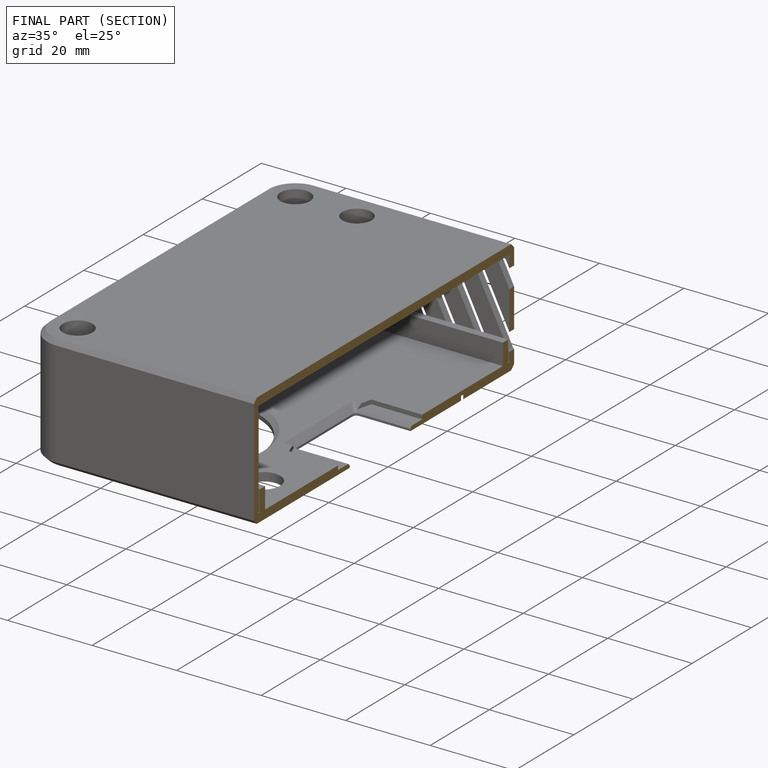
[diagram: finished part — half-section view (interior)]
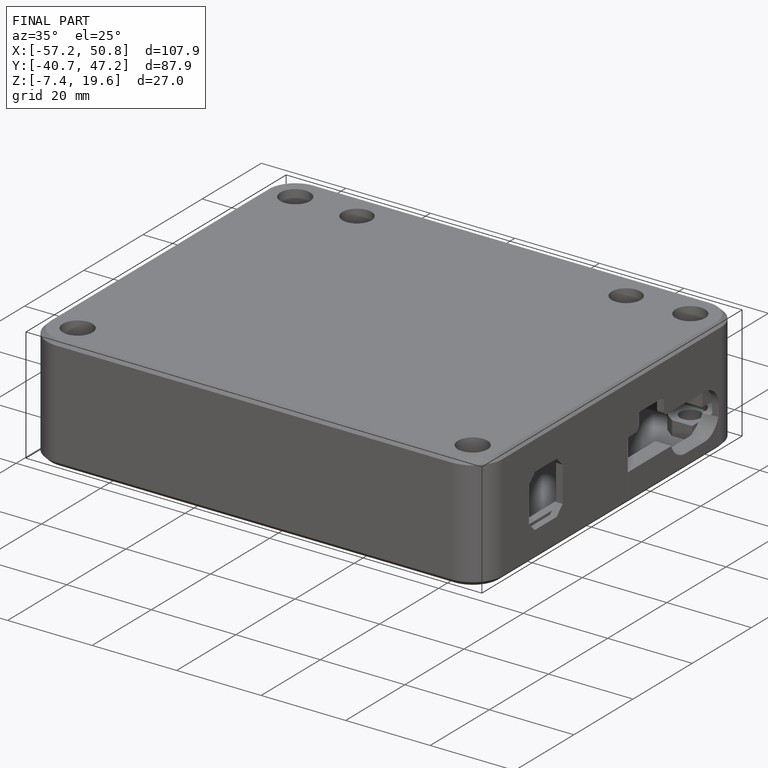
[diagram: finished part — iso view with bounding-box wireframe]
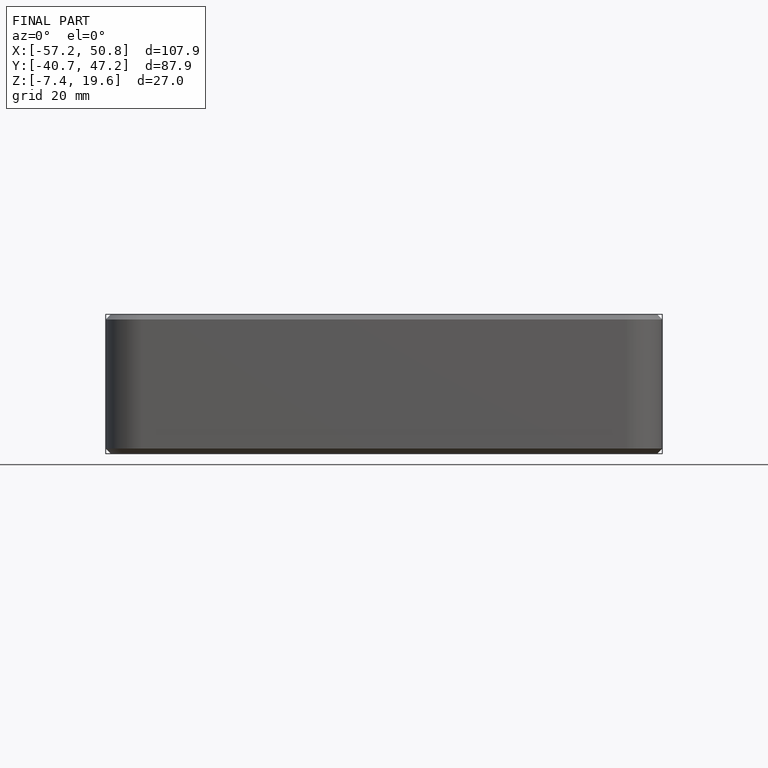
[diagram: finished part — front view with bounding-box wireframe]
